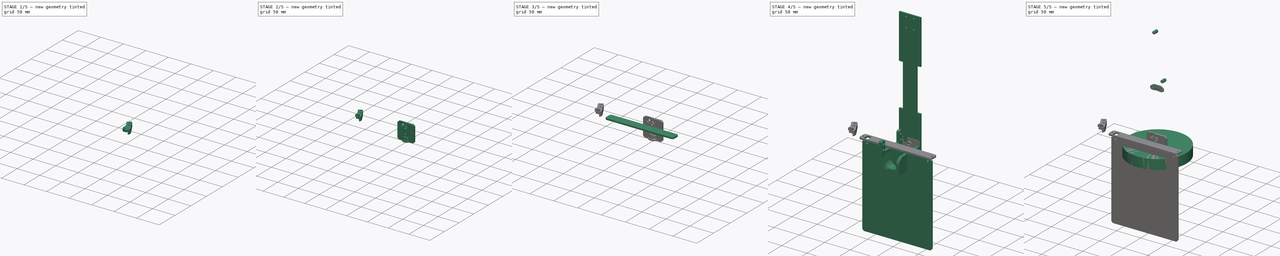
[diagram: build sequence overview — one tinted view per stage of 5, left to right]
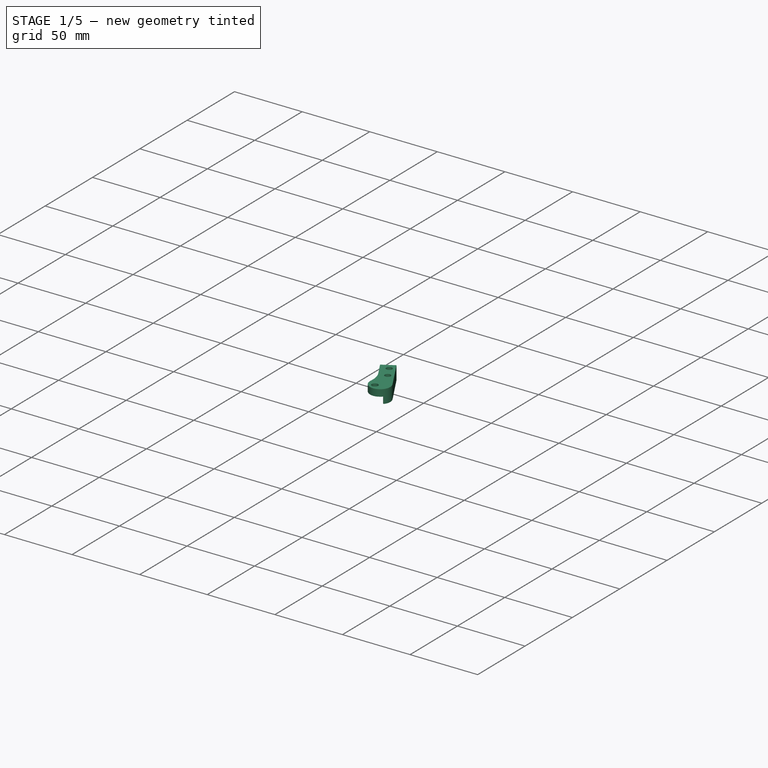
[diagram: stage 1 of 5 — iso view after this stage's code; geometry added in this stage tinted green]
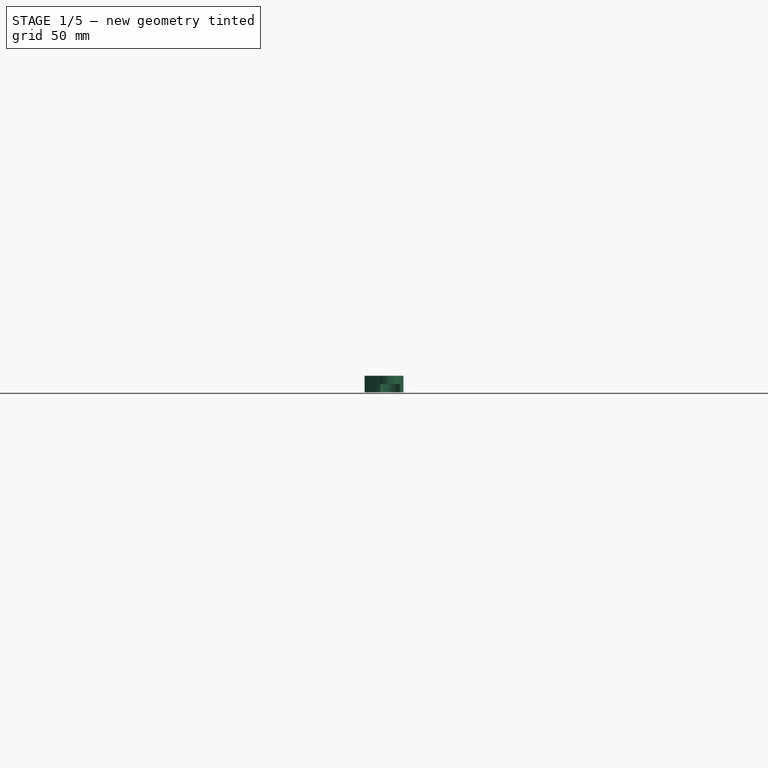
[diagram: stage 1 of 5 — front view after this stage's code; geometry added in this stage tinted green]
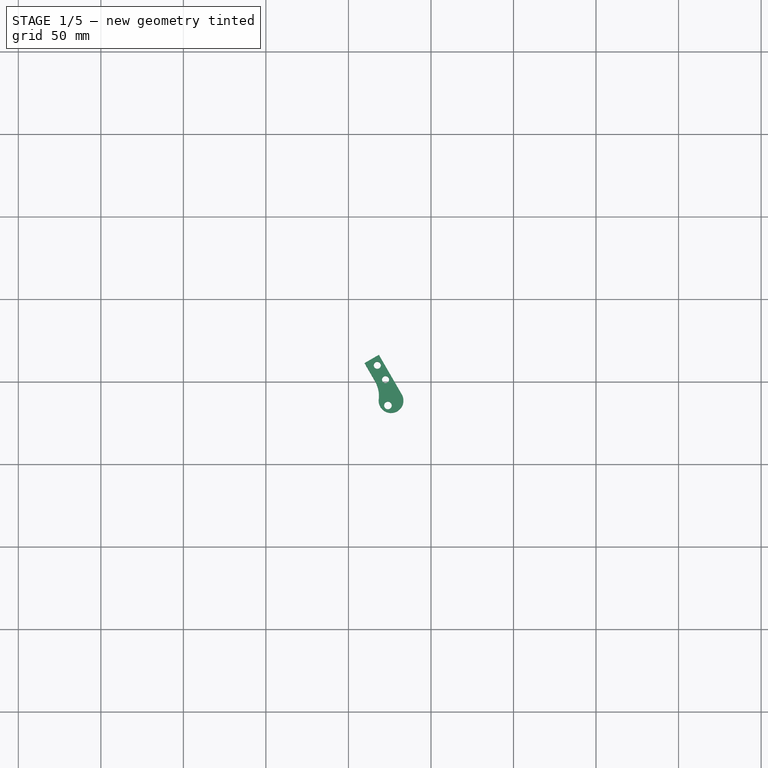
[diagram: stage 1 of 5 — top view after this stage's code; geometry added in this stage tinted green]
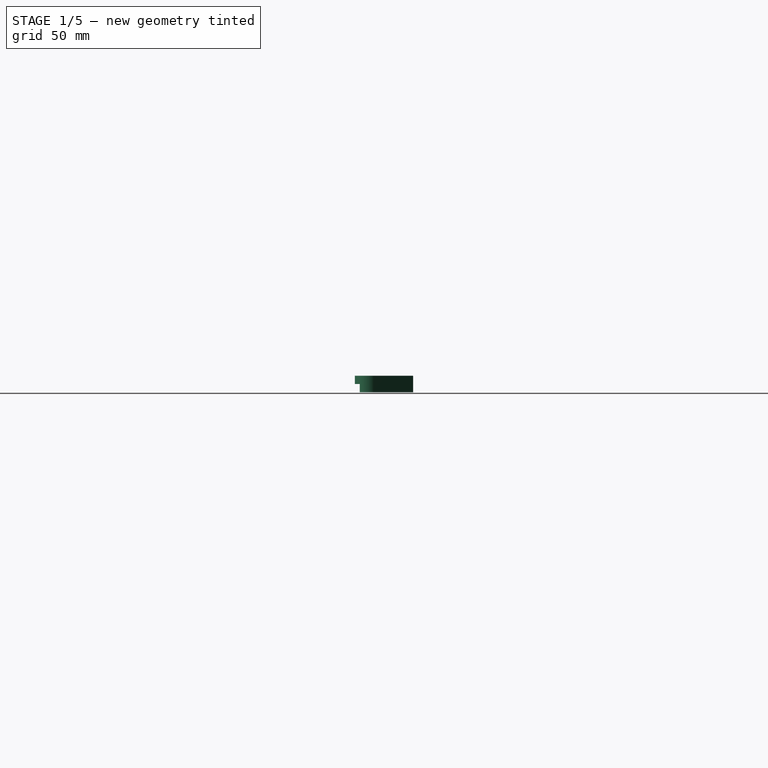
[diagram: stage 1 of 5 — right view after this stage's code; geometry added in this stage tinted green]
FCSTD DOCUMENT  (FreeCAD 2023.131R26244 +5365 (Git))
Label: actuator
License: Creative Commons Attribution-NoDerivatives
LicenseURL: http://creativecommons.org/licenses/by-nd/4.0/
objects: Sketcher::SketchObject×42, PartDesign::Pocket×22, PartDesign::Chamfer×22, PartDesign::Pad×20, PartDesign::Body×17, App::Link×16, PartDesign::Fillet×16, App::Part×11, TechDraw::DrawProjGroupItem×10, TechDraw::DrawProjGroup×10, PartDesign::SubShapeBinder×8, Part::SubShapeBinder×7, TechDraw::DrawSVGTemplate×7, TechDraw::DrawPage×7, App::DocumentObjectGroup×4, Part::FeaturePython×2, PartDesign::Mirrored×1, PartDesign::SubtractivePipe×1, PartDesign::Draft×1, App::VRMLObject×1, +2 more types
note: 369 computed .brp shape members not serialized (recipe doc carries the construction recipe); baked Part::Feature solids carry a one-line shape summary decoded from their .brp
EXTERNAL_REF file=structures.FCStd obj=Link075
EXTERNAL_REF file=generic-hardware.FCStd obj=Link
EXTERNAL_REF file=adptative-gripper-finger.FCStd obj=Link
EXTERNAL_REF file=../table.FCStd obj=Group
EXTERNAL_REF file=generic-hardware.FCStd obj=Part015
EXTERNAL_REF file=generic-hardware.FCStd obj=Part035

FEATURE [App::DocumentObjectGroup] Parts
  ClaimAllChildren = true
  ExportMode = 1
  TreeRank = 14
  _GroupVersion = 1
FEATURE [Part::SubShapeBinder] Import002  label="Import002(Fillet011)"
  BindCopyOnChange = 0
  BindMode = 0
  ClaimChildren = false
  Context = -> Assembly [Body038.Import002.]
  EdgeTolerance = 1e-06
  FillStyle = 0
  Fuse = false
  InvalidShape = false
  MakeFace = false
  MergeEdges = true
  OffsetFill = false
  OffsetIntersection = false
  OffsetJoinType = 0
  OffsetOpenResult = false
  Outline = false
  PartialLoad = false
  Relative = true
  SplitEdges = false
  Support = -> [Link[Fillet011.]]
  TightBound = false
  TreeRank = 96
  ValidateShape = true
  _Version = 8
FEATURE [Sketcher::SketchObject] Sketch074
  ArcFitTolerance = 1e-06
  AttachmentSupport = -> [XY_Plane046]
  ExternalBSplineMaxDegree = 0
  ExternalBSplineTolerance = 0
  ExternalGeometry = -> [Import002]
  FullyConstrained = true
  InternalTolerance = 1e-06
  InvalidShape = false
  MakeInternals = false
  MapMode = 5
  Support = -> [XY_Plane046]
  TreeRank = 95
  ValidateShape = true
  sketch-geometry (20):
    g0: Circle [constr] CenterX=-1.73931e-11 CenterY=-128.13 CenterZ=0 NormalX=0 NormalY=0 NormalZ=1 AngleXU=0 Radius=62.5
    g1: ArcOfCircle CenterX=-1.73931e-11 CenterY=-128.13 CenterZ=0 NormalX=0 NormalY=0 NormalZ=1 AngleXU=0 Radius=62.5 StartAngle=0.254647 EndAngle=2.88695
    g2: Circle CenterX=-51.782 CenterY=-70.3109 CenterZ=0 NormalX=0 NormalY=0 NormalZ=1 AngleXU=0 Radius=1.6
    g3: Circle CenterX=51.782 CenterY=-70.3109 CenterZ=0 NormalX=0 NormalY=0 NormalZ=1 AngleXU=0 Radius=1.6
    g4: LineSegment StartX=-95.3692 StartY=-86.8157 StartZ=0 EndX=-15 EndY=-40.4145 EndZ=0
    g5: LineSegment StartX=-15 StartY=-40.4145 StartZ=0 EndX=15 EndY=-40.4145 EndZ=0
    g6: LineSegment StartX=15 StartY=-40.4145 StartZ=0 EndX=95.3692 EndY=-86.8157 EndZ=0
    g7: LineSegment StartX=-95.3692 StartY=-86.8157 StartZ=0 EndX=-79.1483 EndY=-114.911 EndZ=0
    g8: LineSegment StartX=79.1483 StartY=-114.911 StartZ=0 EndX=95.3692 EndY=-86.8157 EndZ=0
    g9: Circle CenterX=-69.1025 CenterY=-80.3109 CenterZ=0 NormalX=0 NormalY=0 NormalZ=1 AngleXU=0 Radius=3.5
    g10: Circle CenterX=-34.4615 CenterY=-60.3109 CenterZ=0 NormalX=0 NormalY=0 NormalZ=1 AngleXU=0 Radius=3.5
    g11: Circle CenterX=34.4615 CenterY=-60.3109 CenterZ=0 NormalX=0 NormalY=0 NormalZ=1 AngleXU=0 Radius=3.5
    g12: Circle CenterX=69.1025 CenterY=-80.3109 CenterZ=0 NormalX=0 NormalY=0 NormalZ=1 AngleXU=0 Radius=3.5
    g13: ArcOfCircle CenterX=-70.3341 CenterY=-109.822 CenterZ=0 NormalX=0 NormalY=0 NormalZ=1 AngleXU=0 Radius=10.1778 StartAngle=3.66519 EndAngle=6.02854
    g14: ArcOfCircle CenterX=70.3341 CenterY=-109.822 CenterZ=0 NormalX=0 NormalY=0 NormalZ=1 AngleXU=0 Radius=10.1778 StartAngle=3.39624 EndAngle=5.75959
    g15: LineSegment [constr] StartX=-70.3341 StartY=-109.822 StartZ=0 EndX=-70.3341 EndY=-120 EndZ=0
    g16: Circle CenterX=-67.4638 CenterY=-100.149 CenterZ=0 NormalX=0 NormalY=0 NormalZ=1 AngleXU=0 Radius=4
    g17: LineSegment [constr] StartX=-67.4638 StartY=-100.149 StartZ=0 EndX=-71.4638 EndY=-93.2211 EndZ=0
    g18: LineSegment [constr] StartX=-67.4638 StartY=-100.149 StartZ=0 EndX=-82.6192 EndY=-108.899 EndZ=0
    g19: Circle CenterX=67.4638 CenterY=-100.149 CenterZ=0 NormalX=0 NormalY=0 NormalZ=1 AngleXU=0 Radius=4
  constraints (50):
    c: Diameter(g0) = 125
    c: Coincident(g1,g0)
    c: PointOnObject(g1,g0)
    c: Coincident(g2,g-5)
    c: Coincident(g3,g-6)
    c: Equal(g3,g2)
    c: Diameter(g2) = 3.2
    c: Coincident(g5,g4)
    c: Coincident(g6,g5)
    c: Parallel(g4,g-3)
    c: Parallel(g-4,g6)
    c: Equal(g4,g6)
    c: PointOnObject(g7,g-7)
    c: PointOnObject(g-7,g7)
    c: Coincident(g4,g7)
    c: Symmetric(g4,g5,g-2)
    c: Coincident(g8,g6)
    c: PointOnObject(g-8,g8)
    c: PointOnObject(g-15,g4)
    c: DistanceX(g5,g5) = 30
    c: Coincident(g9,g-10)
    c: Coincident(g10,g-9)
    c: Coincident(g11,g-11)
    c: Coincident(g12,g-12)
    c: Equal(g12,g11)
    c: Equal(g12,g10)
    c: Equal(g12,g9)
    c: Diameter(g12) = 7
    c: PointOnObject(g1,g-2)
    c: Horizontal(g1,g1)
    c: Tangent(g14,g8) = -1.5708
    c: Tangent(g14,g1) = 1.5708
    c: Tangent(g13,g7) = -1.5708
    c: Tangent(g13,g1) = 1.5708
    c: DistanceY(g1) = -128.13
    c: Coincident(g15,g13)
    c: PointOnObject(g15,g13)
    c: Vertical(g15)
    c: DistanceY(g15,g-1) = 120
    c: Coincident(g17,g16)
    c: PointOnObject(g17,g-3)
    c: Perpendicular(g-3,g17)
    c: Distance(g17) = 8
    c: Coincident(g18,g16)
    c: PointOnObject(g18,g7)
    c: Perpendicular(g7,g18)
    c: Distance(g18) = 17.5
    c: Diameter(g16) = 8
    c: Equal(g19,g16)
    c: Symmetric(g19,g16,g-2)
FEATURE [PartDesign::Pad] Pad043
  AddSubType = 0
  AlongSketchNormal = false
  AutoTaperInnerAngle = false
  CheckUpToFaceLimits = true
  ClaimChildren = false
  Direction = (0,0,1)
  Fit = 0
  FitJoin = 0
  InnerFit = 0
  InnerFitJoin = 0
  InvalidShape = false
  Length = 3
  Length2 = 100
  Linearize = true
  NewSolid = false
  Profile = -> Sketch074
  Refine = true
  Reversed = true
  Suppress = false
  TaperInnerAngle = 0
  TaperInnerAngleRev = 0
  TreeRank = 97
  Type = 0
  ValidateShape = true
  _ProfileBasedVersion = 1
FEATURE [Sketcher::SketchObject] Sketch089
  ArcFitTolerance = 1e-06
  AttachmentSupport = -> [XY_Plane056]
  ExternalBSplineMaxDegree = 0
  ExternalBSplineTolerance = 0
  FullyConstrained = true
  InternalTolerance = 1e-06
  InvalidShape = false
  MakeInternals = false
  MapMode = 5
  Support = -> [XY_Plane056]
  TreeRank = 294
  ValidateShape = true
  sketch-geometry (21):
    g0: LineSegment StartX=0 StartY=3.703e-13 StartZ=0 EndX=-28.5029 EndY=-1.78e-13 EndZ=0
    g1: LineSegment [constr] StartX=-28.5029 StartY=-1.78e-13 StartZ=0 EndX=-87.62 EndY=-34.1313 EndZ=0
    g2: LineSegment StartX=-87.62 StartY=-34.1313 StartZ=0 EndX=-73.62 EndY=-58.38 EndZ=0
    g3: LineSegment StartX=-2.5e-14 StartY=-58.38 StartZ=0 EndX=0 EndY=3.695e-13 EndZ=0
    g4: LineSegment StartX=-87.62 StartY=-34.1313 StartZ=0 EndX=-81.5578 EndY=-30.6313 EndZ=0
    g5: LineSegment StartX=-81.5578 StartY=-30.6313 StartZ=0 EndX=-70.5578 EndY=-49.6838 EndZ=0
    g6: LineSegment StartX=-70.5578 StartY=-49.6838 StartZ=0 EndX=-35.0508 EndY=-29.1838 EndZ=0
    g7: LineSegment StartX=-35.0508 StartY=-29.1838 StartZ=0 EndX=-46.0508 EndY=-10.1313 EndZ=0
    g8: LineSegment StartX=-46.0508 StartY=-10.1313 StartZ=0 EndX=-28.5029 EndY=-1.776e-13 EndZ=0
    g9: LineSegment [constr] StartX=-28.5029 StartY=-1.78e-13 StartZ=0 EndX=-27.5029 EndY=-1.73205 EndZ=0
    g10: Circle CenterX=-82.5219 CenterY=-36.9614 CenterZ=0 NormalX=0 NormalY=0 NormalZ=1 AngleXU=0 Radius=1.6
    g11: Circle CenterX=-77.5219 CenterY=-45.6217 CenterZ=0 NormalX=0 NormalY=0 NormalZ=1 AngleXU=0 Radius=1.6
    g12: Circle CenterX=-40.0867 CenterY=-12.4614 CenterZ=0 NormalX=0 NormalY=0 NormalZ=1 AngleXU=0 Radius=1.6
    g13: Circle CenterX=-35.0867 CenterY=-21.1217 CenterZ=0 NormalX=0 NormalY=0 NormalZ=1 AngleXU=0 Radius=1.6
    g14: LineSegment [constr] StartX=-82.5219 StartY=-36.9614 StartZ=0 EndX=-40.0867 EndY=-12.4614 EndZ=0
    g15: LineSegment [constr] StartX=-40.0867 StartY=-12.4614 StartZ=0 EndX=-35.0867 EndY=-21.1217 EndZ=0
    g16: LineSegment [constr] StartX=-35.0867 StartY=-21.1217 StartZ=0 EndX=-77.5219 EndY=-45.6217 EndZ=0
    g17: LineSegment [constr] StartX=-77.5219 StartY=-45.6217 StartZ=0 EndX=-82.5219 EndY=-36.9614 EndZ=0
    g18: LineSegment [constr] StartX=-76.5578 StartY=-39.2915 StartZ=0 EndX=-41.0508 EndY=-18.7915 EndZ=0
    g19: LineSegment [constr] StartX=-52.8043 StartY=-39.4338 StartZ=0 EndX=-63.8043 EndY=-20.3813 EndZ=0
    g20: LineSegment StartX=-73.62 StartY=-58.38 StartZ=0 EndX=-2.84e-14 EndY=-58.38 EndZ=0
  constraints (56):
    c: Coincident(g0,g-1)
    c: PointOnObject(g0,g-1)
    c: Coincident(g1,g0)
    c: Coincident(g2,g1)
    c: PointOnObject(g3,g-2)
    c: Coincident(g3,g0)
    c: Coincident(g4,g2)
    c: PointOnObject(g4,g1)
    c: Coincident(g5,g4)
    c: Coincident(g6,g5)
    c: Coincident(g7,g6)
    c: PointOnObject(g7,g1)
    c: Coincident(g8,g7)
    c: Coincident(g8,g0)
    c: Angle(g8,g0) = 2.61799
    c: Perpendicular(g8,g7)
    c: Perpendicular(g4,g5)
    c: Perpendicular(g7,g6)
    c: Perpendicular(g4,g2)
    c: Distance(g4) = 7
    c: Distance(g4,g7) = 41
    c: Distance(g5) = 22
    c: Coincident(g9,g0)
    c: Perpendicular(g8,g9)
    c: Distance(g9) = 2
    c: Equal(g13,g12)
    c: Equal(g13,g10)
    c: Equal(g13,g11)
    c: Diameter(g13) = 3.2
    c: Coincident(g14,g15)
    c: Coincident(g15,g16)
    c: Coincident(g16,g17)
    c: Coincident(g17,g14)
    c: Parallel(g14,g16)
    c: Parallel(g15,g17)
    c: Perpendicular(g15,g14)
    c: Coincident(g15,g13)
    c: Coincident(g12,g14)
    c: Coincident(g16,g11)
    c: Coincident(g10,g14)
    c: Parallel(g15,g7)
    c: PointOnObject(g18,g5)
    c: PointOnObject(g18,g7)
    c: PointOnObject(g19,g6)
    c: Distance(g7,g18) = 10
    c: Symmetric(g4,g7,g19)
    c: Distance(g14) = 49
    c: Distance(g17) = 10
    c: Symmetric(g10,g11,g18)
    c: Symmetric(g10,g12,g19)
    c: Coincident(g20,g2)
    c: Distance(g2,g6) = 6
    c: Coincident(g20,g3)
    c: Horizontal(g20)
    c: DistanceY(g3,g3) = 58.38
    c: DistanceX(g20,g20) = 73.62
FEATURE [Part::SubShapeBinder] Import003  label="Import003(*Fillet011)"
  BindCopyOnChange = 0
  BindMode = 0
  ClaimChildren = false
  Context = -> <external ../table.FCStd>#Group [Link.Group002.Link016.Part003.Body044.Import003.]
  EdgeTolerance = 1e-06
  FillStyle = 0
  Fuse = false
  InvalidShape = false
  MakeFace = false
  MergeEdges = true
  OffsetFill = false
  OffsetIntersection = false
  OffsetJoinType = 0
  OffsetOpenResult = false
  Outline = false
  PartialLoad = false
  Relative = true
  SplitEdges = false
  Support = -> [Body038[Import002.]]
  TightBound = false
  TreeRank = 295
  ValidateShape = true
  _Version = 8
FEATURE [PartDesign::Pad] Pad049
  AddSubType = 0
  AlongSketchNormal = false
  AutoTaperInnerAngle = false
  CheckUpToFaceLimits = true
  ClaimChildren = false
  Direction = (0,0,1)
  Fit = 0
  FitJoin = 0
  InnerFit = 0
  InnerFitJoin = 0
  InvalidShape = false
  Length = 3
  Length2 = 100
  Linearize = true
  NewSolid = false
  Profile = -> Sketch089
  Refine = true
  Suppress = false
  TaperInnerAngle = 0
  TaperInnerAngleRev = 0
  TreeRank = 296
  Type = 0
  ValidateShape = true
  _ProfileBasedVersion = 1
FEATURE [PartDesign::Mirrored] Mirrored
  AddSubType = 0
  BaseFeature = -> Pad049
  CopyShape = false
  InvalidShape = false
  MirrorPlane = -> Sketch089 [V_Axis]
  NewSolid = false
  OriginalSubs = -> [Pad049]
  Originals = -> [Pad049]
  ParallelTransform = true
  Refine = true
  SubTransform = true
  Suppress = false
  TreeRank = 297
  ValidateShape = true
  _Version = 3
FEATURE [PartDesign::SubShapeBinder] Binder  label="Binder(Fillet)"
  BindCopyOnChange = 0
  BindMode = 0
  ClaimChildren = false
  Context = -> <external ../table.FCStd>#Group [Link.Group002.Link016.Part003.Body044.Binder.]
  EdgeTolerance = 1e-06
  FillStyle = 0
  Fuse = false
  InvalidShape = false
  MakeFace = true
  MergeEdges = true
  OffsetFill = false
  OffsetIntersection = false
  OffsetJoinType = 0
  OffsetOpenResult = false
  Outline = false
  PartialLoad = false
  Relative = true
  SplitEdges = false
  Support = -> [Body038[Fillet.Face2]]
  TightBound = false
  TreeRank = 298
  ValidateShape = true
  _Version = 8
FEATURE [Sketcher::SketchObject] Sketch090
  ArcFitTolerance = 1e-06
  AttachmentSupport = -> [XY_Plane056]
  ExternalBSplineMaxDegree = 0
  ExternalBSplineTolerance = 0
  FullyConstrained = true
  InternalTolerance = 1e-06
  InvalidShape = false
  MakeInternals = false
  MapMode = 5
  Support = -> [XY_Plane056]
  TreeRank = 299
  ValidateShape = true
  sketch-geometry (9):
    g0: ArcOfCircle CenterX=-9.662e-13 CenterY=-62.38 CenterZ=0 NormalX=0 NormalY=0 NormalZ=1 AngleXU=0 Radius=12.5 StartAngle=3.14159 EndAngle=6.28319
    g1: ArcOfCircle [constr] CenterX=-1.9826e-12 CenterY=-58.38 CenterZ=0 NormalX=0 NormalY=0 NormalZ=1 AngleXU=0 Radius=12.5 StartAngle=-7.94e-13 EndAngle=3.14159
    g2: LineSegment StartX=12.5 StartY=-62.38 StartZ=0 EndX=12.5 EndY=-58.38 EndZ=0
    g3: LineSegment StartX=-12.5 StartY=-58.38 StartZ=0 EndX=-12.5 EndY=-62.38 EndZ=0
    g4: LineSegment StartX=4 StartY=-46.5373 StartZ=0 EndX=2.5 EndY=-8.38 EndZ=0
    g5: LineSegment StartX=2.5 StartY=-8.38 StartZ=0 EndX=-2.5 EndY=-8.38 EndZ=0
    g6: LineSegment StartX=-2.5 StartY=-8.38 StartZ=0 EndX=-4 EndY=-46.5373 EndZ=0
    g7: ArcOfCircle CenterX=-1.9826e-12 CenterY=-58.38 CenterZ=0 NormalX=0 NormalY=0 NormalZ=1 AngleXU=0 Radius=12.5 StartAngle=1.89653 EndAngle=3.14159
    g8: ArcOfCircle CenterX=-1.9826e-12 CenterY=-58.38 CenterZ=0 NormalX=0 NormalY=0 NormalZ=1 AngleXU=0 Radius=12.5 StartAngle=-7.834e-13 EndAngle=1.24507
  constraints (23):
    c: Tangent(g0,g2) = -1.5708
    c: Tangent(g2,g1) = -1.5708
    c: Tangent(g1,g3) = -1.5708
    c: Tangent(g3,g0) = -1.5708
    c: Equal(g0,g1)
    c: PointOnObject(g1,g-2)
    c: Diameter(g0) = 25
    c: Coincident(g4,g5)
    c: Coincident(g5,g6)
    c: Coincident(g7,g1)
    c: Coincident(g7,g3)
    c: DistanceX(g5,g5) = 5
    c: DistanceX(g6,g4) = 8
    c: DistanceY(g7,g4) = 50
    c: Symmetric(g4,g5,g-2)
    c: DistanceY(g7,g-1) = 58.38
    c: Coincident(g6,g7)
    c: Coincident(g8,g7)
    c: Coincident(g8,g4)
    c: Coincident(g8,g2)
    c: Horizontal(g4,g6)
    c: PointOnObject(g0,g-2)
    c: DistanceY(g0,g7) = 4
FEATURE [Part::SubShapeBinder] Import004  label="Import004(Fillet)"
  BindCopyOnChange = 0
  BindMode = 0
  ClaimChildren = false
  Context = -> <external ../table.FCStd>#Group [Link.Group002.Link016.Part003.Body044.Import004.]
  EdgeTolerance = 1e-06
  FillStyle = 0
  Fuse = false
  InvalidShape = false
  MakeFace = false
  MergeEdges = true
  OffsetFill = false
  OffsetIntersection = false
  OffsetJoinType = 0
  OffsetOpenResult = false
  Outline = false
  PartialLoad = false
  Relative = true
  SplitEdges = false
  Support = -> [Body038[Fillet.]]
  TightBound = false
  TreeRank = 300
  ValidateShape = true
  _Version = 8
FEATURE [PartDesign::Pocket] Pocket006
  AddSubType = 1
  AutoTaperInnerAngle = false
  BaseFeature = -> Mirrored
  CheckUpToFaceLimits = true
  ClaimChildren = false
  Fit = 0
  FitJoin = 0
  InnerFit = 0
  InnerFitJoin = 0
  InvalidShape = false
  Length = 5
  Length2 = 100
  Linearize = true
  NewSolid = false
  Profile = -> Sketch090
  Refine = true
  Reversed = true
  Suppress = false
  TaperInnerAngle = 0
  TaperInnerAngleRev = 0
  TreeRank = 301
  Type = 1
  ValidateShape = true
  _ProfileBasedVersion = 1
  _Version = 1
FEATURE [Sketcher::SketchObject] Sketch096
  ArcFitTolerance = 1e-06
  AttachmentSupport = -> [XY_Plane056]
  ExternalBSplineMaxDegree = 0
  ExternalBSplineTolerance = 0
  FullyConstrained = true
  InternalTolerance = 1e-06
  InvalidShape = false
  MakeInternals = false
  MapMode = 5
  Support = -> [XY_Plane056]
  TreeRank = 321
  ValidateShape = true
  sketch-geometry (8):
    g0: Circle CenterX=-16 CenterY=-15 CenterZ=0 NormalX=0 NormalY=0 NormalZ=1 AngleXU=0 Radius=1.6
    g1: Circle CenterX=-16 CenterY=-50 CenterZ=0 NormalX=0 NormalY=0 NormalZ=1 AngleXU=0 Radius=1.6
    g2: Circle CenterX=16 CenterY=-50 CenterZ=0 NormalX=0 NormalY=0 NormalZ=1 AngleXU=0 Radius=1.6
    g3: Circle CenterX=16 CenterY=-15 CenterZ=0 NormalX=0 NormalY=0 NormalZ=1 AngleXU=0 Radius=1.6
    g4: LineSegment [constr] StartX=-16 StartY=-15 StartZ=0 EndX=16 EndY=-15 EndZ=0
    g5: LineSegment [constr] StartX=16 StartY=-15 StartZ=0 EndX=16 EndY=-50 EndZ=0
    g6: LineSegment [constr] StartX=16 StartY=-50 StartZ=0 EndX=-16 EndY=-50 EndZ=0
    g7: LineSegment [constr] StartX=-16 StartY=-50 StartZ=0 EndX=-16 EndY=-15 EndZ=0
  constraints (19):
    c: Coincident(g4,g5)
    c: Coincident(g5,g6)
    c: Coincident(g6,g7)
    c: Coincident(g7,g4)
    c: Horizontal(g6)
    c: Vertical(g5)
    c: Vertical(g7)
    c: Coincident(g4,g0)
    c: Coincident(g5,g2)
    c: Coincident(g4,g3)
    c: Coincident(g1,g6)
    c: Equal(g2,g1)
    c: Equal(g2,g0)
    c: Equal(g2,g3)
    c: Diameter(g2) = 3.2
    c: Symmetric(g3,g0,g-2)
    c: DistanceX(g4,g4) = 32
    c: DistanceY(g0,g-1) = 15
    c: DistanceY(g1) = -50
FEATURE [PartDesign::Pocket] Pocket007
  AddSubType = 1
  AutoTaperInnerAngle = false
  BaseFeature = -> Pocket006
  CheckUpToFaceLimits = true
  ClaimChildren = false
  Fit = 0
  FitJoin = 0
  InnerFit = 0
  InnerFitJoin = 0
  InvalidShape = false
  Length = 5
  Length2 = 100
  Linearize = true
  NewSolid = false
  Profile = -> Sketch096
  Refine = true
  Reversed = true
  Suppress = false
  TaperInnerAngle = 0
  TaperInnerAngleRev = 0
  TreeRank = 322
  Type = 1
  ValidateShape = true
  _ProfileBasedVersion = 1
  _Version = 1
FEATURE [PartDesign::Fillet] Fillet005
  AddSubType = 0
  Base = -> Pocket007 [Edge2,Edge80]
  BaseFeature = -> Pocket007
  InvalidShape = false
  NewSolid = false
  Radius = 10
  Refine = true
  SupportTransform = false
  Suppress = false
  TreeRank = 332
  ValidateShape = true
FEATURE [PartDesign::Chamfer] Chamfer007
  AddSubType = 0
  Angle = 45
  Base = -> Fillet005 [Edge78,Edge40,Edge3,Edge84,Edge90,Edge89]
  BaseFeature = -> Fillet005
  ChamferType = 0
  FlipDirection = false
  InvalidShape = false
  NewSolid = false
  Refine = true
  Size = 1
  Size2 = 1
  SupportTransform = false
  Suppress = false
  TreeRank = 333
  ValidateShape = true
FEATURE [PartDesign::Fillet] Fillet006
  AddSubType = 0
  Base = -> Chamfer007 [Edge99,Edge97]
  BaseFeature = -> Chamfer007
  InvalidShape = false
  NewSolid = false
  Radius = 25
  Refine = true
  SupportTransform = false
  Suppress = false
  TreeRank = 334
  ValidateShape = true
FEATURE [PartDesign::Fillet] Fillet007
  AddSubType = 0
  Base = -> Fillet006 [Edge85,Edge99,Edge101,Edge89,Edge93,Edge97]
  BaseFeature = -> Fillet006
  InvalidShape = false
  NewSolid = false
  Radius = 1
  Refine = true
  SupportTransform = false
  Suppress = false
  TreeRank = 335
  ValidateShape = true
FEATURE [PartDesign::Fillet] Fillet008
  AddSubType = 0
  Base = -> Fillet007 [Edge78,Edge74,Edge118,Edge114]
  BaseFeature = -> Fillet007
  InvalidShape = false
  NewSolid = false
  Radius = 2
  Refine = true
  SupportTransform = false
  Suppress = false
  TreeRank = 336
  ValidateShape = true
FEATURE [PartDesign::Body] Body053  label="Support_Xbee"
  AutoGroupSolids = false
  ClaimAllChildren = false
  ExportMode = 0
  Group = -> [Sketch120,Pad062,Chamfer017,Sketch121,Pocket021,Sketch122,Pocket022,Chamfer018,Sketch123,Pocket023,Chamfer019]
  InvalidShape = false
  Origin = -> Origin085
  Placement = pos=(0,-3,192) rot=(0,0,1;0rad)
  SingleSolid = true
  Tip = -> Chamfer019
  TreeRank = 636
  ValidateShape = true
  _ExportChildren = -> [Pad062,Chamfer017,Pocket021,Pocket022,Chamfer018,Pocket023,Chamfer019]
  _GroupVersion = 1
FEATURE [PartDesign::SubShapeBinder] Binder006  label="Binder006(Fillet008)"
  BindCopyOnChange = 0
  BindMode = 0
  ClaimChildren = false
  Context = -> <external ../table.FCStd>#Group [Link.Group002.Link018.Part003.Part004.Body054.Binder006.]
  EdgeTolerance = 1e-06
  FillStyle = 0
  Fuse = false
  InvalidShape = false
  MakeFace = true
  MergeEdges = true
  OffsetFill = false
  OffsetIntersection = false
  OffsetJoinType = 0
  OffsetOpenResult = false
  Outline = false
  PartialLoad = false
  Relative = true
  SplitEdges = false
  Support = -> [Body044[Fillet008.Face1]]
  TightBound = false
  TreeRank = 658
  ValidateShape = true
  _Version = 8
FEATURE [Sketcher::SketchObject] Sketch124
  ArcFitTolerance = 1e-06
  AttachmentSupport = -> [XY_Plane073]
  ExternalBSplineMaxDegree = 5
  ExternalBSplineTolerance = 0.0001
  ExternalGeometry = -> [Binder006]
  FullyConstrained = true
  InternalTolerance = 1e-06
  InvalidShape = false
  MakeInternals = true
  MapMode = 5
  Support = -> [XY_Plane073]
  TreeRank = 659
  ValidateShape = true
  sketch-geometry (10):
    g0: ArcOfCircle CenterX=-74.1974 CenterY=-61.38 CenterZ=0 NormalX=0 NormalY=0 NormalZ=1 AngleXU=0 Radius=7.5 StartAngle=2.43423 EndAngle=6.80678
    g1: LineSegment StartX=-79.8979 StartY=-56.5063 StartZ=0 EndX=-90.2181 EndY=-38.6313 EndZ=0
    g2: LineSegment StartX=-90.2181 StartY=-38.6313 StartZ=0 EndX=-81.5578 EndY=-33.6313 EndZ=0
    g3: LineSegment StartX=-81.5578 StartY=-33.6313 StartZ=0 EndX=-67.7022 EndY=-57.63 EndZ=0
    g4: Circle CenterX=-82.5219 CenterY=-39.9614 CenterZ=0 NormalX=0 NormalY=0 NormalZ=1 AngleXU=0 Radius=2.15
    g5: Circle CenterX=-77.5219 CenterY=-48.6217 CenterZ=0 NormalX=0 NormalY=0 NormalZ=1 AngleXU=0 Radius=2.15
    g6: Circle [constr] CenterX=-76.0737 CenterY=-64.3345 CenterZ=0 NormalX=0 NormalY=0 NormalZ=1 AngleXU=0 Radius=6.5
    g7: Circle [constr] CenterX=-76.0737 CenterY=-64.3345 CenterZ=0 NormalX=0 NormalY=0 NormalZ=1 AngleXU=0 Radius=4
    g8: LineSegment [constr] StartX=-76.0737 StartY=-64.3345 StartZ=0 EndX=-67.8465 EndY=-51.38 EndZ=0
    g9: Circle CenterX=-76.0737 CenterY=-64.3345 CenterZ=0 NormalX=0 NormalY=0 NormalZ=1 AngleXU=0 Radius=2.3
  constraints (25):
    c: Coincident(g1,g0)
    c: Coincident(g2,g1)
    c: Coincident(g3,g2)
    c: Parallel(g1,g3)
    c: Parallel(g3,g-7)
    c: Parallel(g2,g-5)
    c: PointOnObject(g2,g-5)
    c: Distance(g1,g-7) = 3
    c: PointOnObject(g-9,g3)
    c: PointOnObject(g0,g-8)
    c: Coincident(g4,g-3)
    c: Coincident(g5,g-4)
    c: Equal(g5,g4)
    c: Diameter(g5) = 4.3
    c: Coincident(g7,g6)
    c: Diameter(g6) = 13
    c: Diameter(g7) = 8
    c: Coincident(g8,g6)
    c: Coincident(g8,g-6)
    c: PointOnObject(g0,g8)
    c: Coincident(g9,g6)
    c: Diameter(g9) = 4.6
    c: Tangent(g0,g3) = 1.5708
    c: Radius(g0) = 7.5
    c: Tangent(g7,g0)
FEATURE [PartDesign::Pad] Pad063
  AddSubType = 0
  AlongSketchNormal = false
  AutoTaperInnerAngle = true
  CheckUpToFaceLimits = true
  ClaimChildren = false
  Direction = (0,0,1)
  Fit = 0
  FitJoin = 0
  InnerFit = 0
  InnerFitJoin = 0
  InvalidShape = false
  Length = 10
  Length2 = 100
  Linearize = true
  NewSolid = false
  Profile = -> Sketch124
  Refine = true
  Reversed = true
  Suppress = false
  TaperInnerAngle = 0
  TaperInnerAngleRev = 0
  TreeRank = 660
  Type = 0
  ValidateShape = true
  _ProfileBasedVersion = 1
FEATURE [Sketcher::SketchObject] Sketch125
  ArcFitTolerance = 1e-06
  AttachmentSupport = -> [Pad063]
  ExternalBSplineMaxDegree = 5
  ExternalBSplineTolerance = 0.0001
  ExternalGeometry = -> [Pad063]
  FullyConstrained = true
  InternalTolerance = 1e-06
  InvalidShape = false
  MakeInternals = true
  MapMode = 5
  Placement = pos=(0,0,-10) rot=(1,0,0;3.14159rad)
  Support = -> [Pad063]
  TreeRank = 661
  ValidateShape = true
  sketch-geometry (1):
    g0: Circle CenterX=-76.0737 CenterY=64.3345 CenterZ=0 NormalX=0 NormalY=0 NormalZ=1 AngleXU=0 Radius=7
  constraints (2):
    c: Coincident(g0,g-3)
    c: Diameter(g0) = 14
FEATURE [PartDesign::Fillet] Fillet015
  AddSubType = 0
  Base = -> Pad063 [Edge1]
  BaseFeature = -> Pad063
  InvalidShape = false
  NewSolid = false
  Radius = 18
  Refine = true
  SupportTransform = false
  Suppress = false
  TreeRank = 663
  ValidateShape = true
FEATURE [PartDesign::Pocket] Pocket024
  AddSubType = 1
  AutoTaperInnerAngle = true
  BaseFeature = -> Fillet015
  CheckUpToFaceLimits = true
  ClaimChildren = false
  Fit = 0
  FitJoin = 0
  InnerFit = 0
  InnerFitJoin = 0
  InvalidShape = false
  Length = 5
  Length2 = 100
  Linearize = true
  NewSolid = false
  Profile = -> Sketch125
  Refine = true
  Suppress = false
  TaperInnerAngle = 0
  TaperInnerAngleRev = 0
  TreeRank = 662
  Type = 0
  ValidateShape = true
  _ProfileBasedVersion = 1
  _Version = 1
FEATURE [PartDesign::Fillet] Fillet016
  AddSubType = 0
  Base = -> Pocket024 [Edge27]
  BaseFeature = -> Pocket024
  InvalidShape = false
  NewSolid = false
  Radius = 1
  Refine = true
  SupportTransform = false
  Suppress = false
  TreeRank = 664
  ValidateShape = true
FEATURE [PartDesign::Chamfer] Chamfer020
  AddSubType = 0
  Angle = 45
  Base = -> Fillet016 [Edge14]
  BaseFeature = -> Fillet016
  ChamferType = 0
  FlipDirection = false
  InvalidShape = false
  NewSolid = false
  Refine = true
  Size = 2
  Size2 = 1
  SupportTransform = false
  Suppress = false
  TreeRank = 665
  ValidateShape = true
FEATURE [PartDesign::Fillet] Fillet017
  AddSubType = 0
  Base = -> Chamfer020 [Edge16,Edge13]
  BaseFeature = -> Chamfer020
  InvalidShape = false
  NewSolid = false
  Radius = 0.5
  Refine = true
  SupportTransform = false
  Suppress = false
  TreeRank = 666
  ValidateShape = true
FEATURE [PartDesign::Pocket] Pocket001
  AddSubType = 1
  AutoTaperInnerAngle = false
  BaseFeature = -> Pocket
  CheckUpToFaceLimits = true
  ClaimChildren = false
  Fit = 0
  FitJoin = 0
  InnerFit = 0
  InnerFitJoin = 0
  Length = 5
  Length2 = 100
  Linearize = true
  Midplane = true
  NewSolid = false
  Profile = -> Sketch003
  Refine = true
  Suppress = false
  TaperInnerAngle = 0
  TaperInnerAngleRev = 0
  TreeRank = 80
  Type = 1
  _ProfileBasedVersion = 1
  _Version = 1
FEATURE [PartDesign::PolarPattern] PolarPattern
  AddSubType = 0
  Angle = 360
  Axis = -> Sketch003 [N_Axis]
  BaseFeature = -> Pocket001
  CopyShape = false
  NewSolid = false
  Occurrences = 4
  OriginalSubs = -> [Pocket001]
  Originals = -> [Pocket001]
  ParallelTransform = true
  Refine = true
  SubTransform = true
  Suppress = false
  TreeRank = 81
  _Version = 3
FEATURE [PartDesign::Fillet] Fillet
  AddSubType = 0
  Base = -> PolarPattern [Edge111]
  BaseFeature = -> PolarPattern
  NewSolid = false
  Radius = 0.5
  Refine = true
  SupportTransform = false
  Suppress = false
  TreeRank = 90
FEATURE [PartDesign::Fillet] Fillet001
  AddSubType = 0
  Base = -> Fillet [Edge62,Edge56]
  BaseFeature = -> Fillet
  NewSolid = false
  Radius = 20
  Refine = true
  SupportTransform = false
  Suppress = false
  TreeRank = 91
FEATURE [PartDesign::Body] Body003  label="AdaptativeGripper"
  AutoGroupSolids = false
  ClaimAllChildren = false
  ExportMode = 0
  Group = -> [Boolean003,Sketch002,Pocket,Sketch003,Pocket001,PolarPattern,Fillet,Fillet001]
  Origin = -> Origin003
  Tip = -> Fillet001
  TreeRank = 71
  _ExportChildren = -> [Boolean003,Pocket,Pocket001,PolarPattern,Fillet,Fillet001]
  _GroupVersion = 1
FEATURE [Sketcher::SketchObject] Sketch
  ArcFitTolerance = 1e-06
  Exports = -> [Export001,Export002,Export005]
  ExternalBSplineMaxDegree = 0
  ExternalBSplineTolerance = 0
  FullyConstrained = true
  InternalTolerance = 1e-06
  MakeInternals = false
  TreeRank = 2
  expr: Constraints[12] = Spreadsheet.LongueurPince
  expr: Constraints[13] = Spreadsheet.LargeurPince
  expr: Constraints[14] = Spreadsheet.LargeurPince / 2 + Spreadsheet.DecalagePince
  expr: Constraints[27] = Spreadsheet.EpaisseurPince
  expr: Constraints[28] = Spreadsheet.LongueurJoint
  sketch-geometry (18):
    g0: ArcOfCircle CenterX=1.2424e-12 CenterY=2.454e-12 CenterZ=0 NormalX=0 NormalY=0 NormalZ=1 AngleXU=0 Radius=10 StartAngle=1.5708 EndAngle=5.20235
    g1: LineSegment StartX=-4.60203e-11 StartY=10 StartZ=0 EndX=10 EndY=10 EndZ=0
    g2: LineSegment StartX=4.70588 StartY=-8.82353 StartZ=0 EndX=10 EndY=-6 EndZ=0
    g3: LineSegment StartX=10 StartY=10 StartZ=0 EndX=60 EndY=2.593e-13 EndZ=0
    g4: LineSegment StartX=10 StartY=-6 StartZ=0 EndX=60 EndY=2.593e-13 EndZ=0
    g5: LineSegment [constr] StartX=10 StartY=10 StartZ=0 EndX=10 EndY=-6 EndZ=0
    g6: Circle [constr] CenterX=1.2424e-12 CenterY=2.454e-12 CenterZ=0 NormalX=0 NormalY=0 NormalZ=1 AngleXU=0 Radius=10
    g7: GeomPoint [constr] X=60 Y=2.591e-13 Z=0
    g8: LineSegment StartX=10.8 StartY=-4.98182 StartZ=0 EndX=10.8 EndY=8.98182 EndZ=0
    g9: LineSegment StartX=10.8 StartY=8.98182 StartZ=0 EndX=54.4364 EndY=0.254545 EndZ=0
    g10: LineSegment StartX=54.4364 StartY=0.254545 StartZ=0 EndX=10.8 EndY=-4.98182 EndZ=0
    g11: LineSegment StartX=10.8 StartY=-2.98182 StartZ=0 EndX=10.8 EndY=6.98182 EndZ=0
    g12: LineSegment StartX=10.8 StartY=6.98182 StartZ=0 EndX=41.9364 EndY=0.754545 EndZ=0
    g13: LineSegment StartX=41.9364 StartY=0.754545 StartZ=0 EndX=10.8 EndY=-2.98182 EndZ=0
    g14: GeomPoint [constr] X=10.8 Y=2 Z=0
    g15: LineSegment [constr] StartX=10.8 StartY=8.98182 StartZ=0 EndX=10 EndY=8.98182 EndZ=0
    g16: LineSegment [constr] StartX=10.8 StartY=2 StartZ=0 EndX=10 EndY=2 EndZ=0
    g17: LineSegment [constr] StartX=10 StartY=-6 StartZ=0 EndX=10.8 EndY=-4.98182 EndZ=0
  constraints (43):
    c: Coincident(g0,g-1)
    c: Tangent(g1,g0) = 1.5708
    c: Tangent(g2,g0) = -1.5708
    c: Coincident(g3,g1)
    c: Coincident(g4,g2)
    c: Diameter(g0) = 20
    c: Coincident(g5,g1)
    c: Coincident(g5,g2)
    c: Vertical(g5)
    c: Coincident(g6,g0)
    c: PointOnObject(g0,g6)
    c: Tangent(g5,g6)
    c: DistanceX(g1,g7) = 50
    c: DistanceY(g2,g1) = 16
    c: DistanceY(g1) = 10
    c: PointOnObject(g7,g-1)
    c: Vertical(g8)
    c: Coincident(g9,g8)
    c: Coincident(g10,g9)
    c: Coincident(g10,g8)
    c: Parallel(g9,g3)
    c: Parallel(g10,g4)
    c: Coincident(g12,g11)
    c: Coincident(g13,g12)
    c: Coincident(g13,g11)
    c: Parallel(g13,g10)
    c: Parallel(g12,g9)
    c: DistanceX(g2,g8) = 0.8
    c: DistanceY(g11,g8) = 2
    c: Symmetric(g11,g11,g14)
    c: Coincident(g15,g8)
    c: PointOnObject(g15,g5)
    c: Horizontal(g15)
    c: PointOnObject(g11,g8)
    c: Coincident(g16,g14)
    c: Horizontal(g16)
    c: Symmetric(g1,g2,g16)
    c: Symmetric(g8,g8,g14)
    c: Coincident(g17,g2)
    c: Coincident(g17,g8)
    c: Angle(g4,g17) = 0.785398
    c: Coincident(g3,g4)
    c: Coincident(g7,g3)
FEATURE [Sketcher::SketchExport] Export001
  Base = -> Sketch
  BaseRefs = -> Sketch [edge11,edge9,edge10]
  Refs = ;g15.edge11 | ;g13.edge9 | ;g14.edge10
  SyncPlacement = true
  TreeRank = 4
FEATURE [Sketcher::SketchExport] Export002
  Base = -> Sketch
  BaseRefs = -> Sketch [edge12,edge13,edge14]
  Refs = ;g19.edge12 | ;g20.edge13 | ;g21.edge14
  SyncPlacement = true
  TreeRank = 5
FEATURE [Sketcher::SketchObject] Sketch001
  ArcFitTolerance = 1e-06
  Exports = -> [Export003,Export004]
  ExternalBSplineMaxDegree = 0
  ExternalBSplineTolerance = 0
  FullyConstrained = true
  InternalTolerance = 1e-06
  MakeInternals = false
  Placement = pos=(0,0,0) rot=(-1,0,0;4.71239rad)
  TreeRank = 6
  expr: Constraints[12] = Spreadsheet.HauteurPince
  expr: Constraints[13] = Spreadsheet.DiametreFixation / 2 + Spreadsheet.LongueurPince / (Spreadsheet.NombreNervure + 1)
  expr: Constraints[14] = Spreadsheet.EpaisseurNervure
  expr: Constraints[25] = Spreadsheet.FinesseJoint
  sketch-geometry (9):
    g0: LineSegment StartX=19.25 StartY=1.5001e-12 StartZ=0 EndX=20.75 EndY=1.5001e-12 EndZ=0
    g1: LineSegment StartX=20.75 StartY=1.5001e-12 StartZ=0 EndX=20.75 EndY=15 EndZ=0
    g2: LineSegment StartX=20.75 StartY=15 StartZ=0 EndX=19.25 EndY=15 EndZ=0
    g3: LineSegment StartX=19.25 StartY=15 StartZ=0 EndX=19.25 EndY=1.4992e-12 EndZ=0
    g4: LineSegment [constr] StartX=20 StartY=15 StartZ=0 EndX=20 EndY=-1.7515e-12 EndZ=0
    g5: LineSegment StartX=19.6 StartY=15 StartZ=0 EndX=20.4 EndY=15 EndZ=0
    g6: LineSegment StartX=20.4 StartY=15 StartZ=0 EndX=20.4 EndY=5.169e-13 EndZ=0
    g7: LineSegment StartX=20.4 StartY=5.168e-13 StartZ=0 EndX=19.6 EndY=5.168e-13 EndZ=0
    g8: LineSegment StartX=19.6 StartY=5.168e-13 StartZ=0 EndX=19.6 EndY=15 EndZ=0
  constraints (26):
    c: Coincident(g0,g1)
    c: Coincident(g1,g2)
    c: Coincident(g2,g3)
    c: Coincident(g3,g0)
    c: Horizontal(g0)
    c: Horizontal(g2)
    c: Vertical(g1)
    c: Vertical(g3)
    c: PointOnObject(g0,g-1)
    c: PointOnObject(g4,g0)
    c: Vertical(g4)
    c: Symmetric(g2,g1,g4)
    c: DistanceY(g3,g3) = 15
    c: DistanceX(g4) = 20
    c: DistanceX(g2,g2) = 1.5
    c: Coincident(g5,g6)
    c: Coincident(g6,g7)
    c: Coincident(g7,g8)
    c: Coincident(g8,g5)
    c: Horizontal(g5)
    c: Horizontal(g7)
    c: Vertical(g6)
    c: Vertical(g8)
    c: PointOnObject(g5,g2)
    c: Symmetric(g7,g6,g4)
    c: DistanceX(g5,g5) = 0.8
FEATURE [Sketcher::SketchExport] Export003
  Base = -> Sketch001
  BaseRefs = -> Sketch001 [edge3,edge4,edge2,edge1]
  Placement = pos=(0,0,0) rot=(-1,0,0;4.71239rad)
  Refs = ;g3.edge3 | ;g4.edge4 | ;g2.edge2 | ;g1.edge1
  SyncPlacement = true
  TreeRank = 7
FEATURE [Sketcher::SketchExport] Export004
  Base = -> Sketch001
  BaseRefs = -> Sketch001 [edge6,edge7,edge8,edge9]
  Placement = pos=(0,0,0) rot=(-1,0,0;4.71239rad)
  Refs = ;g6.edge6 | ;g7.edge7 | ;g8.edge8 | ;g9.edge9
  SyncPlacement = true
  TreeRank = 8
FEATURE [Part::Extrusion] Extrude001  label="CorpsInterieur"
  AutoTaperInnerAngle = false
  Base = -> Export001
  Dir = (0,0,1)
  DirMode = 2
  FaceMakerClass = Part::FaceMakerBullseye
  LengthFwd = 16
  LengthRev = 0
  Linearize = true
  Solid = true
  Symmetric = false
  TaperInnerAngle = 0
  TaperInnerAngleRev = 0
  TreeRank = 10
  expr: LengthFwd = Spreadsheet.HauteurPince + 1
FEATURE [Part::Extrusion] Extrude002  label="CorpsNervure"
  AutoTaperInnerAngle = false
  Base = -> Export002
  Dir = (0,0,1)
  DirMode = 2
  FaceMakerClass = Part::FaceMakerBullseye
  LengthFwd = 15
  LengthRev = 0
  Linearize = true
  Solid = true
  Symmetric = false
  TaperInnerAngle = 0
  TaperInnerAngleRev = 0
  TreeRank = 11
  expr: LengthFwd = Spreadsheet.HauteurPince
FEATURE [App::DocumentObjectGroup] Group  label="Tools"
  ClaimAllChildren = true
  ExportMode = 1
  Group = -> [Spreadsheet,Sketch,Sketch001,Extrude001,Extrude002,Extrude,Body,Body001,Body002,Export003,Export004]
  TreeRank = 70
  _GroupVersion = 1
FEATURE [Sketcher::SketchExport] Export005
  Base = -> Sketch
  BaseRefs = -> Sketch [edge1,edge3,edge5,edge4,edge2]
  Refs = ;g1.edge1 | ;g3.edge3 | ;g5.edge5 | ;g4.edge4 | ;g2.edge2
  SyncPlacement = true
  TreeRank = 83
FEATURE [Part::Extrusion] Extrude  label="CorpsComplet"
  AutoTaperInnerAngle = false
  Base = -> Export005
  Dir = (0,0,1)
  DirMode = 2
  FaceMakerClass = Part::FaceMakerBullseye
  LengthFwd = 15
  LengthRev = 0
  Linearize = true
  Solid = true
  Symmetric = false
  TaperInnerAngle = 0
  TaperInnerAngleRev = 0
  TreeRank = 84
  expr: LengthFwd = Spreadsheet.HauteurPince
---- part generic-hardware.FCStd = doc fcstd_4d7483fc6a56 (179892 chars; too large to inline — full recipe in that document) ----
---- part structures.FCStd = doc fcstd_4202ce3a1060 (169128 chars; too large to inline — full recipe in that document) ----
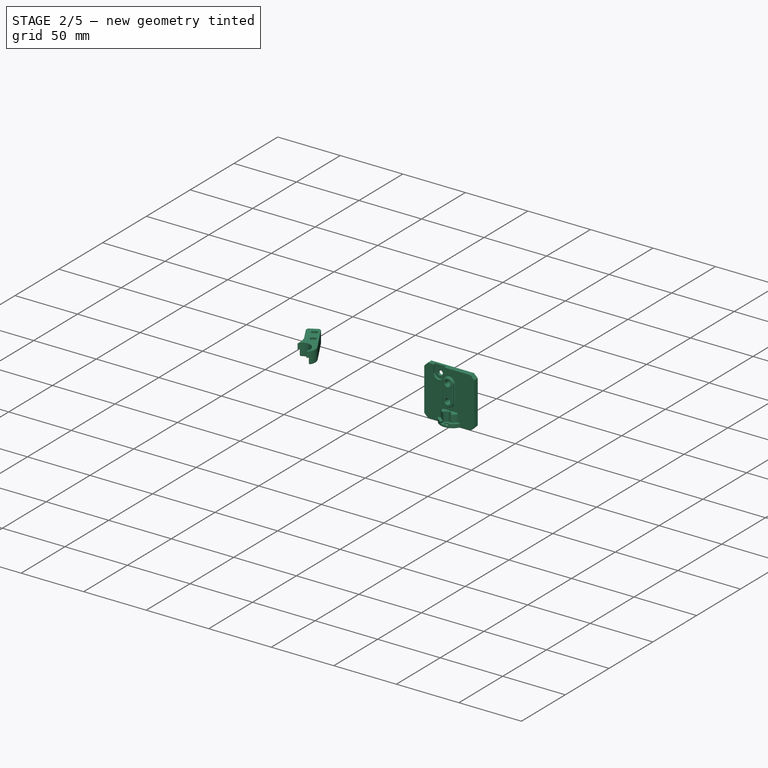
[diagram: stage 2 of 5 — iso view after this stage's code; geometry added in this stage tinted green]
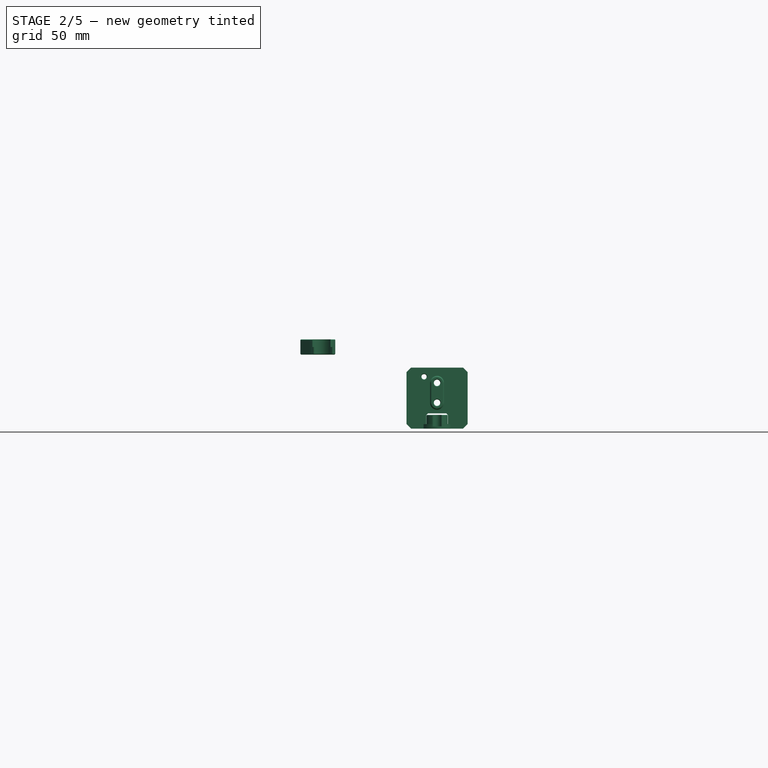
[diagram: stage 2 of 5 — front view after this stage's code; geometry added in this stage tinted green]
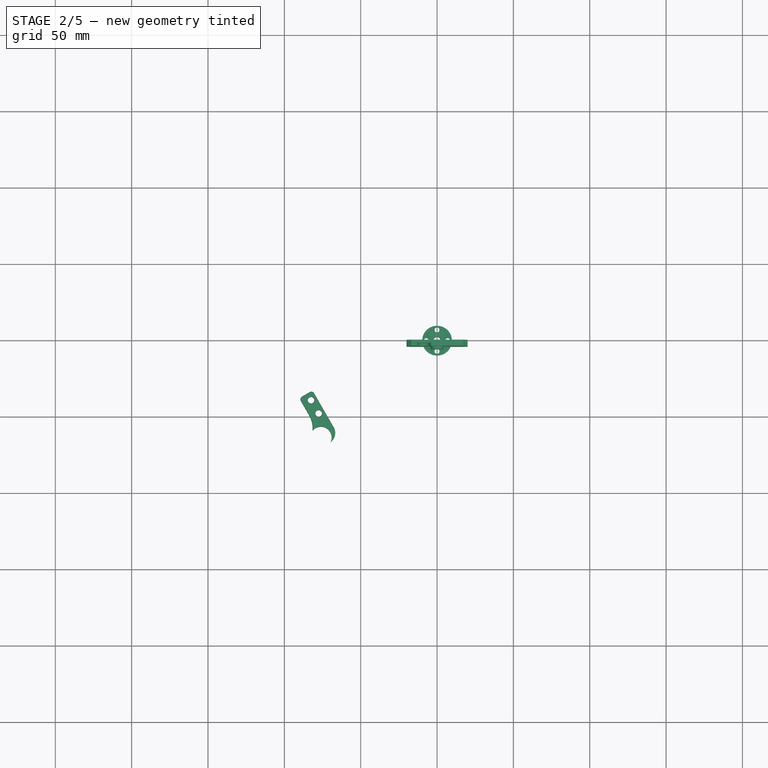
[diagram: stage 2 of 5 — top view after this stage's code; geometry added in this stage tinted green]
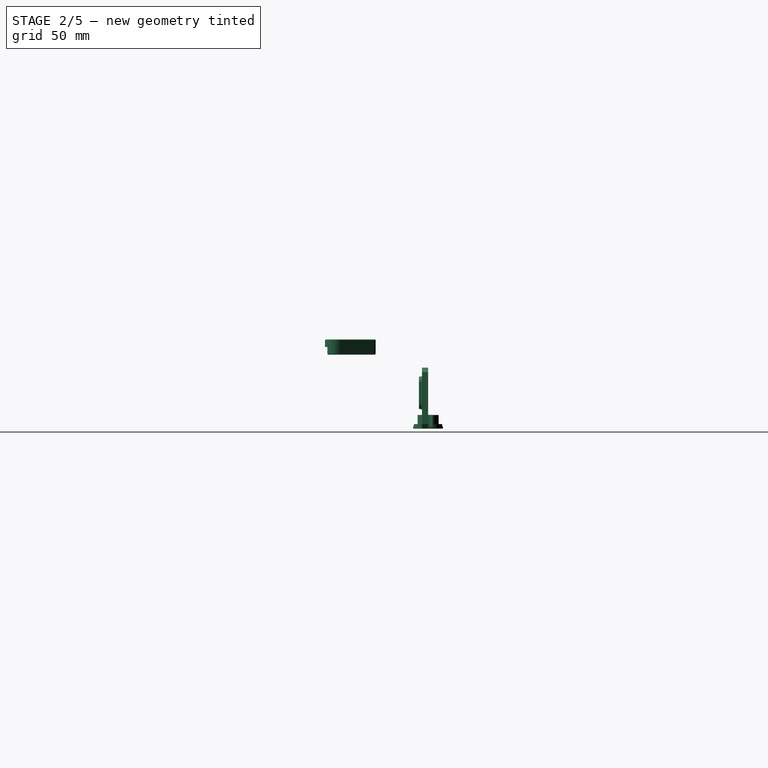
[diagram: stage 2 of 5 — right view after this stage's code; geometry added in this stage tinted green]
FEATURE [PartDesign::Body] Body044  label="PlaqueSupport"
  AutoGroupSolids = false
  ClaimAllChildren = false
  ExportMode = 0
  Group = -> [Sketch089,Import003,Binder,Pad049,Mirrored,Sketch090,Import004,Pocket006,Sketch096,Pocket007,Fillet005,Chamfer007,Fillet006,Fillet007,Fillet008]
  InvalidShape = false
  Origin = -> Origin071
  Placement = pos=(0,-3,58.5) rot=(0,0,1;0rad)
  SingleSolid = true
  Tip = -> Fillet008
  TreeRank = 293
  ValidateShape = true
  _ExportChildren = -> [Import003,Binder,Pad049,Mirrored,Import004,Pocket006,Pocket007,Fillet005,Chamfer007,Fillet006,Fillet007,Fillet008]
  _GroupVersion = 1
FEATURE [TechDraw::DrawProjGroupItem] ProjItem002  label="Front002"
  CoarseView = false
  Direction = (0,0,-1)
  Focus = 100
  HardHidden = false
  IsoCount = 0
  IsoHidden = false
  IsoVisible = false
  LockPosition = true
  Perspective = false
  Rotation = 0
  RotationVector = (-1,0,0)
  ScaleType = 2
  SeamHidden = false
  SeamVisible = true
  SmoothHidden = false
  SmoothVisible = true
  Source = -> [Pad047]
  TreeRank = 338
  Type = 0
  X = 0
  XDirection = (-1,0,0)
  Y = 0
FEATURE [TechDraw::DrawProjGroup] ProjGroup002
  Anchor = -> ProjItem002
  AutoDistribute = true
  LockPosition = false
  ProjectionType = 0
  Rotation = 0
  ScaleType = 0
  Source = -> [Pad047]
  TreeRank = 339
  Views = -> [ProjItem002]
  X = 27.06
  Y = 178.44
  spacingX = 15
  spacingY = 15
FEATURE [TechDraw::DrawProjGroupItem] ProjItem003  label="Front003"
  CoarseView = false
  Direction = (0,0,1)
  Focus = 100
  HardHidden = false
  IsoCount = 0
  IsoHidden = false
  IsoVisible = false
  LockPosition = true
  Perspective = false
  Rotation = 0
  RotationVector = (-1,0,0)
  ScaleType = 2
  SeamHidden = false
  SeamVisible = true
  SmoothHidden = false
  SmoothVisible = true
  Source = -> [Fillet008]
  TreeRank = 341
  Type = 0
  X = 0
  XDirection = (-1,0,0)
  Y = 0
FEATURE [TechDraw::DrawProjGroup] ProjGroup003
  Anchor = -> ProjItem003
  AutoDistribute = true
  LockPosition = false
  ProjectionType = 0
  Rotation = 0
  ScaleType = 0
  Source = -> [Fillet008]
  TreeRank = 342
  Views = -> [ProjItem003]
  X = 89.46
  Y = 177.96
  spacingX = 15
  spacingY = 15
FEATURE [TechDraw::DrawProjGroupItem] ProjItem004  label="Front004"
  CoarseView = false
  Direction = (0,-1,0)
  Focus = 100
  HardHidden = false
  IsoCount = 0
  IsoHidden = false
  IsoVisible = false
  LockPosition = true
  Perspective = false
  Rotation = 0
  RotationVector = (0,0,1)
  ScaleType = 2
  SeamHidden = false
  SeamVisible = true
  SmoothHidden = false
  SmoothVisible = true
  Source = -> [Pocket010]
  TreeRank = 344
  Type = 0
  X = 0
  XDirection = (0,0,1)
  Y = 0
FEATURE [TechDraw::DrawProjGroup] ProjGroup004
  Anchor = -> ProjItem004
  AutoDistribute = true
  LockPosition = false
  ProjectionType = 0
  Rotation = 0
  ScaleType = 0
  Source = -> [Pocket010]
  TreeRank = 345
  Views = -> [ProjItem004]
  X = 131.94
  Y = 125.16
  spacingX = 15
  spacingY = 15
FEATURE [TechDraw::DrawPage] Page001  label="CompleteActuatorGripper"
  KeepUpdated = true
  NextBalloonIndex = 1
  ProjectionType = 0
  Template = -> Template001
  TreeRank = 252
  Views = -> [ProjGroup001,ProjGroup002,ProjGroup003,ProjGroup004]
FEATURE [App::Link] Link007  label="ServoMG996R-Right"
  AutoLinkLabel = true
  AutoPlacement = true
  LinkedObject = -> Link004
  ShowElement = false
  SyncGroupVisibility = false
  TreeRank = 376
  _LinkVersion = 1
FEATURE [App::Link] Link008  label="Link008(GripperBottom)"
  AutoLinkLabel = true
  AutoPlacement = true
  LinkPlacement = pos=(-3.05176e-05,-1.26172e-05,36.6) rot=(1,0,0;3.14159rad)
  LinkedObject = -> Link005
  Placement = pos=(-3.05176e-05,-1.26172e-05,36.6) rot=(1,0,0;3.14159rad)
  ShowElement = false
  SyncGroupVisibility = false
  TreeRank = 380
  _LinkVersion = 1
FEATURE [App::Link] Link009  label="Link009(GripperTop)"
  AutoLinkLabel = true
  AutoPlacement = true
  LinkPlacement = pos=(0,-3.09948e-06,15) rot=(1,0,0;3.14159rad)
  LinkedObject = -> Link006
  Placement = pos=(0,-3.09948e-06,15) rot=(1,0,0;3.14159rad)
  ShowElement = false
  SyncGroupVisibility = false
  TreeRank = 381
  _LinkVersion = 1
FEATURE [App::Link] Link010  label="Link010(SpacerGripper)"
  AutoLinkLabel = true
  AutoPlacement = true
  LinkPlacement = pos=(7.62939e-06,-7.62939e-06,21.6) rot=(0,0,-1;0rad)
  LinkedObject = -> Body041
  Placement = pos=(7.62939e-06,-7.62939e-06,21.6) rot=(0,0,-1;0rad)
  ShowElement = false
  SyncGroupVisibility = false
  TreeRank = 382
  _LinkVersion = 1
FEATURE [App::Link] Link011  label="Link011(SpacerLaserGripper)"
  AutoLinkLabel = true
  AutoPlacement = true
  LinkedObject = -> Body042
  ShowElement = false
  SyncGroupVisibility = false
  TreeRank = 383
  _LinkVersion = 1
FEATURE [Sketcher::SketchObject] Sketch100
  ArcFitTolerance = 1e-06
  AttachmentSupport = -> [XY_Plane062]
  ExternalBSplineMaxDegree = 5
  ExternalBSplineTolerance = 0.0001
  FullyConstrained = true
  InternalTolerance = 1e-06
  InvalidShape = false
  MakeInternals = false
  MapMode = 5
  Support = -> [XY_Plane062]
  TreeRank = 418
  ValidateShape = true
  sketch-geometry (7):
    g0: Circle CenterX=1.1204e-12 CenterY=8.71e-13 CenterZ=0 NormalX=0 NormalY=0 NormalZ=1 AngleXU=0 Radius=9.75
    g1: Circle CenterX=-7 CenterY=0 CenterZ=0 NormalX=0 NormalY=0 NormalZ=1 AngleXU=0 Radius=1.6
    g2: Circle CenterX=0 CenterY=7 CenterZ=0 NormalX=0 NormalY=0 NormalZ=1 AngleXU=0 Radius=1.6
    g3: Circle CenterX=7 CenterY=0 CenterZ=0 NormalX=0 NormalY=0 NormalZ=1 AngleXU=0 Radius=1.6
    g4: Circle CenterX=0 CenterY=-7 CenterZ=0 NormalX=0 NormalY=0 NormalZ=1 AngleXU=0 Radius=1.6
    g5: Circle [constr] CenterX=1.1204e-12 CenterY=8.71e-13 CenterZ=0 NormalX=0 NormalY=0 NormalZ=1 AngleXU=0 Radius=7
    g6: Circle CenterX=1.1204e-12 CenterY=8.71e-13 CenterZ=0 NormalX=0 NormalY=0 NormalZ=1 AngleXU=0 Radius=2.3
  constraints (18):
    c: Coincident(g0,g-1)
    c: Diameter(g0) = 19.5
    c: PointOnObject(g1,g-1)
    c: PointOnObject(g2,g-2)
    c: PointOnObject(g3,g-1)
    c: PointOnObject(g4,g-2)
    c: Equal(g4,g3)
    c: Equal(g3,g1)
    c: Equal(g1,g2)
    c: Coincident(g5,g0)
    c: PointOnObject(g2,g5)
    c: PointOnObject(g1,g5)
    c: PointOnObject(g3,g5)
    c: PointOnObject(g4,g5)
    c: Diameter(g5) = 14
    c: Diameter(g3) = 3.2
    c: Coincident(g6,g0)
    c: Diameter(g6) = 4.6
FEATURE [PartDesign::Pad] Pad051
  AddSubType = 0
  AlongSketchNormal = false
  AutoTaperInnerAngle = true
  CheckUpToFaceLimits = true
  ClaimChildren = false
  Direction = (0,0,1)
  Fit = 0
  FitJoin = 0
  InnerFit = 0
  InnerFitJoin = 0
  InvalidShape = false
  Length = 3
  Length2 = 100
  Linearize = true
  NewSolid = false
  Profile = -> Sketch100
  Refine = true
  Suppress = false
  TaperInnerAngle = 0
  TaperInnerAngleRev = 0
  TreeRank = 419
  Type = 0
  ValidateShape = true
  _ProfileBasedVersion = 1
FEATURE [Sketcher::SketchObject] Sketch101
  ArcFitTolerance = 1e-06
  AttachmentSupport = -> [Pad051]
  ExternalBSplineMaxDegree = 5
  ExternalBSplineTolerance = 0.0001
  ExternalGeometry = -> [Pad051]
  FullyConstrained = true
  InternalTolerance = 1e-06
  InvalidShape = false
  MakeInternals = false
  MapMode = 5
  Placement = pos=(0,0,3) rot=(0,0,1;0rad)
  Support = -> [Pad051]
  TreeRank = 420
  ValidateShape = true
  sketch-geometry (16):
    g0: ArcOfCircle CenterX=7.3732e-12 CenterY=7 CenterZ=0 NormalX=0 NormalY=0 NormalZ=1 AngleXU=0 Radius=3 StartAngle=3.14159 EndAngle=6.28319
    g1: ArcOfCircle CenterX=2.4455e-12 CenterY=9.75 CenterZ=0 NormalX=0 NormalY=0 NormalZ=1 AngleXU=0 Radius=3 StartAngle=8.249e-13 EndAngle=3.14159
    g2: LineSegment StartX=3 StartY=7 StartZ=0 EndX=3 EndY=9.75 EndZ=0
    g3: LineSegment StartX=-3 StartY=9.75 StartZ=0 EndX=-3 EndY=7 EndZ=0
    g4: ArcOfCircle CenterX=8.544e-13 CenterY=-7 CenterZ=0 NormalX=0 NormalY=0 NormalZ=1 AngleXU=0 Radius=3 StartAngle=-6.3176e-12 EndAngle=3.14159
    g5: ArcOfCircle CenterX=-2.005e-13 CenterY=-9.75 CenterZ=0 NormalX=0 NormalY=0 NormalZ=1 AngleXU=0 Radius=3 StartAngle=3.14159 EndAngle=6.28319
    g6: LineSegment StartX=-3 StartY=-7 StartZ=0 EndX=-3 EndY=-9.75 EndZ=0
    g7: LineSegment StartX=3 StartY=-9.75 StartZ=0 EndX=3 EndY=-7 EndZ=0
    g8: ArcOfCircle CenterX=7 CenterY=-6.369e-13 CenterZ=0 NormalX=0 NormalY=0 NormalZ=1 AngleXU=0 Radius=3 StartAngle=1.5708 EndAngle=4.71239
    g9: ArcOfCircle CenterX=9.75 CenterY=2.825e-13 CenterZ=0 NormalX=0 NormalY=0 NormalZ=1 AngleXU=0 Radius=3 StartAngle=4.71239 EndAngle=7.85398
    g10: LineSegment StartX=7 StartY=-3 StartZ=0 EndX=9.75 EndY=-3 EndZ=0
    g11: LineSegment StartX=9.75 StartY=3 StartZ=0 EndX=7 EndY=3 EndZ=0
    g12: ArcOfCircle CenterX=-7 CenterY=-7.095e-13 CenterZ=0 NormalX=0 NormalY=0 NormalZ=1 AngleXU=0 Radius=3 StartAngle=4.71239 EndAngle=7.85398
    g13: ArcOfCircle CenterX=-9.75 CenterY=7.4068e-12 CenterZ=0 NormalX=0 NormalY=0 NormalZ=1 AngleXU=0 Radius=3 StartAngle=1.5708 EndAngle=4.71239
    g14: LineSegment StartX=-7 StartY=3 StartZ=0 EndX=-9.75 EndY=3 EndZ=0
    g15: LineSegment StartX=-9.75 StartY=-3 StartZ=0 EndX=-7 EndY=-3 EndZ=0
  constraints (36):
    c: Tangent(g0,g2) = -1.5708
    c: Tangent(g2,g1) = -1.5708
    c: Tangent(g1,g3) = -1.5708
    c: Tangent(g3,g0) = -1.5708
    c: Equal(g0,g1)
    c: Coincident(g0,g-3)
    c: PointOnObject(g1,g-2)
    c: Tangent(g4,g6) = -1.5708
    c: Tangent(g6,g5) = -1.5708
    c: Tangent(g5,g7) = -1.5708
    c: Tangent(g7,g4) = -1.5708
    c: Equal(g4,g5)
    c: Coincident(g4,g-5)
    c: PointOnObject(g5,g-2)
    c: Tangent(g8,g10) = -1.5708
    c: Tangent(g10,g9) = -1.5708
    c: Tangent(g9,g11) = -1.5708
    c: Tangent(g11,g8) = -1.5708
    c: Equal(g8,g9)
    c: Coincident(g8,g-6)
    c: PointOnObject(g9,g-1)
    c: Tangent(g12,g14) = -1.5708
    c: Tangent(g14,g13) = -1.5708
    c: Tangent(g13,g15) = -1.5708
    c: Tangent(g15,g12) = -1.5708
    c: Equal(g12,g13)
    c: Coincident(g12,g-4)
    c: PointOnObject(g13,g-1)
    c: Equal(g0,g8)
    c: Equal(g8,g12)
    c: Equal(g12,g4)
    c: Diameter(g0) = 6
    c: PointOnObject(g9,g-8)
    c: Equal(g11,g2)
    c: Equal(g2,g14)
    c: Equal(g14,g6)
FEATURE [Sketcher::SketchObject] Sketch102
  ArcFitTolerance = 1e-06
  AttachmentSupport = -> [Pad051]
  ExternalBSplineMaxDegree = 5
  ExternalBSplineTolerance = 0.0001
  ExternalGeometry = -> [Pad051]
  FullyConstrained = true
  InternalTolerance = 1e-06
  InvalidShape = false
  MakeInternals = false
  MapMode = 5
  Placement = pos=(0,0,3) rot=(0,0,1;0rad)
  Support = -> [Pad051]
  TreeRank = 421
  ValidateShape = true
  sketch-geometry (1):
    g0: Circle CenterX=0 CenterY=0 CenterZ=0 NormalX=0 NormalY=0 NormalZ=1 AngleXU=0 Radius=7.5
  constraints (2):
    c: Coincident(g0,g-1)
    c: Diameter(g0) = 15
FEATURE [PartDesign::Pad] Pad052
  AddSubType = 0
  AlongSketchNormal = false
  AutoTaperInnerAngle = true
  BaseFeature = -> Pad051
  CheckUpToFaceLimits = true
  ClaimChildren = false
  Direction = (0,0,1)
  Fit = 0
  FitJoin = 0
  InnerFit = 0
  InnerFitJoin = 0
  InvalidShape = false
  Length = 6
  Length2 = 100
  Linearize = true
  NewSolid = false
  Profile = -> Sketch102
  Refine = true
  Suppress = false
  TaperInnerAngle = 0
  TaperInnerAngleRev = 0
  TreeRank = 422
  Type = 0
  ValidateShape = true
  _ProfileBasedVersion = 1
FEATURE [PartDesign::Pocket] Pocket011
  AddSubType = 1
  AutoTaperInnerAngle = true
  BaseFeature = -> Pad052
  CheckUpToFaceLimits = true
  ClaimChildren = false
  Fit = 0
  FitJoin = 0
  InnerFit = 0
  InnerFitJoin = 0
  InvalidShape = false
  Length = 1.5
  Length2 = 100
  Linearize = true
  NewSolid = false
  Profile = -> Sketch101
  Refine = true
  Suppress = false
  TaperInnerAngle = 0
  TaperInnerAngleRev = 0
  TreeRank = 423
  Type = 4
  ValidateShape = true
  _ProfileBasedVersion = 1
  _Version = 1
FEATURE [PartDesign::Chamfer] Chamfer008
  AddSubType = 0
  Angle = 45
  Base = -> Pocket011 [Edge70]
  BaseFeature = -> Pocket011
  ChamferType = 0
  FlipDirection = false
  InvalidShape = false
  NewSolid = false
  Refine = true
  Size = 0.4
  Size2 = 1
  SupportTransform = false
  Suppress = false
  TreeRank = 424
  ValidateShape = true
FEATURE [PartDesign::Chamfer] Chamfer009
  AddSubType = 0
  Angle = 45
  Base = -> Chamfer008 [Face3,Edge38,Edge40,Edge44,Edge42,Edge16,Edge14,Edge12,Edge18]
  BaseFeature = -> Chamfer008
  ChamferType = 0
  FlipDirection = false
  InvalidShape = false
  NewSolid = false
  Refine = true
  Size = 0.2
  Size2 = 1
  SupportTransform = false
  Suppress = false
  TreeRank = 425
  ValidateShape = true
FEATURE [PartDesign::Body] Body052  label="PlaqueDeguisement"
  AutoGroupSolids = false
  ClaimAllChildren = false
  ExportMode = 0
  Group = -> [Binder005,Sketch119,Import007,Pad061,Chamfer015,Chamfer016]
  InvalidShape = false
  Origin = -> Origin084
  SingleSolid = true
  Tip = -> Chamfer016
  TreeRank = 606
  ValidateShape = true
  _ExportChildren = -> [Binder005,Import007,Pad061,Chamfer015,Chamfer016]
  _GroupVersion = 1
FEATURE [TechDraw::DrawSVGTemplate] Template005
  Height = 210
  Orientation = 1
  TreeRank = 614
  Width = 297
FEATURE [TechDraw::DrawProjGroupItem] ProjItem008  label="Front008"
  CoarseView = false
  Direction = (0,-1,0)
  Focus = 100
  HardHidden = false
  IsoCount = 0
  IsoHidden = false
  IsoVisible = false
  LockPosition = true
  Perspective = false
  Rotation = 180
  RotationVector = (-1,0,0)
  ScaleType = 2
  SeamHidden = false
  SeamVisible = true
  SmoothHidden = false
  SmoothVisible = true
  Source = -> [Chamfer016]
  TreeRank = 617
  Type = 0
  X = 0
  XDirection = (-1,0,0)
  Y = 0
FEATURE [TechDraw::DrawProjGroup] ProjGroup008
  Anchor = -> ProjItem008
  AutoDistribute = true
  LockPosition = false
  ProjectionType = 0
  Rotation = 0
  ScaleType = 0
  Source = -> [Chamfer016]
  TreeRank = 618
  Views = -> [ProjItem008]
  X = 81.54
  Y = 121.8
  spacingX = 15
  spacingY = 15
FEATURE [TechDraw::DrawPage] Page005  label="PlaqueDeguisementLaser3mm"
  KeepUpdated = true
  NextBalloonIndex = 1
  ProjectionType = 0
  Template = -> Template005
  TreeRank = 615
  Views = -> [ProjGroup008]
FEATURE [Image::ImagePlane] ImagePlane
  Placement = pos=(0,-37.901,-61) rot=(1,0,0;1.5708rad)
  TreeRank = 619
  XSize = 123.842
  YSize = 147.658
FEATURE [App::Part] Part008  label="EnsembleDeguisement"
  ClaimAllChildren = false
  ExportMode = 1
  Group = -> [Body049,Body050,Body051,Body052,ImagePlane]
  Origin = -> Origin080
  Placement = pos=(0,-3,255) rot=(0,0,1;0rad)
  TreeRank = 520
  _ExportChildren = -> [Body049,Body050,Body051,Body052,ImagePlane]
  _GroupVersion = 1
FEATURE [TechDraw::DrawSVGTemplate] Template006
  Height = 210
  Orientation = 1
  TreeRank = 621
  Width = 297
FEATURE [TechDraw::DrawProjGroupItem] ProjItem009  label="Front009"
  CoarseView = false
  Direction = (0,0,1)
  Focus = 100
  HardHidden = false
  IsoCount = 0
  IsoHidden = false
  IsoVisible = false
  LockPosition = true
  Perspective = false
  Rotation = 0
  RotationVector = (-1,0,0)
  ScaleType = 2
  SeamHidden = false
  SeamVisible = true
  SmoothHidden = false
  SmoothVisible = true
  Source = -> [Pocket020]
  TreeRank = 624
  Type = 0
  X = 0
  XDirection = (-1,0,0)
  Y = 0
FEATURE [TechDraw::DrawProjGroup] ProjGroup009
  Anchor = -> ProjItem009
  AutoDistribute = true
  LockPosition = false
  ProjectionType = 0
  Rotation = 0
  ScaleType = 0
  Source = -> [Pocket020]
  TreeRank = 625
  Views = -> [ProjItem009]
  X = 72.8425
  Y = 199.932
  spacingX = 15
  spacingY = 15
FEATURE [TechDraw::DrawPage] Page006  label="PlaqueCouvercleLedLaser3mm"
  KeepUpdated = true
  NextBalloonIndex = 1
  ProjectionType = 0
  Template = -> Template006
  TreeRank = 622
  Views = -> [ProjGroup009]
FEATURE [App::DocumentObjectGroup] Group001  label="Laser"
  ClaimAllChildren = true
  ExportMode = 1
  Group = -> [Page,Page001,Page002,Page003,Page004,Page005,Page006]
  TreeRank = 132
  _GroupVersion = 1
FEATURE [App::Link] Link013  label="Link013(SpacerBearing)"
  AutoLinkLabel = true
  AutoPlacement = true
  LinkPlacement = pos=(2.41475e-05,-0.072464,36.6) rot=(0,0,1;0rad)
  LinkedObject = -> Body046
  Placement = pos=(2.41475e-05,-0.072464,36.6) rot=(0,0,1;0rad)
  SyncGroupVisibility = false
  TreeRank = 626
  _LinkVersion = 1
FEATURE [App::Part] Part006  label="GripperRight"
  ClaimAllChildren = false
  ExportMode = 1
  Group = -> [Link008,Link009,Link010,Link011,Link013]
  Origin = -> Origin075
  Placement = pos=(8.2e-15,1.43e-14,2.4) rot=(0,0,1;1.0472rad)
  TreeRank = 379
  _ExportChildren = -> [Link008,Link009,Link010,Link011,Link013]
  _GroupVersion = 1
FEATURE [App::Part] Part005  label="EnsembleGripperRight"
  ClaimAllChildren = false
  ExportMode = 1
  Group = -> [Link007,Part006]
  Origin = -> Origin074
  Placement = pos=(67.4638,-37.0393,45.5) rot=(0.965926,-0.258819,0;3.14159rad)
  TreeRank = 363
  _ExportChildren = -> [Link007,Part006]
  _GroupVersion = 1
FEATURE [Sketcher::SketchObject] Sketch120
  ArcFitTolerance = 1e-06
  AttachmentSupport = -> [XZ_Plane072]
  ExternalBSplineMaxDegree = 5
  ExternalBSplineTolerance = 0.0001
  FullyConstrained = true
  InternalTolerance = 1e-06
  InvalidShape = false
  MakeInternals = true
  MapMode = 5
  Placement = pos=(0,0,0) rot=(1,0,0;1.5708rad)
  Support = -> [XZ_Plane072]
  TreeRank = 637
  ValidateShape = true
  sketch-geometry (7):
    g0: LineSegment StartX=-20 StartY=-1.533e-13 StartZ=0 EndX=20 EndY=-1.533e-13 EndZ=0
    g1: LineSegment StartX=20 StartY=-1.533e-13 StartZ=0 EndX=20 EndY=40 EndZ=0
    g2: LineSegment StartX=20 StartY=40 StartZ=0 EndX=-20 EndY=40 EndZ=0
    g3: LineSegment StartX=-20 StartY=40 StartZ=0 EndX=-20 EndY=-1.563e-13 EndZ=0
    g4: Circle CenterX=-8.5 CenterY=34 CenterZ=0 NormalX=0 NormalY=0 NormalZ=1 AngleXU=0 Radius=1.7
    g5: Circle CenterX=0 CenterY=30 CenterZ=0 NormalX=0 NormalY=0 NormalZ=1 AngleXU=0 Radius=2.1
    g6: Circle CenterX=0 CenterY=17 CenterZ=0 NormalX=0 NormalY=0 NormalZ=1 AngleXU=0 Radius=2.1
  constraints (20):
    c: Coincident(g0,g1)
    c: Coincident(g1,g2)
    c: Coincident(g2,g3)
    c: Coincident(g3,g0)
    c: Horizontal(g0)
    c: Horizontal(g2)
    c: Vertical(g1)
    c: Vertical(g3)
    c: Symmetric(g0,g0,g-1)
    c: DistanceX(g0,g0) = 40
    c: DistanceX(g4) = -8.5
    c: Diameter(g4) = 3.4
    c: DistanceY(g4,g2) = 6
    c: PointOnObject(g5,g-2)
    c: PointOnObject(g6,g-2)
    c: Equal(g5,g6)
    c: Diameter(g5) = 4.2
    c: DistanceY(g6,g5) = 13
    c: DistanceY(g5,g2) = 10
    c: DistanceY(g0,g5) = 30
FEATURE [PartDesign::Pad] Pad062
  AddSubType = 0
  AlongSketchNormal = false
  AutoTaperInnerAngle = true
  CheckUpToFaceLimits = true
  ClaimChildren = false
  Direction = (0,-1,2e-16)
  Fit = 0
  FitJoin = 0
  InnerFit = 0
  InnerFitJoin = 0
  InvalidShape = false
  Length = 6
  Length2 = 100
  Linearize = true
  NewSolid = false
  Profile = -> Sketch120
  Refine = true
  Suppress = false
  TaperInnerAngle = 0
  TaperInnerAngleRev = 0
  TreeRank = 638
  Type = 0
  ValidateShape = true
  _ProfileBasedVersion = 1
FEATURE [PartDesign::Chamfer] Chamfer017
  AddSubType = 0
  Angle = 45
  Base = -> Pad062 [Edge8,Edge5,Edge2,Edge1]
  BaseFeature = -> Pad062
  ChamferType = 0
  FlipDirection = false
  InvalidShape = false
  NewSolid = false
  Refine = true
  Size = 3
  Size2 = 1
  SupportTransform = false
  Suppress = false
  TreeRank = 639
  ValidateShape = true
FEATURE [Sketcher::SketchObject] Sketch121
  ArcFitTolerance = 1e-06
  AttachmentSupport = -> [Chamfer017]
  ExternalBSplineMaxDegree = 5
  ExternalBSplineTolerance = 0.0001
  ExternalGeometry = -> [Chamfer017]
  FullyConstrained = true
  InternalTolerance = 1e-06
  InvalidShape = false
  MakeInternals = true
  MapMode = 5
  Placement = pos=(0,-6,1.3e-15) rot=(1,0,0;1.5708rad)
  Support = -> [Chamfer017]
  TreeRank = 640
  ValidateShape = true
  sketch-geometry (4):
    g0: ArcOfCircle CenterX=-8.5 CenterY=34 CenterZ=0 NormalX=0 NormalY=0 NormalZ=1 AngleXU=0 Radius=4.2 StartAngle=3.14159 EndAngle=6.28319
    g1: ArcOfCircle CenterX=-8.5 CenterY=40 CenterZ=0 NormalX=0 NormalY=0 NormalZ=1 AngleXU=0 Radius=4.2 StartAngle=-1.2461e-12 EndAngle=3.14159
    g2: LineSegment StartX=-4.3 StartY=34 StartZ=0 EndX=-4.3 EndY=40 EndZ=0
    g3: LineSegment StartX=-12.7 StartY=40 StartZ=0 EndX=-12.7 EndY=34 EndZ=0
  constraints (9):
    c: Tangent(g0,g2) = -1.5708
    c: Tangent(g2,g1) = -1.5708
    c: Tangent(g1,g3) = -1.5708
    c: Tangent(g3,g0) = -1.5708
    c: Equal(g0,g1)
    c: Coincident(g0,g-3)
    c: Vertical(g2)
    c: Radius(g0) = 4.2
    c: PointOnObject(g1,g-4)
FEATURE [PartDesign::Pocket] Pocket021
  AddSubType = 1
  AutoTaperInnerAngle = true
  BaseFeature = -> Chamfer017
  CheckUpToFaceLimits = true
  ClaimChildren = false
  Fit = 0
  FitJoin = 0
  InnerFit = 0
  InnerFitJoin = 0
  InvalidShape = false
  Length = 4
  Length2 = 100
  Linearize = true
  NewSolid = false
  Profile = -> Sketch121
  Refine = true
  Suppress = false
  TaperInnerAngle = 0
  TaperInnerAngleRev = 0
  TreeRank = 641
  Type = 0
  ValidateShape = true
  _ProfileBasedVersion = 1
  _Version = 1
FEATURE [Sketcher::SketchObject] Sketch122
  ArcFitTolerance = 1e-06
  AttachmentSupport = -> [Pocket021]
  ExternalBSplineMaxDegree = 5
  ExternalBSplineTolerance = 0.0001
  ExternalGeometry = -> [Pocket021]
  FullyConstrained = false
  InternalTolerance = 1e-06
  InvalidShape = false
  MakeInternals = true
  MapMode = 5
  Placement = pos=(0,-6,1.3e-15) rot=(1,0,0;1.5708rad)
  Support = -> [Pocket021]
  TreeRank = 642
  ValidateShape = true
  sketch-geometry (8):
    g0: ArcOfCircle CenterX=0 CenterY=30 CenterZ=0 NormalX=0 NormalY=0 NormalZ=1 AngleXU=0 Radius=4.2 StartAngle=0 EndAngle=3.14159
    g1: ArcOfCircle CenterX=0 CenterY=17 CenterZ=0 NormalX=0 NormalY=0 NormalZ=1 AngleXU=0 Radius=4.2 StartAngle=3.14159 EndAngle=6.28319
    g2: LineSegment StartX=-4.2 StartY=30 StartZ=0 EndX=-4.2 EndY=17 EndZ=0
    g3: LineSegment StartX=4.2 StartY=17 StartZ=0 EndX=4.2 EndY=30 EndZ=0
    g4: LineSegment StartX=-22.6903 StartY=43.5027 StartZ=0 EndX=22.2157 EndY=43.5027 EndZ=0
    g5: LineSegment StartX=22.2157 StartY=43.5027 StartZ=0 EndX=22.2157 EndY=-2.35126 EndZ=0
    g6: LineSegment StartX=22.2157 StartY=-2.35126 StartZ=0 EndX=-22.6903 EndY=-2.35126 EndZ=0
    g7: LineSegment StartX=-22.6903 StartY=-2.35126 StartZ=0 EndX=-22.6903 EndY=43.5027 EndZ=0
  constraints (16):
    c: Tangent(g0,g2) = -1.5708
    c: Tangent(g2,g1) = -1.5708
    c: Tangent(g1,g3) = -1.5708
    c: Tangent(g3,g0) = -1.5708
    c: Equal(g0,g1)
    c: Coincident(g0,g-3)
    c: Coincident(g1,g-4)
    c: Radius(g0) = 4.2
    c: Coincident(g4,g5)
    c: Coincident(g5,g6)
    c: Coincident(g6,g7)
    c: Coincident(g7,g4)
    c: Horizontal(g4)
    c: Horizontal(g6)
    c: Vertical(g5)
    c: Vertical(g7)
FEATURE [PartDesign::Pocket] Pocket022
  AddSubType = 1
  AutoTaperInnerAngle = true
  BaseFeature = -> Pocket021
  CheckUpToFaceLimits = true
  ClaimChildren = false
  Fit = 0
  FitJoin = 0
  InnerFit = 0
  InnerFitJoin = 0
  InvalidShape = false
  Length = 2
  Length2 = 100
  Linearize = true
  NewSolid = false
  Profile = -> Sketch122 [InternalFace1]
  Refine = true
  Suppress = false
  TaperInnerAngle = 0
  TaperInnerAngleRev = 0
  TreeRank = 643
  Type = 0
  ValidateShape = true
  _ProfileBasedVersion = 1
  _Version = 1
FEATURE [PartDesign::Chamfer] Chamfer018
  AddSubType = 0
  Angle = 45
  Base = -> Pocket022 [Edge44,Edge40,Edge42,Edge13,Edge12,Edge14,Edge56,Edge29,Edge38,Edge36]
  BaseFeature = -> Pocket022
  ChamferType = 0
  FlipDirection = false
  InvalidShape = false
  NewSolid = false
  Refine = true
  Size = 0.4
  Size2 = 1
  SupportTransform = false
  Suppress = false
  TreeRank = 644
  ValidateShape = true
FEATURE [Sketcher::SketchObject] Sketch123
  ArcFitTolerance = 1e-06
  AttachmentSupport = -> [XZ_Plane072]
  ExternalBSplineMaxDegree = 5
  ExternalBSplineTolerance = 0.0001
  FullyConstrained = true
  InternalTolerance = 1e-06
  InvalidShape = false
  MakeInternals = true
  MapMode = 5
  Placement = pos=(0,0,0) rot=(1,0,0;1.5708rad)
  Support = -> [XZ_Plane072]
  TreeRank = 645
  ValidateShape = true
  sketch-geometry (4):
    g0: LineSegment StartX=-7 StartY=3.6433e-12 StartZ=0 EndX=7 EndY=3.6433e-12 EndZ=0
    g1: LineSegment StartX=7 StartY=3.6433e-12 StartZ=0 EndX=7 EndY=10 EndZ=0
    g2: LineSegment StartX=7 StartY=10 StartZ=0 EndX=-7 EndY=10 EndZ=0
    g3: LineSegment StartX=-7 StartY=10 StartZ=0 EndX=-7 EndY=3.6433e-12 EndZ=0
  constraints (11):
    c: Coincident(g0,g1)
    c: Coincident(g1,g2)
    c: Coincident(g2,g3)
    c: Coincident(g3,g0)
    c: Horizontal(g0)
    c: Vertical(g1)
    c: Vertical(g3)
    c: PointOnObject(g0,g-1)
    c: Symmetric(g1,g2,g-2)
    c: DistanceY(g1,g1) = 10
    c: DistanceX(g0,g0) = 14
FEATURE [PartDesign::Pocket] Pocket023
  AddSubType = 1
  AutoTaperInnerAngle = true
  BaseFeature = -> Chamfer018
  CheckUpToFaceLimits = true
  ClaimChildren = false
  Fit = 0
  FitJoin = 0
  InnerFit = 0
  InnerFitJoin = 0
  InvalidShape = false
  Length = 5
  Length2 = 100
  Linearize = true
  NewSolid = false
  Profile = -> Sketch123
  Refine = true
  Reversed = true
  Suppress = false
  TaperInnerAngle = 0
  TaperInnerAngleRev = 0
  TreeRank = 646
  Type = 1
  ValidateShape = true
  _ProfileBasedVersion = 1
  _Version = 1
FEATURE [PartDesign::Chamfer] Chamfer019
  AddSubType = 0
  Angle = 45
  Base = -> Pocket023 [Edge22,Edge20,Edge24,Edge16]
  BaseFeature = -> Pocket023
  ChamferType = 0
  FlipDirection = false
  InvalidShape = false
  NewSolid = false
  Refine = true
  Size = 1
  Size2 = 1
  SupportTransform = false
  Suppress = false
  TreeRank = 647
  ValidateShape = true
FEATURE [PartDesign::Fillet] Fillet018
  AddSubType = 0
  Base = -> Fillet017 [Edge37,Edge38]
  BaseFeature = -> Fillet017
  InvalidShape = false
  NewSolid = false
  Radius = 2
  Refine = true
  SupportTransform = false
  Suppress = false
  TreeRank = 667
  ValidateShape = true
FEATURE [PartDesign::Chamfer] Chamfer021
  AddSubType = 0
  Angle = 45
  Base = -> Fillet018 [Face1,Face16]
  BaseFeature = -> Fillet018
  ChamferType = 0
  FlipDirection = false
  InvalidShape = false
  NewSolid = false
  Refine = true
  Size = 0.4
  Size2 = 1
  SupportTransform = false
  Suppress = false
  TreeRank = 668
  ValidateShape = true
FEATURE [PartDesign::Chamfer] Chamfer022
  AddSubType = 0
  Angle = 45
  Base = -> Chamfer021 [Edge84]
  BaseFeature = -> Chamfer021
  ChamferType = 0
  FlipDirection = false
  InvalidShape = false
  NewSolid = false
  Refine = true
  Size = 0.4
  Size2 = 1
  SupportTransform = false
  Suppress = false
  TreeRank = 669
  ValidateShape = true
FEATURE [PartDesign::Body] Body054  label="BumperLeft"
  AutoGroupSolids = false
  ClaimAllChildren = false
  ExportMode = 0
  Group = -> [Binder006,Sketch124,Pad063,Sketch125,Fillet015,Pocket024,Fillet016,Chamfer020,Fillet017,Fillet018,Chamfer021,Chamfer022]
  InvalidShape = false
  Origin = -> Origin086
  Placement = pos=(0,0,58.5) rot=(0,0,1;0rad)
  SingleSolid = true
  Tip = -> Chamfer022
  TreeRank = 691
  ValidateShape = true
  _ExportChildren = -> [Binder006,Pad063,Fillet015,Pocket024,Fillet016,Chamfer020,Fillet017,Fillet018,Chamfer021,Chamfer022]
  _GroupVersion = 1
FEATURE [PartDesign::FeatureBase] Clone
  BaseFeature = -> Body054
  InvalidShape = false
  NewSolid = false
  Placement = pos=(0,0,58.5) rot=(0,0,1;0rad)
  Suppress = false
  TreeRank = 679
  ValidateShape = true
FEATURE [PartDesign::SubShapeBinder] Binder007  label="Binder007(Chamfer022)"
  BindCopyOnChange = 0
  BindMode = 0
  ClaimChildren = false
  Context = -> Assembly [Part003.Part004.Body055.Binder007.]
  EdgeTolerance = 1e-06
  FillStyle = 0
  Fuse = false
  InvalidShape = false
  MakeFace = true
  MergeEdges = true
  OffsetFill = false
  OffsetIntersection = false
  OffsetJoinType = 0
  OffsetOpenResult = false
  Outline = false
  PartialLoad = false
  Relative = true
  SplitEdges = false
  Support = -> [Body054[Chamfer022.Face1]]
  TightBound = false
  TreeRank = 681
  ValidateShape = true
  _Version = 8
FEATURE [Sketcher::SketchObject] Sketch126
  ArcFitTolerance = 1e-06
  AttachmentSupport = -> [Binder007]
  ExternalBSplineMaxDegree = 5
  ExternalBSplineTolerance = 0.0001
  ExternalGeometry = -> [Binder007]
  FullyConstrained = true
  InternalTolerance = 1e-06
  InvalidShape = false
  MakeInternals = true
  MapMode = 5
  Placement = pos=(0,0,53.5) rot=(1,0,0;3.14159rad)
  Support = -> [Binder007]
  TreeRank = 682
  ValidateShape = true
  sketch-geometry (3):
    g0: LineSegment [constr] StartX=-68.9071 StartY=65.7419 StartZ=0 EndX=-68.7494 EndY=65.8422 EndZ=0
    g1: ArcOfCircle CenterX=-76.0737 CenterY=64.3345 CenterZ=0 NormalX=0 NormalY=0 NormalZ=1 AngleXU=0 Radius=7 StartAngle=3.80963 EndAngle=6.74679
    g2: ArcOfCircle CenterX=-74.1974 CenterY=61.38 CenterZ=0 NormalX=0 NormalY=0 NormalZ=1 AngleXU=0 Radius=7.5 StartAngle=0.946366 EndAngle=3.32686
  constraints (8):
    c: Coincident(g0,g-9)
    c: Coincident(g0,g-10)
    c: Coincident(g1,g-8)
    c: Coincident(g2,g-12)
    c: Coincident(g2,g1)
    c: Coincident(g2,g1)
    c: Equal(g2,g-3)
    c: Equal(g1,g-7)
FEATURE [PartDesign::Pocket] Pocket025
  AddSubType = 1
  AutoTaperInnerAngle = true
  BaseFeature = -> Clone
  CheckUpToFaceLimits = true
  ClaimChildren = false
  Fit = 0
  FitJoin = 0
  InnerFit = 0
  InnerFitJoin = 0
  InvalidShape = false
  Length = 5
  Length2 = 100
  Linearize = true
  NewSolid = false
  Profile = -> Sketch126
  Refine = true
  Suppress = false
  TaperInnerAngle = 0
  TaperInnerAngleRev = 0
  TreeRank = 683
  Type = 1
  ValidateShape = true
  _ProfileBasedVersion = 1
  _Version = 1
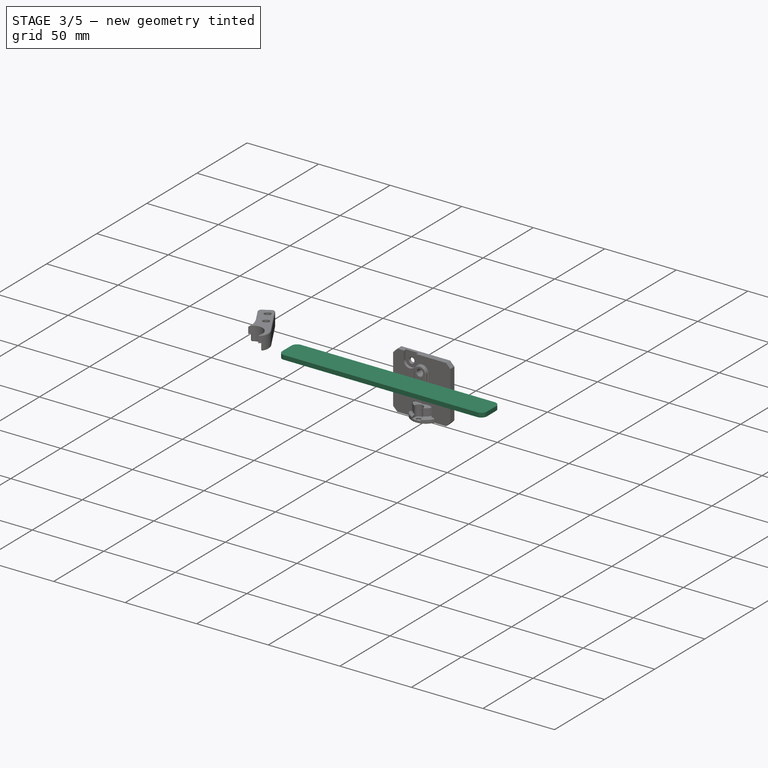
[diagram: stage 3 of 5 — iso view after this stage's code; geometry added in this stage tinted green]
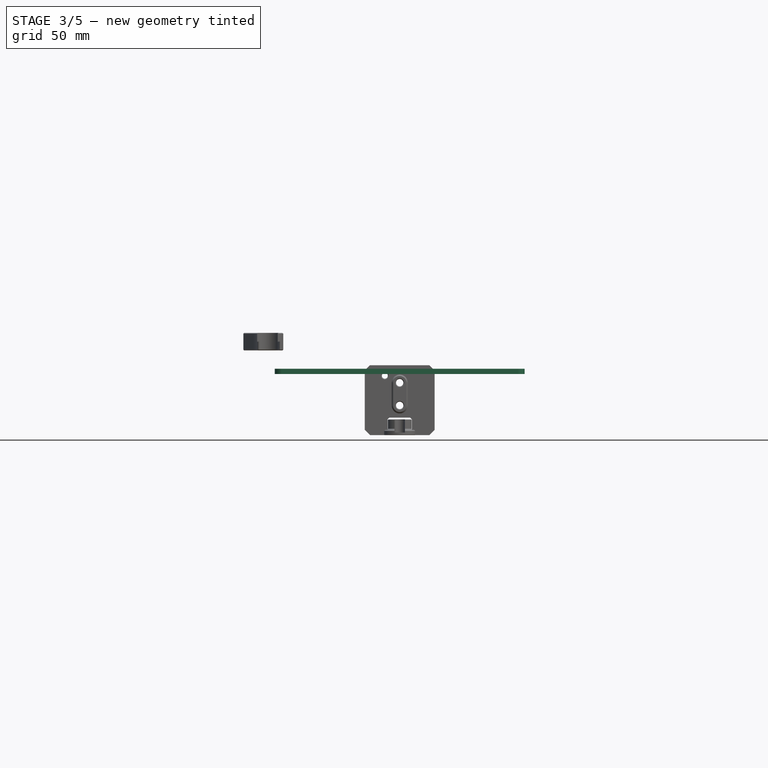
[diagram: stage 3 of 5 — front view after this stage's code; geometry added in this stage tinted green]
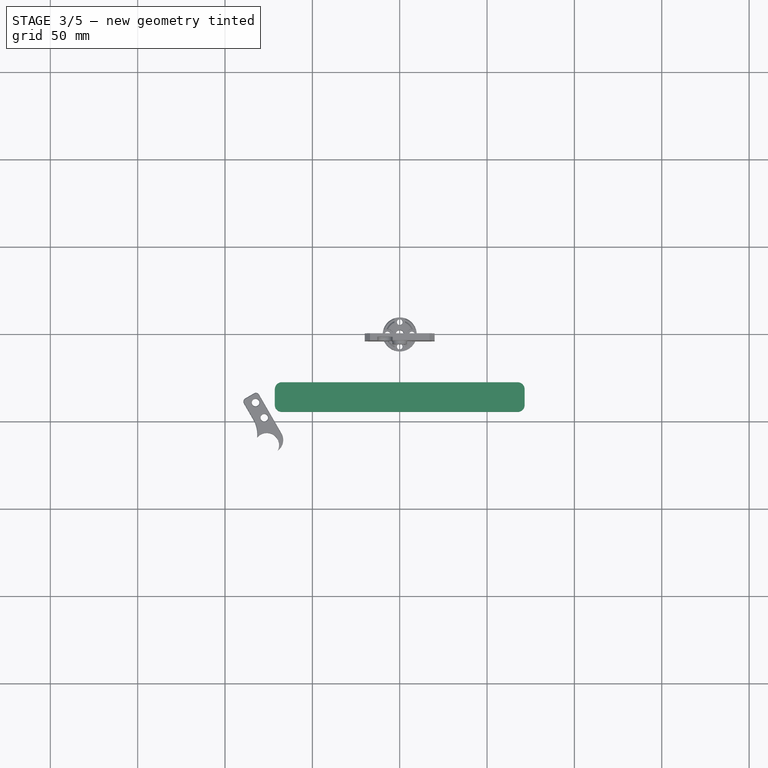
[diagram: stage 3 of 5 — top view after this stage's code; geometry added in this stage tinted green]
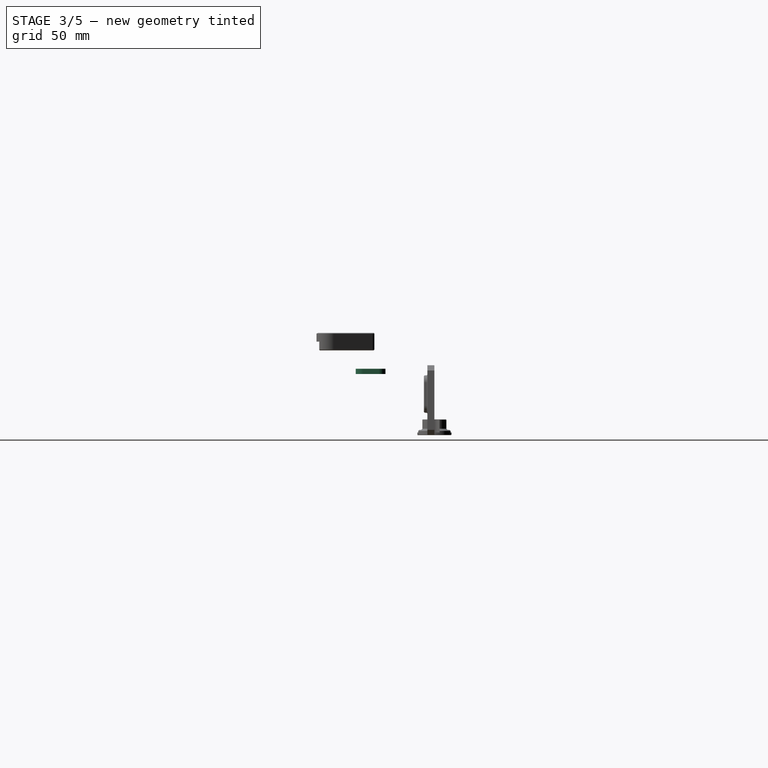
[diagram: stage 3 of 5 — right view after this stage's code; geometry added in this stage tinted green]
FEATURE [PartDesign::Chamfer] Chamfer010
  AddSubType = 0
  Angle = 45
  Base = -> Chamfer009 [Edge75,Edge103,Edge78,Edge97,Edge86,Edge106,Edge83,Edge115]
  BaseFeature = -> Chamfer009
  ChamferType = 0
  FlipDirection = false
  InvalidShape = false
  NewSolid = false
  Refine = true
  Size = 0.6
  Size2 = 1
  SupportTransform = false
  Suppress = false
  TreeRank = 426
  ValidateShape = true
FEATURE [App::DocumentObjectGroup] Group002  label="Visserie"
  ClaimAllChildren = true
  ExportMode = 1
  Group = -> [PcbSpacer,PcbSpacer001]
  TreeRank = 511
  _GroupVersion = 1
FEATURE [TechDraw::DrawSVGTemplate] Template004
  Height = 210
  Orientation = 1
  TreeRank = 513
  Width = 297
FEATURE [TechDraw::DrawProjGroupItem] ProjItem007  label="Front007"
  CoarseView = false
  Direction = (0,-1,0)
  Focus = 100
  HardHidden = false
  IsoCount = 0
  IsoHidden = false
  IsoVisible = false
  LockPosition = true
  Perspective = false
  Rotation = 0
  RotationVector = (0,0,1)
  ScaleType = 2
  SeamHidden = false
  SeamVisible = true
  SmoothHidden = false
  SmoothVisible = true
  Source = -> [Pocket]
  TreeRank = 516
  Type = 0
  X = 0
  XDirection = (0,0,1)
  Y = 0
FEATURE [TechDraw::DrawProjGroup] ProjGroup007
  Anchor = -> ProjItem007
  AutoDistribute = true
  LockPosition = false
  ProjectionType = 0
  Rotation = 0
  ScaleType = 0
  Source = -> [Pocket]
  TreeRank = 517
  Views = -> [ProjItem007]
  X = 132.438
  Y = 184.829
  spacingX = 15
  spacingY = 15
FEATURE [TechDraw::DrawPage] Page004  label="PlaqueVerticaleLaser3mm"
  KeepUpdated = true
  NextBalloonIndex = 1
  ProjectionType = 0
  Template = -> Template004
  TreeRank = 514
  Views = -> [ProjGroup007]
FEATURE [Sketcher::SketchObject] Sketch108
  ArcFitTolerance = 1e-06
  AttachmentSupport = -> [XZ_Plane068]
  ExternalBSplineMaxDegree = 5
  ExternalBSplineTolerance = 0.0001
  FullyConstrained = true
  InternalTolerance = 1e-06
  InvalidShape = false
  MakeInternals = false
  MapMode = 5
  Placement = pos=(0,0,0) rot=(1,0,0;1.5708rad)
  Support = -> [XZ_Plane068]
  TreeRank = 543
  ValidateShape = true
  sketch-geometry (12):
    g0: LineSegment [constr] StartX=-7.5 StartY=10 StartZ=0 EndX=7.5 EndY=10 EndZ=0
    g1: LineSegment [constr] StartX=7.5 StartY=10 StartZ=0 EndX=7.5 EndY=-10 EndZ=0
    g2: LineSegment [constr] StartX=7.5 StartY=-10 StartZ=0 EndX=-7.5 EndY=-10 EndZ=0
    g3: LineSegment [constr] StartX=-7.5 StartY=-10 StartZ=0 EndX=-7.5 EndY=10 EndZ=0
    g4: Circle CenterX=-7.5 CenterY=10 CenterZ=0 NormalX=0 NormalY=0 NormalZ=1 AngleXU=0 Radius=1.75
    g5: Circle CenterX=7.5 CenterY=10 CenterZ=0 NormalX=0 NormalY=0 NormalZ=1 AngleXU=0 Radius=1.75
    g6: Circle CenterX=7.5 CenterY=-10 CenterZ=0 NormalX=0 NormalY=0 NormalZ=1 AngleXU=0 Radius=1.75
    g7: Circle CenterX=-7.5 CenterY=-10 CenterZ=0 NormalX=0 NormalY=0 NormalZ=1 AngleXU=0 Radius=1.75
    g8: LineSegment StartX=-12.5 StartY=15 StartZ=0 EndX=12.5 EndY=15 EndZ=0
    g9: LineSegment StartX=12.5 StartY=15 StartZ=0 EndX=12.5 EndY=-15 EndZ=0
    g10: LineSegment StartX=12.5 StartY=-15 StartZ=0 EndX=-12.5 EndY=-15 EndZ=0
    g11: LineSegment StartX=-12.5 StartY=-15 StartZ=0 EndX=-12.5 EndY=15 EndZ=0
  constraints (30):
    c: Coincident(g0,g1)
    c: Coincident(g1,g2)
    c: Coincident(g2,g3)
    c: Coincident(g3,g0)
    c: Horizontal(g0)
    c: Horizontal(g2)
    c: Vertical(g1)
    c: Vertical(g3)
    c: Symmetric(g0,g1,g-1)
    c: Coincident(g4,g0)
    c: Coincident(g5,g0)
    c: Coincident(g6,g1)
    c: Coincident(g7,g2)
    c: Equal(g7,g6)
    c: Equal(g7,g5)
    c: Equal(g7,g4)
    c: Diameter(g7) = 3.5
    c: DistanceY(g1,g1) = 20
    c: DistanceX(g0,g0) = 15
    c: Coincident(g8,g9)
    c: Coincident(g9,g10)
    c: Coincident(g10,g11)
    c: Coincident(g11,g8)
    c: Horizontal(g8)
    c: Horizontal(g10)
    c: Vertical(g9)
    c: Vertical(g11)
    c: Symmetric(g9,g8,g-1)
    c: DistanceY(g9,g9) = 30
    c: DistanceX(g10,g10) = 25
FEATURE [PartDesign::Pad] Pad056
  AddSubType = 0
  AlongSketchNormal = false
  AutoTaperInnerAngle = true
  CheckUpToFaceLimits = true
  ClaimChildren = false
  Direction = (0,-1,2e-16)
  Fit = 0
  FitJoin = 0
  InnerFit = 0
  InnerFitJoin = 0
  InvalidShape = false
  Length = 8
  Length2 = 100
  Linearize = true
  NewSolid = false
  Profile = -> Sketch108
  Refine = true
  Suppress = false
  TaperInnerAngle = 0
  TaperInnerAngleRev = 0
  TreeRank = 544
  Type = 0
  ValidateShape = true
  _ProfileBasedVersion = 1
FEATURE [Sketcher::SketchObject] Sketch109
  ArcFitTolerance = 1e-06
  AttachmentSupport = -> [YZ_Plane068]
  ExternalBSplineMaxDegree = 5
  ExternalBSplineTolerance = 0.0001
  ExternalGeometry = -> [Pad056]
  FullyConstrained = true
  InternalTolerance = 1e-06
  InvalidShape = false
  MakeInternals = false
  MapMode = 5
  Placement = pos=(0,0,0) rot=(0.57735,0.57735,0.57735;2.0944rad)
  Support = -> [YZ_Plane068]
  TreeRank = 545
  ValidateShape = true
  sketch-geometry (7):
    g0: LineSegment StartX=-8 StartY=15 StartZ=0 EndX=-8.17e-14 EndY=15 EndZ=0
    g1: LineSegment StartX=-8.13e-14 StartY=15 StartZ=0 EndX=3.355e-13 EndY=-15 EndZ=0
    g2: LineSegment StartX=-28 StartY=25 StartZ=0 EndX=-8 EndY=-15 EndZ=0
    g3: LineSegment StartX=-8 StartY=-15 StartZ=0 EndX=3.357e-13 EndY=-15 EndZ=0
    g4: LineSegment StartX=-8 StartY=15 StartZ=0 EndX=-24 EndY=35 EndZ=0
    g5: LineSegment StartX=-24 StartY=35 StartZ=0 EndX=-28 EndY=35 EndZ=0
    g6: LineSegment StartX=-28 StartY=35 StartZ=0 EndX=-28 EndY=25 EndZ=0
  constraints (17):
    c: Coincident(g0,g1)
    c: Symmetric(g0,g1,g-1)
    c: Coincident(g0,g-3)
    c: Coincident(g2,g-4)
    c: Coincident(g3,g2)
    c: Coincident(g3,g1)
    c: Coincident(g4,g0)
    c: Coincident(g0,g-3)
    c: DistanceX(g4,g0) = 16
    c: DistanceY(g2,g4) = 10
    c: Coincident(g5,g4)
    c: Horizontal(g5)
    c: Coincident(g6,g5)
    c: Coincident(g6,g2)
    c: Vertical(g6)
    c: DistanceX(g5,g5) = 4
    c: DistanceY(g-1,g2) = 25
FEATURE [PartDesign::Pad] Pad057
  AddSubType = 0
  AlongSketchNormal = false
  AutoTaperInnerAngle = true
  BaseFeature = -> Pad056
  CheckUpToFaceLimits = true
  ClaimChildren = false
  Direction = (1,-2e-16,3e-16)
  Fit = 0
  FitJoin = 0
  InnerFit = 0
  InnerFitJoin = 0
  InvalidShape = false
  Length = 5
  Length2 = 100
  Linearize = true
  Midplane = true
  NewSolid = false
  Profile = -> Sketch109
  Refine = true
  Suppress = false
  TaperInnerAngle = 0
  TaperInnerAngleRev = 0
  TreeRank = 546
  Type = 0
  ValidateShape = true
  _ProfileBasedVersion = 1
FEATURE [Sketcher::SketchObject] Sketch110
  ArcFitTolerance = 1e-06
  AttachmentSupport = -> [YZ_Plane068]
  ExternalBSplineMaxDegree = 5
  ExternalBSplineTolerance = 0.0001
  ExternalGeometry = -> [Sketch109]
  FullyConstrained = true
  InternalTolerance = 1e-06
  InvalidShape = false
  MakeInternals = false
  MapMode = 5
  Placement = pos=(0,0,0) rot=(0.57735,0.57735,0.57735;2.0944rad)
  Support = -> [YZ_Plane068]
  TreeRank = 547
  ValidateShape = true
  sketch-geometry (4):
    g0: LineSegment StartX=-24 StartY=35 StartZ=0 EndX=-28 EndY=35 EndZ=0
    g1: LineSegment StartX=-28 StartY=35 StartZ=0 EndX=-28 EndY=25 EndZ=0
    g2: LineSegment StartX=-28 StartY=25 StartZ=0 EndX=-24 EndY=25 EndZ=0
    g3: LineSegment StartX=-24 StartY=25 StartZ=0 EndX=-24 EndY=35 EndZ=0
  constraints (10):
    c: Coincident(g0,g1)
    c: Coincident(g1,g2)
    c: Coincident(g2,g3)
    c: Coincident(g3,g0)
    c: Horizontal(g0)
    c: Horizontal(g2)
    c: Vertical(g1)
    c: Vertical(g3)
    c: Coincident(g0,g-4)
    c: Coincident(g1,g-3)
FEATURE [PartDesign::Pad] Pad058
  AddSubType = 0
  AlongSketchNormal = false
  AutoTaperInnerAngle = true
  BaseFeature = -> Pad057
  CheckUpToFaceLimits = true
  ClaimChildren = false
  Direction = (1,-2e-16,3e-16)
  Fit = 0
  FitJoin = 0
  InnerFit = 0
  InnerFitJoin = 0
  InvalidShape = false
  Length = 25
  Length2 = 100
  Linearize = true
  Midplane = true
  NewSolid = false
  Profile = -> Sketch110
  Refine = true
  Suppress = false
  TaperInnerAngle = 0
  TaperInnerAngleRev = 0
  TreeRank = 548
  Type = 0
  ValidateShape = true
  _ProfileBasedVersion = 1
FEATURE [Sketcher::SketchObject] Sketch111
  ArcFitTolerance = 1e-06
  AttachmentSupport = -> [Pad058]
  ExternalBSplineMaxDegree = 5
  ExternalBSplineTolerance = 0.0001
  ExternalGeometry = -> [Pad058]
  FullyConstrained = true
  InternalTolerance = 1e-06
  InvalidShape = false
  MakeInternals = false
  MapMode = 5
  Placement = pos=(-6.2e-15,-28,6.2e-15) rot=(1,0,0;1.5708rad)
  Support = -> [Pad058]
  TreeRank = 549
  ValidateShape = true
  sketch-geometry (3):
    g0: Circle CenterX=-7.5 CenterY=30 CenterZ=0 NormalX=0 NormalY=0 NormalZ=1 AngleXU=0 Radius=1.75
    g1: Circle CenterX=7.5 CenterY=30 CenterZ=0 NormalX=0 NormalY=0 NormalZ=1 AngleXU=0 Radius=1.75
    g2: LineSegment [constr] StartX=-7.5 StartY=30 StartZ=0 EndX=7.5 EndY=30 EndZ=0
  constraints (7):
    c: Symmetric(g0,g1,g-2)
    c: Coincident(g2,g0)
    c: Coincident(g2,g1)
    c: Equal(g1,g0)
    c: Diameter(g1) = 3.5
    c: DistanceX(g1,g-3) = 5
    c: Symmetric(g-3,g-4,g2)
FEATURE [PartDesign::Pocket] Pocket013
  AddSubType = 1
  AutoTaperInnerAngle = true
  BaseFeature = -> Pad058
  CheckUpToFaceLimits = true
  ClaimChildren = false
  Fit = 0
  FitJoin = 0
  InnerFit = 0
  InnerFitJoin = 0
  InvalidShape = false
  Length = 5
  Length2 = 100
  Linearize = true
  NewSolid = false
  Profile = -> Sketch111
  Refine = true
  Suppress = false
  TaperInnerAngle = 0
  TaperInnerAngleRev = 0
  TreeRank = 550
  Type = 1
  ValidateShape = true
  _ProfileBasedVersion = 1
  _Version = 1
FEATURE [PartDesign::Chamfer] Chamfer
  AddSubType = 0
  Angle = 45
  Base = -> Pocket013 [Edge8,Edge7,Edge11,Edge20,Edge58,Edge54,Edge35,Edge53]
  BaseFeature = -> Pocket013
  ChamferType = 0
  FlipDirection = false
  InvalidShape = false
  NewSolid = false
  Refine = true
  Size = 2
  Size2 = 1
  SupportTransform = false
  Suppress = false
  TreeRank = 551
  ValidateShape = true
FEATURE [PartDesign::Fillet] Fillet012
  AddSubType = 0
  Base = -> Chamfer [Edge39,Edge6,Edge60,Edge26]
  BaseFeature = -> Chamfer
  InvalidShape = false
  NewSolid = false
  Radius = 1
  Refine = true
  SupportTransform = false
  Suppress = false
  TreeRank = 552
  ValidateShape = true
FEATURE [PartDesign::Body] Body049  label="Spacer127d"
  AutoGroupSolids = false
  ClaimAllChildren = false
  ExportMode = 0
  Group = -> [Sketch108,Pad056,Sketch109,Pad057,Sketch110,Pad058,Sketch111,Pocket013,Chamfer,Fillet012]
  InvalidShape = false
  Origin = -> Origin081
  SingleSolid = true
  Tip = -> Fillet012
  TreeRank = 542
  ValidateShape = true
  _ExportChildren = -> [Pad056,Pad057,Pad058,Pocket013,Chamfer,Fillet012]
  _GroupVersion = 1
FEATURE [PartDesign::SubShapeBinder] Binder003  label="Binder003(Fillet012)"
  BindCopyOnChange = 0
  BindMode = 0
  ClaimChildren = false
  Context = -> <external ../table.FCStd>#Group [Link.Group002.Link016.Part003.Part004.Part008.Body050.Binder003.]
  EdgeTolerance = 1e-06
  FillStyle = 0
  Fuse = false
  InvalidShape = false
  MakeFace = true
  MergeEdges = true
  OffsetFill = false
  OffsetIntersection = false
  OffsetJoinType = 0
  OffsetOpenResult = false
  Outline = false
  PartialLoad = false
  Relative = true
  SplitEdges = false
  Support = -> [Body049[Fillet012.Face21]]
  TightBound = false
  TreeRank = 563
  ValidateShape = true
  _Version = 8
FEATURE [Part::SubShapeBinder] Import006  label="Import006(Fillet012)"
  BindCopyOnChange = 0
  BindMode = 0
  ClaimChildren = false
  Context = -> <external ../table.FCStd>#Group [Link.Group002.Link016.Part003.Part004.Part008.Body050.Import006.]
  EdgeTolerance = 1e-06
  FillStyle = 0
  Fuse = false
  InvalidShape = false
  MakeFace = false
  MergeEdges = true
  OffsetFill = false
  OffsetIntersection = false
  OffsetJoinType = 0
  OffsetOpenResult = false
  Outline = false
  PartialLoad = false
  Relative = true
  SplitEdges = false
  Support = -> [Body049[Fillet012.]]
  TightBound = false
  TreeRank = 565
  ValidateShape = true
  _Version = 8
FEATURE [Sketcher::SketchObject] Sketch112
  ArcFitTolerance = 1e-06
  AttachmentSupport = -> [YZ_Plane069]
  ExternalBSplineMaxDegree = 5
  ExternalBSplineTolerance = 0.0001
  ExternalGeometry = -> [Import006]
  FullyConstrained = true
  InternalTolerance = 1e-06
  InvalidShape = false
  MakeInternals = true
  MapMode = 5
  Placement = pos=(0,0,0) rot=(0.57735,0.57735,0.57735;2.0944rad)
  Support = -> [YZ_Plane069]
  TreeRank = 566
  ValidateShape = true
  sketch-geometry (13):
    g0: LineSegment StartX=-28 StartY=35 StartZ=0 EndX=-45 EndY=35 EndZ=0
    g1: LineSegment StartX=-45 StartY=35 StartZ=0 EndX=-45 EndY=23 EndZ=0
    g2: LineSegment StartX=-28 StartY=23 StartZ=0 EndX=-28 EndY=35 EndZ=0
    g3: LineSegment StartX=-45 StartY=23 StartZ=0 EndX=-28 EndY=23 EndZ=0
    g4: LineSegment StartX=-43 StartY=35 StartZ=0 EndX=-32 EndY=35 EndZ=0
    g5: LineSegment StartX=-32 StartY=35 StartZ=0 EndX=-32 EndY=31 EndZ=0
    g6: LineSegment StartX=-32 StartY=31 StartZ=0 EndX=-43 EndY=31 EndZ=0
    g7: LineSegment StartX=-43 StartY=31 StartZ=0 EndX=-43 EndY=35 EndZ=0
    g8: LineSegment StartX=-39.1 StartY=31 StartZ=0 EndX=-35.9 EndY=31 EndZ=0
    g9: LineSegment StartX=-35.9 StartY=31 StartZ=0 EndX=-35.9 EndY=23 EndZ=0
    g10: LineSegment StartX=-35.9 StartY=23 StartZ=0 EndX=-39.1 EndY=23 EndZ=0
    g11: LineSegment StartX=-39.1 StartY=23 StartZ=0 EndX=-39.1 EndY=31 EndZ=0
    g12: LineSegment [constr] StartX=-37.5 StartY=23 StartZ=0 EndX=-37.5 EndY=35 EndZ=0
  constraints (37):
    c: Coincident(g0,g1)
    c: Coincident(g2,g0)
    c: Horizontal(g0)
    c: Vertical(g1)
    c: Vertical(g2)
    c: Coincident(g0,g-4)
    c: DistanceY(g1,g1) = 12
    c: Coincident(g3,g1)
    c: Coincident(g3,g2)
    c: Horizontal(g3)
    c: Coincident(g4,g5)
    c: Coincident(g5,g6)
    c: Coincident(g6,g7)
    c: Coincident(g7,g4)
    c: Horizontal(g4)
    c: Horizontal(g6)
    c: Vertical(g5)
    c: Vertical(g7)
    c: PointOnObject(g4,g0)
    c: DistanceY(g7,g7) = 4
    c: Coincident(g8,g9)
    c: Coincident(g9,g10)
    c: Coincident(g10,g11)
    c: Coincident(g11,g8)
    c: Horizontal(g8)
    c: Horizontal(g10)
    c: Vertical(g9)
    c: Vertical(g11)
    c: PointOnObject(g8,g6)
    c: PointOnObject(g9,g3)
    c: DistanceX(g10,g9) = 3.2
    c: PointOnObject(g12,g3)
    c: Symmetric(g8,g8,g12)
    c: Symmetric(g4,g4,g12)
    c: DistanceX(g4,g4) = 11
    c: DistanceX(g4,g0) = 4
    c: DistanceX(g0,g4) = 2
FEATURE [PartDesign::Pad] Pad059
  AddSubType = 0
  AlongSketchNormal = false
  AutoTaperInnerAngle = true
  CheckUpToFaceLimits = true
  ClaimChildren = false
  Direction = (1,-2e-16,3e-16)
  Fit = 0
  FitJoin = 0
  InnerFit = 0
  InnerFitJoin = 0
  InvalidShape = false
  Length = 143
  Length2 = 100
  Linearize = true
  Midplane = true
  NewSolid = false
  Profile = -> Sketch112 [InternalFace2,InternalFace4,InternalFace1,InternalFace3]
  Refine = true
  Reversed = true
  Suppress = false
  TaperInnerAngle = 0
  TaperInnerAngleRev = 0
  TreeRank = 567
  Type = 0
  ValidateShape = true
  _ProfileBasedVersion = 1
FEATURE [PartDesign::Pocket] Pocket014
  AddSubType = 1
  AutoTaperInnerAngle = true
  BaseFeature = -> Pad059
  CheckUpToFaceLimits = true
  ClaimChildren = false
  Fit = 0
  FitJoin = 0
  InnerFit = 0
  InnerFitJoin = 0
  InvalidShape = false
  Length = 138
  Length2 = 100
  Linearize = true
  Midplane = true
  NewSolid = false
  Profile = -> Sketch112 [InternalFace4]
  Refine = true
  Suppress = false
  TaperInnerAngle = 0
  TaperInnerAngleRev = 0
  TreeRank = 568
  Type = 0
  ValidateShape = true
  _ProfileBasedVersion = 1
  _Version = 1
FEATURE [PartDesign::Pocket] Pocket015
  AddSubType = 1
  AutoTaperInnerAngle = true
  BaseFeature = -> Pocket014
  CheckUpToFaceLimits = true
  ClaimChildren = false
  Fit = 0
  FitJoin = 0
  InnerFit = 0
  InnerFitJoin = 0
  InvalidShape = false
  Length = 128
  Length2 = 100
  Linearize = true
  Midplane = true
  NewSolid = false
  Profile = -> Sketch112 [InternalFace3]
  Refine = true
  Suppress = false
  TaperInnerAngle = 0
  TaperInnerAngleRev = 0
  TreeRank = 569
  Type = 0
  ValidateShape = true
  _ProfileBasedVersion = 1
  _Version = 1
FEATURE [Sketcher::SketchObject] Sketch113
  ArcFitTolerance = 1e-06
  AttachmentSupport = -> [Pocket015]
  ExternalBSplineMaxDegree = 5
  ExternalBSplineTolerance = 0.0001
  ExternalGeometry = -> [Pocket015]
  FullyConstrained = true
  InternalTolerance = 1e-06
  InvalidShape = false
  MakeInternals = true
  MapMode = 5
  Placement = pos=(-1.04e-14,-2e-16,35) rot=(0,0,1;0rad)
  Support = -> [Pocket015]
  TreeRank = 570
  ValidateShape = true
  sketch-geometry (3):
    g0: Circle CenterX=-67.5 CenterY=-37.5 CenterZ=0 NormalX=0 NormalY=0 NormalZ=1 AngleXU=0 Radius=2.15
    g1: Circle CenterX=67.5 CenterY=-37.5 CenterZ=0 NormalX=0 NormalY=0 NormalZ=1 AngleXU=0 Radius=2.15
    g2: LineSegment [constr] StartX=-67.5 StartY=-37.5 StartZ=0 EndX=67.5 EndY=-37.5 EndZ=0
  constraints (7):
    c: Equal(g1,g0)
    c: Diameter(g1) = 4.3
    c: Symmetric(g1,g0,g-2)
    c: DistanceX(g1,g-4) = 4
    c: Coincident(g2,g0)
    c: Coincident(g2,g1)
    c: Symmetric(g-5,g-5,g2)
FEATURE [PartDesign::Pocket] Pocket016
  AddSubType = 1
  AutoTaperInnerAngle = true
  BaseFeature = -> Pocket015
  CheckUpToFaceLimits = true
  ClaimChildren = false
  Fit = 0
  FitJoin = 0
  InnerFit = 0
  InnerFitJoin = 0
  InvalidShape = false
  Length = 4
  Length2 = 100
  Linearize = true
  NewSolid = false
  Profile = -> Sketch113
  Refine = true
  Suppress = false
  TaperInnerAngle = 0
  TaperInnerAngleRev = 0
  TreeRank = 571
  Type = 1
  ValidateShape = true
  _ProfileBasedVersion = 1
  _Version = 1
FEATURE [PartDesign::Chamfer] Chamfer013
  AddSubType = 0
  Angle = 45
  Base = -> Pocket016 [Edge58,Edge60,Edge59,Edge64]
  BaseFeature = -> Pocket016
  ChamferType = 0
  FlipDirection = false
  InvalidShape = false
  NewSolid = false
  Refine = true
  Size = 1
  Size2 = 1
  SupportTransform = false
  Suppress = false
  TreeRank = 572
  ValidateShape = true
FEATURE [Sketcher::SketchObject] Sketch114
  ArcFitTolerance = 1e-06
  AttachmentSupport = -> [Chamfer013]
  ExternalBSplineMaxDegree = 5
  ExternalBSplineTolerance = 0.0001
  ExternalGeometry = -> [Binder003]
  FullyConstrained = true
  InternalTolerance = 1e-06
  InvalidShape = false
  MakeInternals = true
  MapMode = 5
  Placement = pos=(-6.2e-15,-28,6.2e-15) rot=(0,0.707107,0.707107;3.14159rad)
  Support = -> [Chamfer013]
  TreeRank = 573
  ValidateShape = true
  sketch-geometry (2):
    g0: Circle CenterX=-7.5 CenterY=30 CenterZ=0 NormalX=0 NormalY=0 NormalZ=1 AngleXU=0 Radius=2.2
    g1: Circle CenterX=7.5 CenterY=30 CenterZ=0 NormalX=0 NormalY=0 NormalZ=1 AngleXU=0 Radius=2.2
  constraints (4):
    c: Coincident(g0,g-3)
    c: Coincident(g1,g-4)
    c: Equal(g1,g0)
    c: Diameter(g1) = 4.4
FEATURE [PartDesign::Pocket] Pocket017
  AddSubType = 1
  AutoTaperInnerAngle = true
  BaseFeature = -> Chamfer013
  CheckUpToFaceLimits = true
  ClaimChildren = false
  Fit = 0
  FitJoin = 0
  InnerFit = 0
  InnerFitJoin = 0
  InvalidShape = false
  Length = 0
  Length2 = 100
  Linearize = true
  NewSolid = false
  Profile = -> Sketch114
  Refine = true
  Suppress = false
  TaperInnerAngle = 0
  TaperInnerAngleRev = 0
  TreeRank = 574
  Type = 3
  UpToFace = -> Chamfer013 [Face28]
  ValidateShape = true
  _ProfileBasedVersion = 1
  _Version = 1
FEATURE [PartDesign::Fillet] Fillet013
  AddSubType = 0
  Base = -> Pocket017 [Edge78,Edge81,Edge84,Edge87]
  BaseFeature = -> Pocket017
  InvalidShape = false
  NewSolid = false
  Radius = 0.5
  Refine = true
  SupportTransform = false
  Suppress = false
  TreeRank = 575
  ValidateShape = true
FEATURE [Sketcher::SketchObject] Sketch115
  ArcFitTolerance = 1e-06
  AttachmentSupport = -> [Fillet013]
  ExternalBSplineMaxDegree = 5
  ExternalBSplineTolerance = 0.0001
  ExternalGeometry = -> [Fillet013]
  FullyConstrained = true
  InternalTolerance = 1e-06
  InvalidShape = false
  MakeInternals = true
  MapMode = 5
  Placement = pos=(-6.2e-15,-28,6.2e-15) rot=(0,0.707107,0.707107;3.14159rad)
  Support = -> [Fillet013]
  TreeRank = 576
  ValidateShape = true
  sketch-geometry (2):
    g0: Circle CenterX=-60 CenterY=28 CenterZ=0 NormalX=0 NormalY=0 NormalZ=1 AngleXU=0 Radius=2.2
    g1: Circle CenterX=60 CenterY=28 CenterZ=0 NormalX=0 NormalY=0 NormalZ=1 AngleXU=0 Radius=2.2
  constraints (5):
    c: Equal(g1,g0)
    c: Diameter(g1) = 4.4
    c: DistanceY(g-3,g0) = 5
    c: DistanceX(g0,g1) = 120
    c: Symmetric(g1,g0,g-2)
FEATURE [PartDesign::Pocket] Pocket018
  AddSubType = 1
  AutoTaperInnerAngle = true
  BaseFeature = -> Fillet013
  CheckUpToFaceLimits = true
  ClaimChildren = false
  Fit = 0
  FitJoin = 0
  InnerFit = 0
  InnerFitJoin = 0
  InvalidShape = false
  Length = 5
  Length2 = 100
  Linearize = true
  NewSolid = false
  Profile = -> Sketch115
  Refine = true
  Suppress = false
  TaperInnerAngle = 0
  TaperInnerAngleRev = 0
  TreeRank = 577
  Type = 1
  ValidateShape = true
  _ProfileBasedVersion = 1
  _Version = 1
FEATURE [PartDesign::Chamfer] Chamfer014
  AddSubType = 0
  Angle = 45
  Base = -> Pocket018 [Edge85,Edge86]
  BaseFeature = -> Pocket018
  ChamferType = 0
  FlipDirection = false
  InvalidShape = false
  NewSolid = false
  Refine = true
  Size = 1.5
  Size2 = 1
  SupportTransform = false
  Suppress = false
  TreeRank = 578
  ValidateShape = true
FEATURE [PartDesign::Fillet] Fillet014
  AddSubType = 0
  Base = -> Chamfer014 [Edge4,Edge25,Edge3,Edge22]
  BaseFeature = -> Chamfer014
  InvalidShape = false
  NewSolid = false
  Radius = 4
  Refine = true
  SupportTransform = false
  Suppress = false
  TreeRank = 579
  ValidateShape = true
FEATURE [PartDesign::Body] Body050  label="RegletteLed"
  AutoGroupSolids = false
  ClaimAllChildren = false
  ExportMode = 0
  Group = -> [Binder003,Sketch112,Import006,Pad059,Pocket014,Pocket015,Sketch113,Pocket016,Chamfer013,Sketch114,Pocket017,Fillet013,Sketch115,Pocket018,Chamfer014,Fillet014]
  InvalidShape = false
  Origin = -> Origin082
  SingleSolid = true
  Tip = -> Fillet014
  TreeRank = 562
  ValidateShape = true
  _ExportChildren = -> [Binder003,Import006,Pad059,Pocket014,Pocket015,Pocket016,Chamfer013,Pocket017,Fillet013,Pocket018,Chamfer014,Fillet014]
  _GroupVersion = 1
FEATURE [PartDesign::SubShapeBinder] Binder004  label="Binder004(Fillet014)"
  BindCopyOnChange = 0
  BindMode = 0
  ClaimChildren = false
  Context = -> Assembly [Part003.Part004.Part008.Body051.Binder004.]
  EdgeTolerance = 1e-06
  FillStyle = 0
  Fuse = false
  InvalidShape = false
  MakeFace = true
  MergeEdges = true
  OffsetFill = false
  OffsetIntersection = false
  OffsetJoinType = 0
  OffsetOpenResult = false
  Outline = false
  PartialLoad = false
  Relative = true
  SplitEdges = false
  Support = -> [Body050[Fillet014.Face2]]
  TightBound = false
  TreeRank = 590
  ValidateShape = true
  _Version = 8
FEATURE [Sketcher::SketchObject] Sketch116
  ArcFitTolerance = 1e-06
  AttachmentSupport = -> [Binder004]
  ExternalBSplineMaxDegree = 5
  ExternalBSplineTolerance = 0.0001
  ExternalGeometry = -> [Binder004]
  FullyConstrained = true
  InternalTolerance = 1e-06
  InvalidShape = false
  MakeInternals = true
  MapMode = 5
  Placement = pos=(-1.04e-14,-2e-16,35) rot=(0,0,1;0rad)
  Support = -> [Binder004]
  TreeRank = 591
  ValidateShape = true
FEATURE [PartDesign::Pad] Pad060
  AddSubType = 0
  AlongSketchNormal = false
  AutoTaperInnerAngle = true
  CheckUpToFaceLimits = true
  ClaimChildren = false
  Direction = (-3e-16,0,1)
  Fit = 0
  FitJoin = 0
  InnerFit = 0
  InnerFitJoin = 0
  InvalidShape = false
  Length = 3
  Length2 = 100
  Linearize = true
  NewSolid = false
  Profile = -> Sketch116
  Refine = true
  Suppress = false
  TaperInnerAngle = 0
  TaperInnerAngleRev = 0
  TreeRank = 592
  Type = 0
  ValidateShape = true
  _ProfileBasedVersion = 1
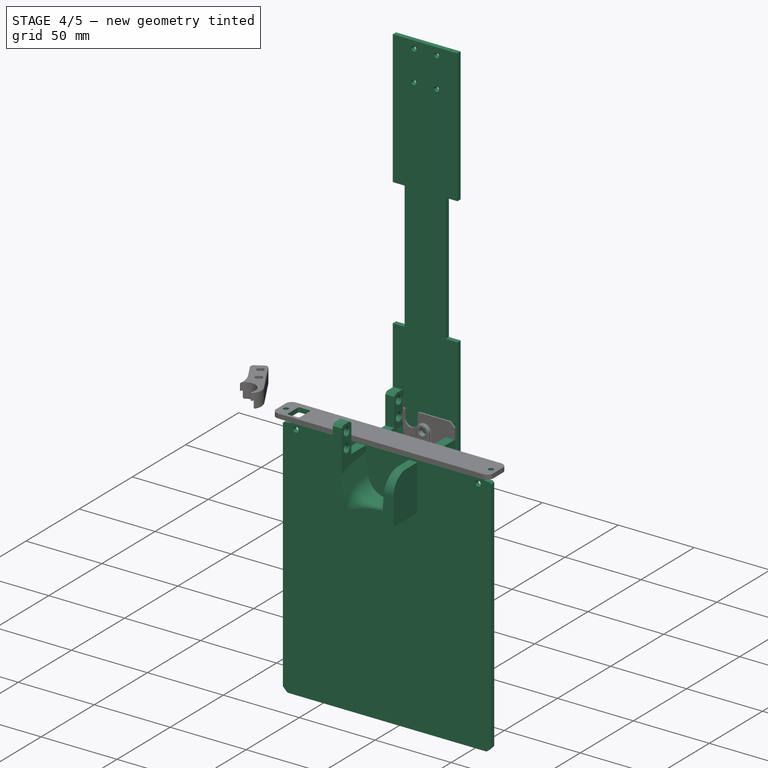
[diagram: stage 4 of 5 — iso view after this stage's code; geometry added in this stage tinted green]
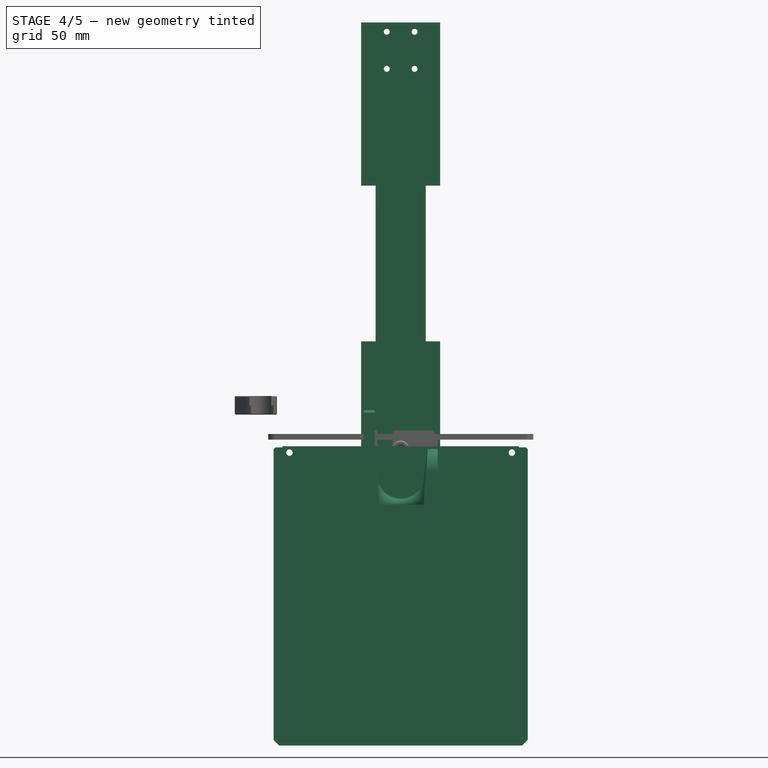
[diagram: stage 4 of 5 — front view after this stage's code; geometry added in this stage tinted green]
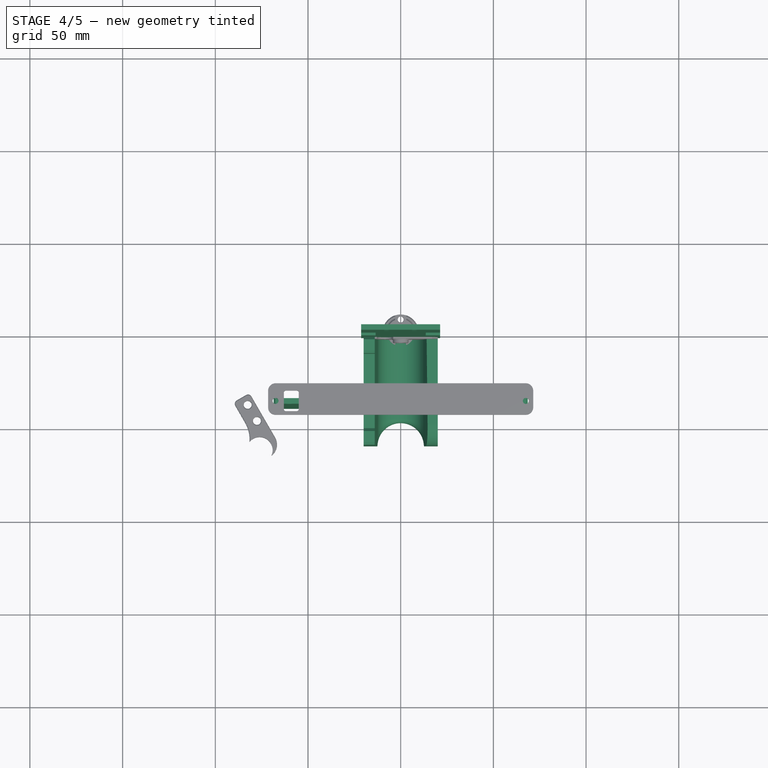
[diagram: stage 4 of 5 — top view after this stage's code; geometry added in this stage tinted green]
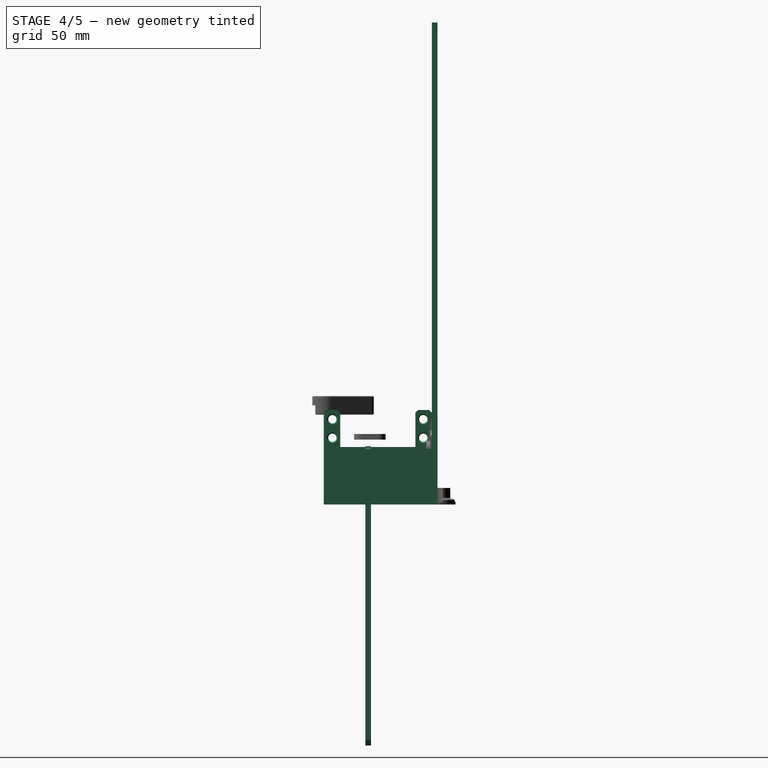
[diagram: stage 4 of 5 — right view after this stage's code; geometry added in this stage tinted green]
FEATURE [PartDesign::Body] Body042  label="SpacerLaserGripper"
  AutoGroupSolids = false
  ClaimAllChildren = false
  ExportMode = 0
  Group = -> [Sketch087,Pad047]
  InvalidShape = false
  Origin = -> Origin068
  Placement = pos=(0,0,-21.6) rot=(0,0,1;0rad)
  SingleSolid = true
  Tip = -> Pad047
  TreeRank = 247
  ValidateShape = true
  _ExportChildren = -> [Pad047]
  _GroupVersion = 1
FEATURE [TechDraw::DrawSVGTemplate] Template001
  Height = 210
  Orientation = 1
  TreeRank = 251
  Width = 297
FEATURE [TechDraw::DrawProjGroupItem] ProjItem001  label="Front001"
  CoarseView = false
  Direction = (0,0,-1)
  Focus = 100
  HardHidden = false
  IsoCount = 0
  IsoHidden = false
  IsoVisible = false
  LockPosition = true
  Perspective = false
  Rotation = 0
  RotationVector = (0,1,0)
  ScaleType = 2
  SeamHidden = false
  SeamVisible = true
  SmoothHidden = false
  SmoothVisible = true
  Source = -> [Pad047]
  TreeRank = 254
  Type = 0
  X = 0
  XDirection = (0,1,0)
  Y = 0
FEATURE [TechDraw::DrawProjGroup] ProjGroup001
  Anchor = -> ProjItem001
  AutoDistribute = true
  LockPosition = false
  ProjectionType = 0
  Rotation = 0
  ScaleType = 0
  Source = -> [Pad047]
  TreeRank = 255
  Views = -> [ProjItem001]
  X = 150.387
  Y = 178.047
  spacingX = 15
  spacingY = 15
FEATURE [Sketcher::SketchObject] Sketch088
  ArcFitTolerance = 1e-06
  AttachmentSupport = -> [XZ_Plane055]
  ExternalBSplineMaxDegree = 0
  ExternalBSplineTolerance = 0
  FullyConstrained = true
  InternalTolerance = 1e-06
  InvalidShape = false
  MakeInternals = false
  MapMode = 5
  Placement = pos=(0,0,0) rot=(1,0,0;1.5708rad)
  Support = -> [XZ_Plane055]
  TreeRank = 281
  ValidateShape = true
  sketch-geometry (30):
    g0: LineSegment StartX=-21.3 StartY=0 StartZ=0 EndX=21.3 EndY=0 EndZ=0
    g1: LineSegment [constr] StartX=21.3 StartY=0 StartZ=0 EndX=21.3 EndY=260 EndZ=0
    g2: LineSegment StartX=21.3 StartY=260 StartZ=0 EndX=-21.3 EndY=260 EndZ=0
    g3: LineSegment [constr] StartX=-21.3 StartY=260 StartZ=0 EndX=-21.3 EndY=0 EndZ=0
    g4: LineSegment [constr] StartX=-7.5 StartY=255 StartZ=0 EndX=7.5 EndY=255 EndZ=0
    g5: LineSegment [constr] StartX=7.5 StartY=255 StartZ=0 EndX=7.5 EndY=235 EndZ=0
    g6: LineSegment [constr] StartX=7.5 StartY=235 StartZ=0 EndX=-7.5 EndY=235 EndZ=0
    g7: LineSegment [constr] StartX=-7.5 StartY=235 StartZ=0 EndX=-7.5 EndY=255 EndZ=0
    g8: LineSegment [constr] StartX=-7.5 StartY=25 StartZ=0 EndX=7.5 EndY=25 EndZ=0
    g9: LineSegment [constr] StartX=7.5 StartY=25 StartZ=0 EndX=7.5 EndY=5 EndZ=0
    g10: LineSegment [constr] StartX=7.5 StartY=5 StartZ=0 EndX=-7.5 EndY=5 EndZ=0
    g11: LineSegment [constr] StartX=-7.5 StartY=5 StartZ=0 EndX=-7.5 EndY=25 EndZ=0
    g12: Circle CenterX=-7.5 CenterY=255 CenterZ=0 NormalX=0 NormalY=0 NormalZ=1 AngleXU=0 Radius=1.6
    g13: Circle CenterX=7.5 CenterY=255 CenterZ=0 NormalX=0 NormalY=0 NormalZ=1 AngleXU=0 Radius=1.6
    g14: Circle CenterX=7.5 CenterY=235 CenterZ=0 NormalX=0 NormalY=0 NormalZ=1 AngleXU=0 Radius=1.6
    g15: Circle CenterX=-7.5 CenterY=235 CenterZ=0 NormalX=0 NormalY=0 NormalZ=1 AngleXU=0 Radius=1.6
    g16: Circle CenterX=-7.5 CenterY=25 CenterZ=0 NormalX=0 NormalY=0 NormalZ=1 AngleXU=0 Radius=1.6
    g17: Circle CenterX=7.5 CenterY=25 CenterZ=0 NormalX=0 NormalY=0 NormalZ=1 AngleXU=0 Radius=1.6
    g18: Circle CenterX=-7.5 CenterY=5 CenterZ=0 NormalX=0 NormalY=0 NormalZ=1 AngleXU=0 Radius=1.6
    g19: Circle CenterX=7.5 CenterY=5 CenterZ=0 NormalX=0 NormalY=0 NormalZ=1 AngleXU=0 Radius=1.6
    g20: LineSegment StartX=-21.3 StartY=260 StartZ=0 EndX=-21.3 EndY=172 EndZ=0
    g21: LineSegment StartX=-21.3 StartY=172 StartZ=0 EndX=-13.5 EndY=172 EndZ=0
    g22: LineSegment StartX=-13.5 StartY=172 StartZ=0 EndX=-13.5 EndY=88 EndZ=0
    g23: LineSegment StartX=-13.5 StartY=88 StartZ=0 EndX=-21.3 EndY=88 EndZ=0
    g24: LineSegment StartX=-21.3 StartY=88 StartZ=0 EndX=-21.3 EndY=0 EndZ=0
    g25: LineSegment StartX=21.3 StartY=0 StartZ=0 EndX=21.3 EndY=88 EndZ=0
    g26: LineSegment StartX=21.3 StartY=88 StartZ=0 EndX=13.5 EndY=88 EndZ=0
    g27: LineSegment StartX=13.5 StartY=88 StartZ=0 EndX=13.5 EndY=172 EndZ=0
    g28: LineSegment StartX=13.5 StartY=172 StartZ=0 EndX=21.3 EndY=172 EndZ=0
    g29: LineSegment StartX=21.3 StartY=172 StartZ=0 EndX=21.3 EndY=260 EndZ=0
  constraints (76):
    c: Coincident(g0,g1)
    c: Coincident(g1,g2)
    c: Coincident(g2,g3)
    c: Coincident(g3,g0)
    c: Horizontal(g0)
    c: Vertical(g1)
    c: Vertical(g3)
    c: Symmetric(g1,g2,g-2)
    c: Coincident(g4,g5)
    c: Coincident(g5,g6)
    c: Coincident(g6,g7)
    c: Coincident(g7,g4)
    c: Horizontal(g4)
    c: Vertical(g5)
    c: Vertical(g7)
    c: Coincident(g8,g9)
    c: Coincident(g9,g10)
    c: Coincident(g10,g11)
    c: Coincident(g11,g8)
    c: Horizontal(g10)
    c: Vertical(g9)
    c: Vertical(g11)
    c: Equal(g6,g8)
    c: Equal(g5,g9)
    c: Symmetric(g5,g6,g-2)
    c: Symmetric(g8,g8,g-2)
    c: Coincident(g12,g4)
    c: Coincident(g13,g4)
    c: Coincident(g14,g5)
    c: Coincident(g15,g6)
    c: Coincident(g16,g8)
    c: Coincident(g17,g8)
    c: Coincident(g18,g10)
    c: Coincident(g19,g9)
    c: Equal(g19,g18)
    c: Equal(g19,g16)
    c: Equal(g19,g17)
    c: Equal(g19,g14)
    c: Equal(g19,g15)
    c: Equal(g19,g12)
    c: Equal(g19,g13)
    c: Diameter(g19) = 3.2
    c: Coincident(g20,g2)
    c: PointOnObject(g20,g3)
    c: Coincident(g21,g20)
    c: Horizontal(g21)
    c: Coincident(g22,g21)
    c: Vertical(g22)
    c: Coincident(g23,g22)
    c: PointOnObject(g23,g3)
    c: Coincident(g24,g23)
    c: Coincident(g24,g0)
    c: Coincident(g25,g0)
    c: PointOnObject(g25,g1)
    c: Coincident(g26,g25)
    c: Horizontal(g26)
    c: Coincident(g27,g26)
    c: Vertical(g27)
    c: Coincident(g28,g27)
    c: PointOnObject(g28,g1)
    c: Horizontal(g28)
    c: Coincident(g29,g28)
    c: Coincident(g29,g2)
    c: Horizontal(g23)
    c: Horizontal(g22,g26)
    c: Symmetric(g21,g27,g-2)
    c: DistanceX(g4,g4) = 15
    c: DistanceY(g5,g5) = 20
    c: DistanceY(g13,g2) = 5
    c: DistanceX(g2,g2) = 42.6
    c: DistanceY(g22) = 88
    c: DistanceY(g21) = 172
    c: DistanceY(g2) = 260
    c: PointOnObject(g-1,g0)
    c: DistanceY(g-1,g19) = 5
    c: DistanceX(g22,g26) = 27
FEATURE [PartDesign::Pad] Pad048
  AddSubType = 0
  AlongSketchNormal = false
  AutoTaperInnerAngle = false
  CheckUpToFaceLimits = true
  ClaimChildren = false
  Direction = (0,-1,2e-16)
  Fit = 0
  FitJoin = 0
  InnerFit = 0
  InnerFitJoin = 0
  InvalidShape = false
  Length = 3
  Length2 = 100
  Linearize = true
  NewSolid = false
  Placement = pos=(0,0,0) rot=(1,0,0;1.5708rad)
  Profile = -> Sketch088
  Refine = true
  Suppress = false
  TaperInnerAngle = 0
  TaperInnerAngleRev = 0
  TreeRank = 282
  Type = 0
  ValidateShape = true
  _ProfileBasedVersion = 1
FEATURE [Part::SubShapeBinder] Import005  label="Import005(Pocket006)"
  BindCopyOnChange = 0
  BindMode = 0
  ClaimChildren = false
  Context = -> <external ../table.FCStd>#Group [Link.Group002.Link016.Part003.Body045.Import005.]
  EdgeTolerance = 1e-06
  FillStyle = 0
  Fuse = false
  InvalidShape = false
  MakeFace = false
  MergeEdges = true
  OffsetFill = false
  OffsetIntersection = false
  OffsetJoinType = 0
  OffsetOpenResult = false
  Outline = false
  PartialLoad = false
  Relative = true
  SplitEdges = false
  Support = -> [Body044[Pocket006.]]
  TightBound = false
  TreeRank = 314
  ValidateShape = true
  _Version = 8
FEATURE [Sketcher::SketchObject] Sketch092
  ArcFitTolerance = 1e-06
  AttachmentSupport = -> [XY_Plane057]
  ExternalBSplineMaxDegree = 0
  ExternalBSplineTolerance = 0
  ExternalGeometry = -> [Import005]
  FullyConstrained = true
  InternalTolerance = 1e-06
  InvalidShape = false
  MakeInternals = false
  MapMode = 5
  Support = -> [XY_Plane057]
  TreeRank = 313
  ValidateShape = true
  sketch-geometry (4):
    g0: LineSegment StartX=-20 StartY=-61.38 StartZ=0 EndX=20 EndY=-61.38 EndZ=0
    g1: LineSegment StartX=20 StartY=-61.38 StartZ=0 EndX=20 EndY=-3 EndZ=0
    g2: LineSegment StartX=20 StartY=-3 StartZ=0 EndX=-20 EndY=-3 EndZ=0
    g3: LineSegment StartX=-20 StartY=-3 StartZ=0 EndX=-20 EndY=-61.38 EndZ=0
  constraints (11):
    c: Coincident(g0,g1)
    c: Coincident(g1,g2)
    c: Coincident(g2,g3)
    c: Coincident(g3,g0)
    c: Horizontal(g0)
    c: Vertical(g1)
    c: Vertical(g3)
    c: Symmetric(g1,g2,g-2)
    c: DistanceY(g1,g-1) = 3
    c: PointOnObject(g0,g-3)
    c: DistanceX(g0,g0) = 40
FEATURE [PartDesign::Pad] Pad050
  AddSubType = 0
  AlongSketchNormal = false
  AutoTaperInnerAngle = false
  CheckUpToFaceLimits = true
  ClaimChildren = false
  Direction = (0,0,1)
  Fit = 0
  FitJoin = 0
  InnerFit = 0
  InnerFitJoin = 0
  InvalidShape = false
  Length = 30
  Length2 = 100
  Linearize = true
  NewSolid = false
  Profile = -> Sketch092
  Refine = true
  Suppress = false
  TaperInnerAngle = 0
  TaperInnerAngleRev = 0
  TreeRank = 315
  Type = 0
  ValidateShape = true
  _ProfileBasedVersion = 1
FEATURE [Sketcher::SketchObject] Sketch094
  ArcFitTolerance = 1e-06
  AttachmentSupport = -> [YZ_Plane057]
  ExternalBSplineMaxDegree = 0
  ExternalBSplineTolerance = 0
  FullyConstrained = true
  InternalTolerance = 1e-06
  InvalidShape = false
  MakeInternals = false
  MapMode = 5
  Placement = pos=(0,0,0) rot=(0.57735,0.57735,0.57735;2.0944rad)
  Support = -> [YZ_Plane057]
  TreeRank = 317
  ValidateShape = true
  sketch-geometry (4):
    g0: LineSegment StartX=12.0843 StartY=20.1723 StartZ=0 EndX=-47.6873 EndY=14.9429 EndZ=0
    g1: ArcOfCircle CenterX=-46.38 CenterY=0 CenterZ=0 NormalX=0 NormalY=0 NormalZ=1 AngleXU=0 Radius=15 StartAngle=1.65806 EndAngle=3.14159
    g2: LineSegment StartX=-61.38 StartY=0 StartZ=0 EndX=-61.38 EndY=-16 EndZ=0
    g3: GeomPoint [constr] X=0 Y=19.115 Z=0
  constraints (11):
    c: Tangent(g2,g1) = -1.5708
    c: Tangent(g1,g0) = -1.5708
    c: Diameter(g1) = 30
    c: Vertical(g2)
    c: PointOnObject(g1,g-1)
    c: PointOnObject(g3,g-2)
    c: PointOnObject(g3,g0)
    c: Angle(g-1,g0) = 0.0872665
    c: Distance(g0) = 60
    c: DistanceX(g1,g-1) = 61.38
    c: DistanceY(g2) = -16
FEATURE [Sketcher::SketchObject] Sketch095
  ArcFitTolerance = 1e-06
  AttachmentSupport = -> [XY_Plane057]
  ExternalBSplineMaxDegree = 0
  ExternalBSplineTolerance = 0
  ExternalGeometry = -> [Pad050]
  FullyConstrained = true
  InternalTolerance = 1e-06
  InvalidShape = false
  MakeInternals = false
  MapMode = 5
  Support = -> [XY_Plane057]
  TreeRank = 318
  ValidateShape = true
  sketch-geometry (4):
    g0: ArcOfCircle CenterX=0 CenterY=-61.38 CenterZ=0 NormalX=0 NormalY=0 NormalZ=1 AngleXU=0 Radius=12.5 StartAngle=0.125328 EndAngle=3.01626
    g1: ArcOfCircle CenterX=0 CenterY=-81.38 CenterZ=0 NormalX=0 NormalY=0 NormalZ=1 AngleXU=0 Radius=15 StartAngle=3.01626 EndAngle=6.40851
    g2: LineSegment StartX=-12.402 StartY=-59.8175 StartZ=0 EndX=-14.8824 EndY=-79.505 EndZ=0
    g3: LineSegment StartX=14.8824 StartY=-79.505 StartZ=0 EndX=12.402 EndY=-59.8175 EndZ=0
  constraints (10):
    c: Tangent(g0,g2) = -1.5708
    c: Tangent(g2,g1) = -1.5708
    c: Tangent(g1,g3) = -1.5708
    c: Tangent(g3,g0) = -1.5708
    c: PointOnObject(g0,g-2)
    c: PointOnObject(g1,g-2)
    c: Diameter(g0) = 25
    c: Diameter(g1) = 30
    c: PointOnObject(g0,g-3)
    c: DistanceY(g1,g0) = 20
FEATURE [PartDesign::SubtractivePipe] Pipe001
  AddSubType = 1
  AuxilleryCurvelinear = true
  AuxillerySpineTangent = false
  BaseFeature = -> Pad050
  Binormal = (0,0,0)
  ClaimChildren = false
  Fit = 0
  FitJoin = 0
  InnerFit = 0
  InnerFitJoin = 0
  InvalidShape = false
  Linearize = true
  Mode = 0
  MoveProfile = false
  NewSolid = false
  Profile = -> Sketch095
  Refine = true
  RotateProfile = false
  Spine = -> Sketch094
  SpineTangent = false
  Suppress = false
  Transformation = 0
  Transition = 1
  TreeRank = 319
  ValidateShape = true
  _ProfileBasedVersion = 2
FEATURE [PartDesign::Fillet] Fillet004
  AddSubType = 0
  Base = -> Pipe001 [Edge29]
  BaseFeature = -> Pipe001
  InvalidShape = false
  NewSolid = false
  Radius = 12
  Refine = true
  SupportTransform = false
  Suppress = false
  TreeRank = 320
  ValidateShape = true
FEATURE [PartDesign::SubShapeBinder] Binder001  label="Binder001(Pocket007)"
  BindCopyOnChange = 0
  BindMode = 0
  ClaimChildren = false
  Context = -> Assembly [Part003.Body045.Binder001.]
  EdgeTolerance = 1e-06
  FillStyle = 0
  Fuse = false
  InvalidShape = false
  MakeFace = true
  MergeEdges = true
  OffsetFill = false
  OffsetIntersection = false
  OffsetJoinType = 0
  OffsetOpenResult = false
  Outline = false
  PartialLoad = false
  Relative = true
  SplitEdges = false
  Support = -> [Body044[Pocket007.Face5]]
  TightBound = false
  TreeRank = 323
  ValidateShape = true
  _Version = 8
FEATURE [Sketcher::SketchObject] Sketch097
  ArcFitTolerance = 1e-06
  AttachmentSupport = -> [XY_Plane057]
  ExternalBSplineMaxDegree = 0
  ExternalBSplineTolerance = 0
  ExternalGeometry = -> [Binder001]
  FullyConstrained = true
  InternalTolerance = 1e-06
  InvalidShape = false
  MakeInternals = false
  MapMode = 5
  Support = -> [XY_Plane057]
  TreeRank = 324
  ValidateShape = true
  sketch-geometry (4):
    g0: Circle CenterX=-16 CenterY=-53 CenterZ=0 NormalX=0 NormalY=0 NormalZ=1 AngleXU=0 Radius=2.3
    g1: Circle CenterX=-16 CenterY=-18 CenterZ=0 NormalX=0 NormalY=0 NormalZ=1 AngleXU=0 Radius=2.3
    g2: Circle CenterX=16 CenterY=-18 CenterZ=0 NormalX=0 NormalY=0 NormalZ=1 AngleXU=0 Radius=2.3
    g3: Circle CenterX=16 CenterY=-53 CenterZ=0 NormalX=0 NormalY=0 NormalZ=1 AngleXU=0 Radius=2.3
  constraints (8):
    c: Coincident(g0,g-3)
    c: Coincident(g1,g-5)
    c: Coincident(g2,g-6)
    c: Coincident(g3,g-4)
    c: Equal(g3,g0)
    c: Equal(g3,g1)
    c: Equal(g3,g2)
    c: Diameter(g3) = 4.6
FEATURE [PartDesign::Pocket] Pocket008
  AddSubType = 1
  AutoTaperInnerAngle = false
  BaseFeature = -> Fillet004
  CheckUpToFaceLimits = true
  ClaimChildren = false
  Fit = 0
  FitJoin = 0
  InnerFit = 0
  InnerFitJoin = 0
  InvalidShape = false
  Length = 13
  Length2 = 100
  Linearize = true
  NewSolid = false
  Profile = -> Sketch097
  Refine = true
  Reversed = true
  Suppress = false
  TaperInnerAngle = 0
  TaperInnerAngleRev = 0
  TreeRank = 325
  Type = 0
  ValidateShape = true
  _ProfileBasedVersion = 1
  _Version = 1
FEATURE [Sketcher::SketchObject] Sketch098
  ArcFitTolerance = 1e-06
  AttachmentSupport = -> [XZ_Plane057]
  ExternalBSplineMaxDegree = 0
  ExternalBSplineTolerance = 0
  FullyConstrained = true
  InternalTolerance = 1e-06
  InvalidShape = false
  MakeInternals = false
  MapMode = 5
  Placement = pos=(0,0,0) rot=(1,0,0;1.5708rad)
  Support = -> [XZ_Plane057]
  TreeRank = 326
  ValidateShape = true
  sketch-geometry (4):
    g0: Circle CenterX=16.5 CenterY=4 CenterZ=0 NormalX=0 NormalY=0 NormalZ=1 AngleXU=0 Radius=2.3
    g1: Circle CenterX=-16.5 CenterY=4 CenterZ=0 NormalX=0 NormalY=0 NormalZ=1 AngleXU=0 Radius=2.3
    g2: Circle CenterX=-16.5 CenterY=22 CenterZ=0 NormalX=0 NormalY=0 NormalZ=1 AngleXU=0 Radius=2.3
    g3: Circle CenterX=16.5 CenterY=22 CenterZ=0 NormalX=0 NormalY=0 NormalZ=1 AngleXU=0 Radius=2.3
  constraints (10):
    c: Equal(g3,g0)
    c: Equal(g3,g1)
    c: Equal(g3,g2)
    c: Diameter(g3) = 4.6
    c: Symmetric(g0,g1,g-2)
    c: Symmetric(g2,g3,g-2)
    c: DistanceX(g-1,g3) = 16.5
    c: Vertical(g0,g3)
    c: DistanceY(g-1,g0) = 4
    c: DistanceY(g3) = 22
FEATURE [PartDesign::Pocket] Pocket009
  AddSubType = 1
  AutoTaperInnerAngle = false
  BaseFeature = -> Pocket008
  CheckUpToFaceLimits = true
  ClaimChildren = false
  Fit = 0
  FitJoin = 0
  InnerFit = 0
  InnerFitJoin = 0
  InvalidShape = false
  Length = 14
  Length2 = 100
  Linearize = true
  NewSolid = false
  Profile = -> Sketch098
  Refine = true
  Reversed = true
  Suppress = false
  TaperInnerAngle = 0
  TaperInnerAngleRev = 0
  TreeRank = 327
  Type = 0
  ValidateShape = true
  _ProfileBasedVersion = 1
  _Version = 1
FEATURE [PartDesign::Chamfer] Chamfer006
  AddSubType = 0
  Angle = 45
  Base = -> Pocket009 [Edge32,Edge30,Edge31,Edge29,Edge18,Edge17,Edge20,Edge19]
  BaseFeature = -> Pocket009
  ChamferType = 0
  FlipDirection = false
  InvalidShape = false
  NewSolid = false
  Refine = true
  Size = 0.4
  Size2 = 1
  SupportTransform = false
  Suppress = false
  TreeRank = 328
  ValidateShape = true
FEATURE [PartDesign::Body] Body046  label="SpacerBearing"
  AutoGroupSolids = false
  ClaimAllChildren = false
  ExportMode = 0
  Group = -> [Sketch100,Pad051,Sketch101,Sketch102,Pad052,Pocket011,Chamfer008,Chamfer009,Chamfer010]
  InvalidShape = false
  Origin = -> Origin076
  Placement = pos=(0,0,15) rot=(0,0,1;0rad)
  SingleSolid = true
  Tip = -> Chamfer010
  TreeRank = 417
  ValidateShape = true
  _ExportChildren = -> [Pad051,Pad052,Pocket011,Chamfer008,Chamfer009,Chamfer010]
  _GroupVersion = 1
FEATURE [App::Part] Part002  label="Gripper-Left"
  ClaimAllChildren = false
  ExportMode = 1
  Group = -> [Link005,Link006,Body041,Body042,Body046]
  Origin = -> Origin066
  Placement = pos=(0,0,-16) rot=(0,0,-1;1.0472rad)
  TreeRank = 220
  _ExportChildren = -> [Link005,Link006,Body041,Body042,Body046]
  _GroupVersion = 1
FEATURE [App::Part] Part001  label="EnsembleGripperLeft"
  ClaimAllChildren = false
  ExportMode = 1
  Group = -> [Link004,Part002]
  Origin = -> Origin065
  Placement = pos=(-67.4637,-37.0394,5.49999) rot=(-0.258819,0.965926,0;3.14159rad)
  TreeRank = 217
  _ExportChildren = -> [Link004,Part002]
  _GroupVersion = 1
FEATURE [Sketcher::SketchObject] Sketch103
  ArcFitTolerance = 1e-06
  AttachmentOffset = pos=(0,0,21) rot=(0,0,1;0rad)
  AttachmentSupport = -> [Chamfer006]
  ExternalBSplineMaxDegree = 5
  ExternalBSplineTolerance = 0.0001
  ExternalGeometry = -> [Chamfer006]
  FullyConstrained = true
  InternalTolerance = 1e-06
  InvalidShape = false
  MakeInternals = false
  MapMode = 5
  Placement = pos=(0,0,51) rot=(0,0,1;0rad)
  Support = -> [Chamfer006]
  TreeRank = 427
  ValidateShape = true
  sketch-geometry (4):
    g0: LineSegment StartX=-20 StartY=-3 StartZ=0 EndX=-13.9979 EndY=-3 EndZ=0
    g1: LineSegment StartX=-13.9979 StartY=-3 StartZ=0 EndX=-13.9979 EndY=-61.38 EndZ=0
    g2: LineSegment StartX=-13.9979 StartY=-61.38 StartZ=0 EndX=-20 EndY=-61.38 EndZ=0
    g3: LineSegment StartX=-20 StartY=-61.38 StartZ=0 EndX=-20 EndY=-3 EndZ=0
  constraints (9):
    c: Coincident(g0,g1)
    c: Coincident(g1,g2)
    c: Coincident(g2,g3)
    c: Coincident(g3,g0)
    c: Horizontal(g2)
    c: Vertical(g1)
    c: Coincident(g0,g-4)
    c: Coincident(g2,g-4)
    c: Coincident(g0,g-3)
FEATURE [PartDesign::Pad] Pad053
  AddSubType = 0
  AlongSketchNormal = false
  AutoTaperInnerAngle = true
  BaseFeature = -> Chamfer006
  CheckUpToFaceLimits = true
  ClaimChildren = false
  Direction = (0,0,1)
  Fit = 0
  FitJoin = 0
  InnerFit = 0
  InnerFitJoin = 0
  InvalidShape = false
  Length = 26
  Length2 = 100
  Linearize = true
  NewSolid = false
  Profile = -> Sketch103
  Refine = true
  Reversed = true
  Suppress = false
  TaperInnerAngle = 0
  TaperInnerAngleRev = 0
  TreeRank = 428
  Type = 0
  ValidateShape = true
  _ProfileBasedVersion = 1
FEATURE [PartDesign::Draft] Draft
  AddSubType = 0
  Angle = 1.5
  Base = -> Pad053 [Face17]
  BaseFeature = -> Pad053
  InvalidShape = false
  NeutralPlane = -> Pad053 [Face18]
  NewSolid = false
  PullDirection = -> Pad053 [Edge51]
  Refine = true
  SupportTransform = false
  Suppress = false
  TreeRank = 429
  ValidateShape = true
FEATURE [Sketcher::SketchObject] Sketch104
  ArcFitTolerance = 1e-06
  AttachmentSupport = -> [YZ_Plane057]
  ExternalBSplineMaxDegree = 5
  ExternalBSplineTolerance = 0.0001
  ExternalGeometry = -> [Draft]
  FullyConstrained = true
  InternalTolerance = 1e-06
  InvalidShape = false
  MakeInternals = false
  MapMode = 5
  Placement = pos=(0,0,0) rot=(0.57735,0.57735,0.57735;2.0944rad)
  Support = -> [YZ_Plane057]
  TreeRank = 430
  ValidateShape = true
  sketch-geometry (14):
    g0: LineSegment StartX=-52.44 StartY=51 StartZ=0 EndX=-11.94 EndY=51 EndZ=0
    g1: LineSegment StartX=-11.94 StartY=51 StartZ=0 EndX=-11.94 EndY=31 EndZ=0
    g2: LineSegment StartX=-11.94 StartY=31 StartZ=0 EndX=-52.44 EndY=31 EndZ=0
    g3: LineSegment StartX=-52.44 StartY=31 StartZ=0 EndX=-52.44 EndY=51 EndZ=0
    g4: LineSegment [constr] StartX=-32.19 StartY=51 StartZ=0 EndX=-32.19 EndY=31 EndZ=0
    g5: Circle CenterX=-56.69 CenterY=46 CenterZ=0 NormalX=0 NormalY=0 NormalZ=1 AngleXU=0 Radius=2.25
    g6: Circle CenterX=-56.69 CenterY=36 CenterZ=0 NormalX=0 NormalY=0 NormalZ=1 AngleXU=0 Radius=2.25
    g7: Circle CenterX=-7.69 CenterY=46 CenterZ=0 NormalX=0 NormalY=0 NormalZ=1 AngleXU=0 Radius=2.25
    g8: Circle CenterX=-7.69 CenterY=36 CenterZ=0 NormalX=0 NormalY=0 NormalZ=1 AngleXU=0 Radius=2.25
    g9: LineSegment [constr] StartX=-56.69 StartY=46 StartZ=0 EndX=-7.69 EndY=46 EndZ=0
    g10: LineSegment [constr] StartX=-7.69 StartY=46 StartZ=0 EndX=-7.69 EndY=36 EndZ=0
    g11: LineSegment [constr] StartX=-7.69 StartY=36 StartZ=0 EndX=-56.69 EndY=36 EndZ=0
    g12: LineSegment [constr] StartX=-56.69 StartY=36 StartZ=0 EndX=-56.69 EndY=46 EndZ=0
    g13: LineSegment [constr] StartX=-52.44 StartY=41 StartZ=0 EndX=-11.94 EndY=41 EndZ=0
  constraints (35):
    c: Coincident(g0,g1)
    c: Coincident(g1,g2)
    c: Coincident(g2,g3)
    c: Coincident(g3,g0)
    c: Horizontal(g0)
    c: Horizontal(g2)
    c: Vertical(g1)
    c: Vertical(g3)
    c: DistanceX(g0,g0) = 40.5
    c: DistanceY(g1,g1) = 20
    c: PointOnObject(g4,g2)
    c: Vertical(g4)
    c: Symmetric(g-4,g-5,g4)
    c: Symmetric(g0,g0,g4)
    c: Equal(g5,g6)
    c: Equal(g6,g8)
    c: Equal(g8,g7)
    c: Coincident(g9,g10)
    c: Coincident(g10,g11)
    c: Coincident(g11,g12)
    c: Coincident(g12,g9)
    c: Horizontal(g11)
    c: Vertical(g10)
    c: Vertical(g12)
    c: Coincident(g9,g5)
    c: Coincident(g10,g8)
    c: Coincident(g7,g9)
    c: Coincident(g11,g6)
    c: Symmetric(g5,g7,g4)
    c: PointOnObject(g13,g1)
    c: Symmetric(g2,g0,g13)
    c: Symmetric(g5,g6,g13)
    c: Diameter(g7) = 4.5
    c: DistanceY(g10,g10) = 10
    c: DistanceX(g9,g9) = 49
FEATURE [PartDesign::Pocket] Pocket012
  AddSubType = 1
  AutoTaperInnerAngle = true
  BaseFeature = -> Draft
  CheckUpToFaceLimits = true
  ClaimChildren = false
  Fit = 0
  FitJoin = 0
  InnerFit = 0
  InnerFitJoin = 0
  InvalidShape = false
  Length = 5
  Length2 = 100
  Linearize = true
  NewSolid = false
  Profile = -> Sketch104
  Refine = true
  Suppress = false
  TaperInnerAngle = 0
  TaperInnerAngleRev = 0
  TreeRank = 431
  Type = 1
  ValidateShape = true
  _ProfileBasedVersion = 1
  _Version = 1
FEATURE [PartDesign::Chamfer] Chamfer011
  AddSubType = 0
  Angle = 45
  Base = -> Pocket012 [Edge64,Edge70,Edge40,Edge26]
  BaseFeature = -> Pocket012
  ChamferType = 0
  FlipDirection = false
  InvalidShape = false
  NewSolid = false
  Refine = true
  Size = 1.5
  Size2 = 1
  SupportTransform = false
  Suppress = false
  TreeRank = 432
  ValidateShape = true
FEATURE [PartDesign::Chamfer] Chamfer012
  AddSubType = 0
  Angle = 45
  Base = -> Chamfer011 [Edge62,Edge60,Edge13,Edge14,Edge16,Edge15,Edge64,Edge66]
  BaseFeature = -> Chamfer011
  ChamferType = 0
  FlipDirection = false
  InvalidShape = false
  NewSolid = false
  Refine = true
  Size = 0.6
  Size2 = 1
  SupportTransform = false
  Suppress = false
  TreeRank = 433
  ValidateShape = true
FEATURE [Sketcher::SketchObject] Sketch117
  ArcFitTolerance = 1e-06
  AttachmentSupport = -> [Pad060]
  ExternalBSplineMaxDegree = 5
  ExternalBSplineTolerance = 0.0001
  ExternalGeometry = -> [Binder004]
  FullyConstrained = true
  InternalTolerance = 1e-06
  InvalidShape = false
  MakeInternals = true
  MapMode = 5
  Placement = pos=(-1.1e-14,0,35) rot=(1,0,0;3.14159rad)
  Support = -> [Pad060]
  TreeRank = 593
  ValidateShape = true
  sketch-geometry (2):
    g0: Circle CenterX=-67.5 CenterY=37.5 CenterZ=0 NormalX=0 NormalY=0 NormalZ=1 AngleXU=0 Radius=1.6
    g1: Circle CenterX=67.5 CenterY=37.5 CenterZ=0 NormalX=0 NormalY=0 NormalZ=1 AngleXU=0 Radius=1.6
  constraints (4):
    c: Coincident(g0,g-4)
    c: Coincident(g1,g-3)
    c: Equal(g1,g0)
    c: Diameter(g1) = 3.2
FEATURE [PartDesign::Pocket] Pocket019
  AddSubType = 1
  AutoTaperInnerAngle = true
  BaseFeature = -> Pad060
  CheckUpToFaceLimits = true
  ClaimChildren = false
  Fit = 0
  FitJoin = 0
  InnerFit = 0
  InnerFitJoin = 0
  InvalidShape = false
  Length = 5
  Length2 = 100
  Linearize = true
  NewSolid = false
  Profile = -> Sketch117
  Refine = true
  Suppress = false
  TaperInnerAngle = 0
  TaperInnerAngleRev = 0
  TreeRank = 594
  Type = 1
  ValidateShape = true
  _ProfileBasedVersion = 1
  _Version = 1
FEATURE [Sketcher::SketchObject] Sketch118
  ArcFitTolerance = 1e-06
  AttachmentSupport = -> [Pocket019]
  ExternalBSplineMaxDegree = 5
  ExternalBSplineTolerance = 0.0001
  ExternalGeometry = -> [Binder004]
  FullyConstrained = true
  InternalTolerance = 1e-06
  InvalidShape = false
  MakeInternals = true
  MapMode = 5
  Placement = pos=(-1.1e-14,0,35) rot=(1,0,0;3.14159rad)
  Support = -> [Pocket019]
  TreeRank = 595
  ValidateShape = true
  sketch-geometry (10):
    g0: ArcOfCircle CenterX=-62 CenterY=42 CenterZ=0 NormalX=0 NormalY=0 NormalZ=1 AngleXU=0 Radius=1 StartAngle=1.5708 EndAngle=3.14159
    g1: LineSegment StartX=-62 StartY=43 StartZ=0 EndX=-56 EndY=43 EndZ=0
    g2: ArcOfCircle CenterX=-56 CenterY=42 CenterZ=0 NormalX=0 NormalY=0 NormalZ=1 AngleXU=0 Radius=1 StartAngle=-1.5579e-12 EndAngle=1.5708
    g3: LineSegment StartX=-55 StartY=42 StartZ=0 EndX=-55 EndY=33 EndZ=0
    g4: ArcOfCircle CenterX=-56 CenterY=33 CenterZ=0 NormalX=0 NormalY=0 NormalZ=1 AngleXU=0 Radius=1 StartAngle=4.71239 EndAngle=6.28319
    g5: LineSegment StartX=-56 StartY=32 StartZ=0 EndX=-62 EndY=32 EndZ=0
    g6: ArcOfCircle CenterX=-62 CenterY=33 CenterZ=0 NormalX=0 NormalY=0 NormalZ=1 AngleXU=0 Radius=1 StartAngle=3.14159 EndAngle=4.71239
    g7: LineSegment StartX=-63 StartY=33 StartZ=0 EndX=-63 EndY=42 EndZ=0
    g8: GeomPoint [constr] X=-63 Y=43 Z=0
    g9: GeomPoint [constr] X=-55 Y=32 Z=0
  constraints (25):
    c: DistanceY(g-4,g-3) = 11
    c: Tangent(g0,g1) = 1.5708
    c: Tangent(g1,g2) = 1.5708
    c: Tangent(g2,g3) = 1.5708
    c: Tangent(g3,g4) = 1.5708
    c: Tangent(g4,g5) = 1.5708
    c: Tangent(g5,g6) = 1.5708
    c: Tangent(g6,g7) = 1.5708
    c: Tangent(g7,g0) = 1.5708
    c: Horizontal(g1)
    c: Horizontal(g5)
    c: Vertical(g3)
    c: Vertical(g7)
    c: Equal(g0,g2)
    c: Equal(g2,g4)
    c: Equal(g4,g6)
    c: PointOnObject(g8,g1)
    c: PointOnObject(g8,g7)
    c: PointOnObject(g9,g3)
    c: PointOnObject(g9,g5)
    c: PointOnObject(g8,g-3)
    c: PointOnObject(g9,g-4)
    c: DistanceX(g0,g1) = 6
    c: Radius(g2) = 1
    c: Vertical(g0,g-3)
FEATURE [PartDesign::Pocket] Pocket020
  AddSubType = 1
  AutoTaperInnerAngle = true
  BaseFeature = -> Pocket019
  CheckUpToFaceLimits = true
  ClaimChildren = false
  Fit = 0
  FitJoin = 0
  InnerFit = 0
  InnerFitJoin = 0
  InvalidShape = false
  Length = 5
  Length2 = 100
  Linearize = true
  NewSolid = false
  Profile = -> Sketch118
  Refine = true
  Suppress = false
  TaperInnerAngle = 0
  TaperInnerAngleRev = 0
  TreeRank = 596
  Type = 1
  ValidateShape = true
  _ProfileBasedVersion = 1
  _Version = 1
FEATURE [PartDesign::Body] Body051  label="CouvercleLed"
  AutoGroupSolids = false
  ClaimAllChildren = false
  ExportMode = 0
  Group = -> [Binder004,Sketch116,Pad060,Sketch117,Pocket019,Sketch118,Pocket020]
  InvalidShape = false
  Origin = -> Origin083
  SingleSolid = true
  Tip = -> Pocket020
  TreeRank = 589
  ValidateShape = true
  _ExportChildren = -> [Binder004,Pad060,Pocket019,Pocket020]
  _GroupVersion = 1
FEATURE [PartDesign::SubShapeBinder] Binder005  label="Binder005(Fillet014)..."
  BindCopyOnChange = 0
  BindMode = 0
  ClaimChildren = false
  Context = -> Assembly [Part003.Part004.Part008.Body052.Binder005.]
  EdgeTolerance = 1e-06
  FillStyle = 0
  Fuse = false
  InvalidShape = false
  MakeFace = true
  MergeEdges = true
  OffsetFill = false
  OffsetIntersection = false
  OffsetJoinType = 0
  OffsetOpenResult = false
  Outline = false
  PartialLoad = false
  Relative = true
  SplitEdges = false
  Support = -> [Body050[Fillet014.Face31,Fillet014.Face17,Fillet014.Face16,Fillet014.Face22,Fillet014.Face21]]
  TightBound = false
  TreeRank = 607
  ValidateShape = true
  _Version = 8
FEATURE [Part::SubShapeBinder] Import007  label="Import007(Fillet014)"
  BindCopyOnChange = 0
  BindMode = 0
  ClaimChildren = false
  Context = -> Assembly [Part003.Part004.Part008.Body052.Import007.]
  EdgeTolerance = 1e-06
  FillStyle = 0
  Fuse = false
  InvalidShape = false
  MakeFace = false
  MergeEdges = true
  OffsetFill = false
  OffsetIntersection = false
  OffsetJoinType = 0
  OffsetOpenResult = false
  Outline = false
  PartialLoad = false
  Relative = true
  SplitEdges = false
  Support = -> [Body050[Fillet014.]]
  TightBound = false
  TreeRank = 609
  ValidateShape = true
  _Version = 8
FEATURE [Sketcher::SketchObject] Sketch119
  ArcFitTolerance = 1e-06
  AttachmentSupport = -> [Binder005]
  ExternalBSplineMaxDegree = 5
  ExternalBSplineTolerance = 0.0001
  ExternalGeometry = -> [Binder005,Import007]
  FullyConstrained = false
  InternalTolerance = 1e-06
  InvalidShape = false
  MakeInternals = true
  MapMode = 5
  Placement = pos=(-7.9e-15,-35.9,7.9e-15) rot=(1,0,0;1.5708rad)
  Support = -> [Binder005]
  TreeRank = 608
  ValidateShape = true
  sketch-geometry (10):
    g0: LineSegment StartX=-68.5361 StartY=-130 StartZ=0 EndX=-68.5361 EndY=30.8 EndZ=0
    g1: LineSegment StartX=-68.5361 StartY=30.8 StartZ=0 EndX=-63.8 EndY=30.8 EndZ=0
    g2: LineSegment StartX=-63.8 StartY=30.8 StartZ=0 EndX=-63.8 EndY=31.4 EndZ=0
    g3: LineSegment StartX=-63.8 StartY=31.4 StartZ=0 EndX=63.8 EndY=31.4 EndZ=0
    g4: LineSegment StartX=63.8 StartY=31.4 StartZ=0 EndX=63.8 EndY=30.8 EndZ=0
    g5: LineSegment StartX=63.8 StartY=30.8 StartZ=0 EndX=68.5361 EndY=30.8 EndZ=0
    g6: LineSegment StartX=68.5361 StartY=30.8 StartZ=0 EndX=68.5361 EndY=-130 EndZ=0
    g7: LineSegment StartX=68.5361 StartY=-130 StartZ=0 EndX=-68.5361 EndY=-130 EndZ=0
    g8: Circle CenterX=-60 CenterY=28 CenterZ=0 NormalX=0 NormalY=0 NormalZ=1 AngleXU=0 Radius=1.75
    g9: Circle CenterX=60 CenterY=28 CenterZ=0 NormalX=0 NormalY=0 NormalZ=1 AngleXU=0 Radius=1.75
  constraints (25):
    c: Vertical(g0)
    c: Coincident(g1,g0)
    c: Horizontal(g1)
    c: Coincident(g2,g1)
    c: Vertical(g2)
    c: Coincident(g3,g2)
    c: Coincident(g4,g3)
    c: Coincident(g5,g4)
    c: Horizontal(g5)
    c: Vertical(g4)
    c: Coincident(g6,g5)
    c: Vertical(g6)
    c: Coincident(g7,g6)
    c: Coincident(g7,g0)
    c: Horizontal(g7)
    c: Symmetric(g2,g3,g-2)
    c: DistanceX(g3,g-7) = 0.2
    c: Symmetric(g0,g5,g-2)
    c: Coincident(g8,g-3)
    c: Coincident(g9,g-4)
    c: Equal(g9,g8)
    c: Diameter(g9) = 3.5
    c: DistanceX(g5,g-8) = 0.4
    c: DistanceY(g5,g-7) = 0.2
    c: DistanceY(g-7,g3) = 0.4
FEATURE [PartDesign::Pad] Pad061
  AddSubType = 0
  AlongSketchNormal = false
  AutoTaperInnerAngle = true
  CheckUpToFaceLimits = true
  ClaimChildren = false
  Direction = (-2e-16,-1,2e-16)
  Fit = 0
  FitJoin = 0
  InnerFit = 0
  InnerFitJoin = 0
  InvalidShape = false
  Length = 3
  Length2 = 100
  Linearize = true
  NewSolid = false
  Profile = -> Sketch119 [InternalFace1]
  Refine = true
  Suppress = false
  TaperInnerAngle = 0
  TaperInnerAngleRev = 0
  TreeRank = 610
  Type = 0
  ValidateShape = true
  _ProfileBasedVersion = 1
FEATURE [PartDesign::Chamfer] Chamfer015
  AddSubType = 0
  Angle = 45
  Base = -> Pad061 [Edge5,Edge20]
  BaseFeature = -> Pad061
  ChamferType = 0
  FlipDirection = false
  InvalidShape = false
  NewSolid = false
  Refine = true
  Size = 1
  Size2 = 1
  SupportTransform = false
  Suppress = false
  TreeRank = 611
  ValidateShape = true
FEATURE [PartDesign::Chamfer] Chamfer016
  AddSubType = 0
  Angle = 45
  Base = -> Chamfer015 [Edge18,Edge3]
  BaseFeature = -> Chamfer015
  ChamferType = 0
  FlipDirection = false
  InvalidShape = false
  NewSolid = false
  Refine = true
  Size = 3
  Size2 = 1
  SupportTransform = false
  Suppress = false
  TreeRank = 612
  ValidateShape = true
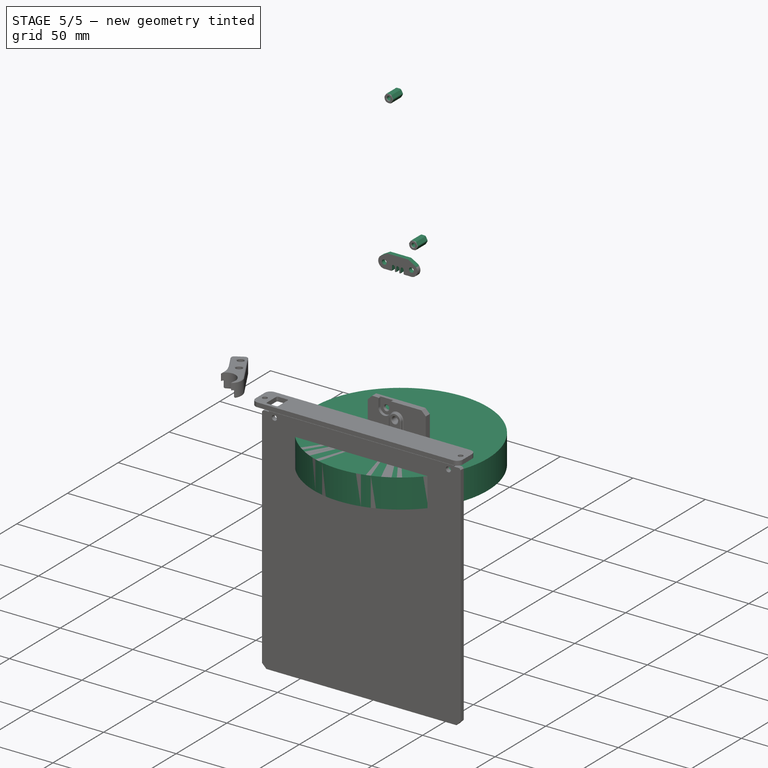
[diagram: stage 5 of 5 — iso view after this stage's code; geometry added in this stage tinted green]
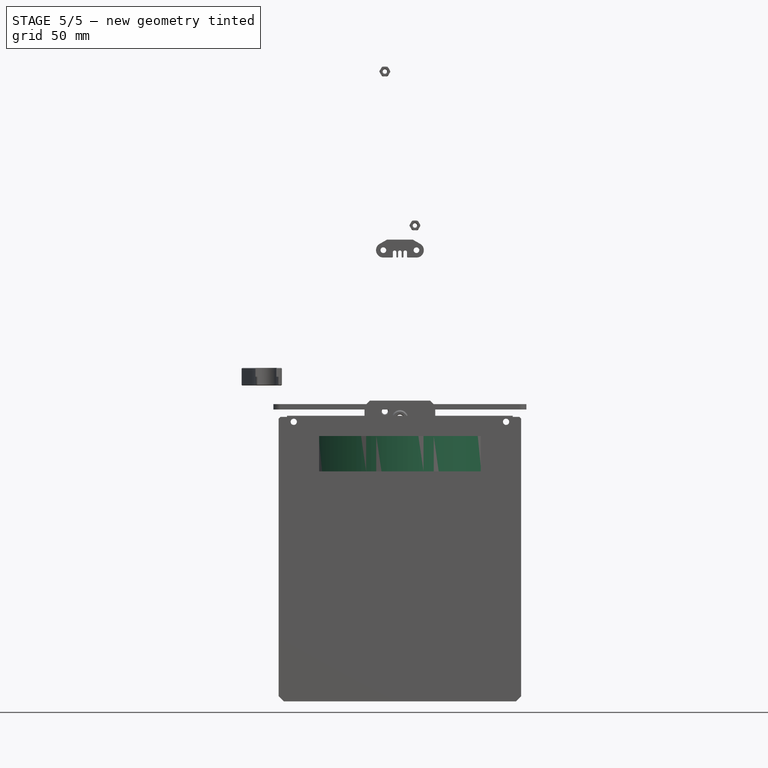
[diagram: stage 5 of 5 — front view after this stage's code; geometry added in this stage tinted green]
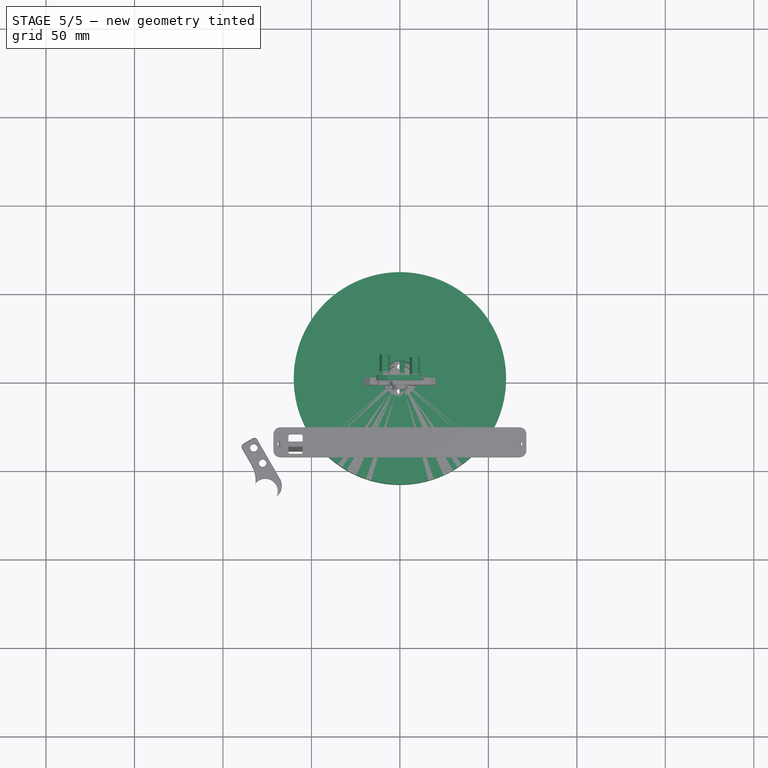
[diagram: stage 5 of 5 — top view after this stage's code; geometry added in this stage tinted green]
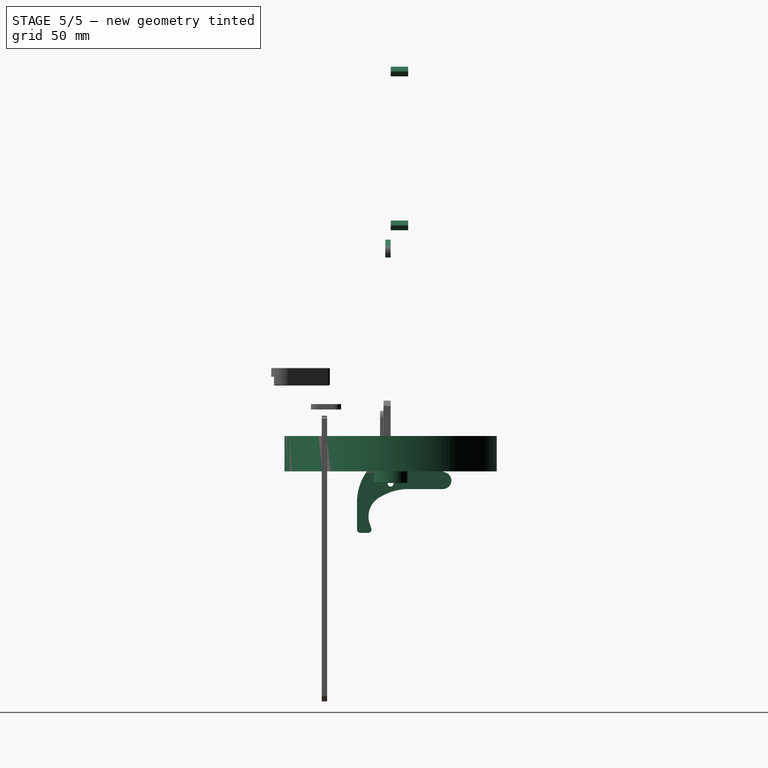
[diagram: stage 5 of 5 — right view after this stage's code; geometry added in this stage tinted green]
FEATURE [App::Link] Link  label="Semelle001"
  AutoLinkLabel = true
  AutoPlacement = true
  LinkedObject = -> <external structures.FCStd>#Link075
  ShowElement = false
  SyncGroupVisibility = false
  TreeRank = 106
  _LinkVersion = 1
FEATURE [App::DocumentObjectGroup] Group  label="Construction"
  ClaimAllChildren = true
  ExportMode = 1
  Group = -> [Origin029,Link]
  TreeRank = 214
  _GroupVersion = 1
FEATURE [Sketcher::SketchObject] Sketch
  ArcFitTolerance = 1e-06
  AttachmentSupport = -> [XY_Plane047]
  ExternalBSplineMaxDegree = 0
  ExternalBSplineTolerance = 0
  FullyConstrained = true
  InternalTolerance = 1e-06
  InvalidShape = false
  MakeInternals = false
  MapMode = 5
  Support = -> [XY_Plane047]
  TreeRank = 124
  ValidateShape = true
  sketch-geometry (2):
    g0: Circle CenterX=0 CenterY=0 CenterZ=0 NormalX=0 NormalY=0 NormalZ=1 AngleXU=0 Radius=60
    g1: Circle CenterX=0 CenterY=0 CenterZ=0 NormalX=0 NormalY=0 NormalZ=1 AngleXU=0 Radius=10
  constraints (4):
    c: Coincident(g0,g-1)
    c: Diameter(g0) = 120
    c: Coincident(g1,g0)
    c: Diameter(g1) = 20
FEATURE [PartDesign::Pad] Pad
  AddSubType = 0
  AlongSketchNormal = false
  AutoTaperInnerAngle = false
  CheckUpToFaceLimits = true
  ClaimChildren = false
  Direction = (0,0,1)
  Fit = 0
  FitJoin = 0
  InnerFit = 0
  InnerFitJoin = 0
  InvalidShape = false
  Length = 20
  Length2 = 100
  Linearize = true
  NewSolid = false
  Profile = -> Sketch
  Refine = true
  Suppress = false
  TaperInnerAngle = 0
  TaperInnerAngleRev = 0
  TreeRank = 125
  Type = 0
  ValidateShape = true
  _ProfileBasedVersion = 1
FEATURE [PartDesign::Body] Body  label="EtageGateau"
  AutoGroupSolids = false
  ClaimAllChildren = false
  ExportMode = 0
  Group = -> [Sketch,Pad]
  InvalidShape = false
  Origin = -> Origin059
  Placement = pos=(0,-125,-13.7) rot=(0,0,1;0rad)
  SingleSolid = true
  Tip = -> Pad
  TreeRank = 123
  ValidateShape = true
  _ExportChildren = -> [Pad]
  _GroupVersion = 1
FEATURE [App::Link] Link002  label="Link002(EtageGateau)"
  AutoLinkLabel = true
  AutoPlacement = true
  LinkPlacement = pos=(0,-134.7,6.3) rot=(0,0,1;0rad)
  LinkedObject = -> Body
  Placement = pos=(0,-134.7,6.3) rot=(0,0,1;0rad)
  ShowElement = false
  SyncGroupVisibility = false
  TreeRank = 126
  _LinkVersion = 1
FEATURE [App::Link] Link003  label="Link003(EtageGateau)"
  AutoLinkLabel = true
  AutoPlacement = true
  LinkPlacement = pos=(0,-125,26.3) rot=(0,0,1;0rad)
  LinkedObject = -> Body
  Placement = pos=(0,-125,26.3) rot=(0,0,1;0rad)
  ShowElement = false
  SyncGroupVisibility = false
  TreeRank = 127
  _LinkVersion = 1
FEATURE [App::Part] Part  label="Gateau"
  ClaimAllChildren = false
  ExportMode = 1
  Group = -> [Link003,Link002,Body]
  Origin = -> Origin060
  Placement = pos=(0,-1.2,0) rot=(0,0,1;0rad)
  TreeRank = 130
  _ExportChildren = -> [Link003,Link002,Body]
  _GroupVersion = 1
FEATURE [PartDesign::Fillet] Fillet
  AddSubType = 0
  Base = -> Pad043 [Edge8,Edge11,Edge14,Edge17]
  BaseFeature = -> Pad043
  InvalidShape = false
  NewSolid = false
  Radius = 10
  Refine = true
  SupportTransform = false
  Suppress = false
  TreeRank = 131
  ValidateShape = true
FEATURE [PartDesign::Body] Body038  label="OutilSemelle"
  AutoGroupSolids = false
  ClaimAllChildren = false
  ExportMode = 0
  Group = -> [Sketch074,Import002,Pad043,Fillet]
  InvalidShape = false
  Origin = -> Origin058
  Placement = pos=(0,0,-5) rot=(0,0,1;0rad)
  SingleSolid = true
  Tip = -> Fillet
  TreeRank = 111
  ValidateShape = true
  _ExportChildren = -> [Import002,Pad043,Fillet]
  _GroupVersion = 1
FEATURE [TechDraw::DrawSVGTemplate] Template
  Height = 210
  Orientation = 1
  TreeRank = 134
  Width = 297
FEATURE [TechDraw::DrawProjGroupItem] ProjItem  label="Front"
  CoarseView = false
  Direction = (0,0,1)
  Focus = 100
  HardHidden = false
  IsoCount = 0
  IsoHidden = false
  IsoVisible = false
  LockPosition = true
  Perspective = false
  Rotation = 0
  RotationVector = (-1,0,0)
  ScaleType = 2
  SeamHidden = false
  SeamVisible = true
  SmoothHidden = false
  SmoothVisible = true
  Source = -> [Fillet]
  TreeRank = 137
  Type = 0
  X = 0
  XDirection = (-1,0,0)
  Y = 0
FEATURE [TechDraw::DrawProjGroup] ProjGroup
  Anchor = -> ProjItem
  AutoDistribute = true
  LockPosition = false
  ProjectionType = 0
  Rotation = 0
  ScaleType = 0
  Source = -> [Fillet]
  TreeRank = 138
  Views = -> [ProjItem]
  X = 92.6586
  Y = 164.312
  spacingX = 15
  spacingY = 15
FEATURE [TechDraw::DrawPage] Page  label="OutilSemelleLaser3mm"
  KeepUpdated = true
  NextBalloonIndex = 1
  ProjectionType = 0
  Template = -> Template
  TreeRank = 135
  Views = -> [ProjGroup]
FEATURE [App::Link] Link004  label="ServoMG996R-Left"
  AutoLinkLabel = true
  AutoPlacement = true
  LinkPlacement = pos=(0,1.90735e-05,-40) rot=(0,0,1;0rad)
  LinkedObject = -> <external generic-hardware.FCStd>#Link
  Placement = pos=(0,1.90735e-05,-40) rot=(0,0,1;0rad)
  ShowElement = false
  SyncGroupVisibility = false
  TreeRank = 208
  _LinkVersion = 1
FEATURE [App::Link] Link005  label="GripperBottom"
  AutoLinkLabel = true
  AutoPlacement = true
  LinkedObject = -> <external adptative-gripper-finger.FCStd>#Link
  ShowElement = false
  SyncGroupVisibility = false
  TreeRank = 211
  _LinkVersion = 1
FEATURE [App::Link] Link006  label="GripperTop"
  AutoLinkLabel = true
  AutoPlacement = true
  LinkPlacement = pos=(-0.000131369,9.91822e-05,-21.6) rot=(0,0,1;0rad)
  LinkedObject = -> Link005
  Placement = pos=(-0.000131369,9.91822e-05,-21.6) rot=(0,0,1;0rad)
  ShowElement = false
  SyncGroupVisibility = false
  TreeRank = 212
  _LinkVersion = 1
FEATURE [Sketcher::SketchObject] Sketch085
  ArcFitTolerance = 1e-06
  AttachmentSupport = -> [XY_Plane052]
  ExternalBSplineMaxDegree = 0
  ExternalBSplineTolerance = 0
  FullyConstrained = true
  InternalTolerance = 1e-06
  InvalidShape = false
  MakeInternals = false
  MapMode = 5
  Support = -> [XY_Plane052]
  TreeRank = 231
  ValidateShape = true
  sketch-geometry (7):
    g0: Circle CenterX=0 CenterY=0 CenterZ=0 NormalX=0 NormalY=0 NormalZ=1 AngleXU=0 Radius=10
    g1: Circle CenterX=0 CenterY=7 CenterZ=0 NormalX=0 NormalY=0 NormalZ=1 AngleXU=0 Radius=1.6
    g2: Circle CenterX=7 CenterY=0 CenterZ=0 NormalX=0 NormalY=0 NormalZ=1 AngleXU=0 Radius=2.2
    g3: Circle CenterX=0 CenterY=-7 CenterZ=0 NormalX=0 NormalY=0 NormalZ=1 AngleXU=0 Radius=1.6
    g4: Circle CenterX=-7 CenterY=0 CenterZ=0 NormalX=0 NormalY=0 NormalZ=1 AngleXU=0 Radius=2.2
    g5: Circle CenterX=0 CenterY=0 CenterZ=0 NormalX=0 NormalY=0 NormalZ=1 AngleXU=0 Radius=2.5
    g6: Circle [constr] CenterX=0 CenterY=0 CenterZ=0 NormalX=0 NormalY=0 NormalZ=1 AngleXU=0 Radius=7
  constraints (18):
    c: Coincident(g0,g-1)
    c: Diameter(g0) = 20
    c: PointOnObject(g1,g-2)
    c: PointOnObject(g2,g-1)
    c: PointOnObject(g3,g-2)
    c: PointOnObject(g4,g-1)
    c: Coincident(g5,g0)
    c: Diameter(g5) = 5
    c: Coincident(g6,g0)
    c: PointOnObject(g1,g6)
    c: Diameter(g6) = 14
    c: PointOnObject(g3,g6)
    c: PointOnObject(g2,g6)
    c: PointOnObject(g4,g6)
    c: Diameter(g1) = 3.2
    c: Equal(g3,g1)
    c: Equal(g4,g2)
    c: Diameter(g4) = 4.4
FEATURE [PartDesign::Pad] Pad046
  AddSubType = 0
  AlongSketchNormal = false
  AutoTaperInnerAngle = false
  CheckUpToFaceLimits = true
  ClaimChildren = false
  Direction = (0,0,1)
  Fit = 0
  FitJoin = 0
  InnerFit = 0
  InnerFitJoin = 0
  InvalidShape = false
  Length = 6.6
  Length2 = 100
  Linearize = true
  NewSolid = false
  Profile = -> Sketch085
  Refine = true
  Reversed = true
  Suppress = false
  TaperInnerAngle = 0
  TaperInnerAngleRev = 0
  TreeRank = 232
  Type = 0
  ValidateShape = true
  _ProfileBasedVersion = 1
FEATURE [Sketcher::SketchObject] Sketch086
  ArcFitTolerance = 1e-06
  AttachmentSupport = -> [XY_Plane052]
  ExternalBSplineMaxDegree = 0
  ExternalBSplineTolerance = 0
  ExternalGeometry = -> [Pad046]
  FullyConstrained = true
  InternalTolerance = 1e-06
  InvalidShape = false
  MakeInternals = false
  MapMode = 5
  Support = -> [XY_Plane052]
  TreeRank = 233
  ValidateShape = true
  sketch-geometry (8):
    g0: ArcOfCircle CenterX=-5.7606e-12 CenterY=7 CenterZ=0 NormalX=0 NormalY=0 NormalZ=1 AngleXU=0 Radius=3 StartAngle=3.14159 EndAngle=6.28319
    g1: ArcOfCircle CenterX=3.0181e-12 CenterY=10 CenterZ=0 NormalX=0 NormalY=0 NormalZ=1 AngleXU=0 Radius=3 StartAngle=-7.5913e-12 EndAngle=3.14159
    g2: LineSegment StartX=3 StartY=7 StartZ=0 EndX=3 EndY=10 EndZ=0
    g3: LineSegment StartX=-3 StartY=10 StartZ=0 EndX=-3 EndY=7 EndZ=0
    g4: ArcOfCircle CenterX=2.975e-13 CenterY=-7 CenterZ=0 NormalX=0 NormalY=0 NormalZ=1 AngleXU=0 Radius=3 StartAngle=-1.2568e-12 EndAngle=3.14159
    g5: ArcOfCircle CenterX=-6.626e-13 CenterY=-10 CenterZ=0 NormalX=0 NormalY=0 NormalZ=1 AngleXU=0 Radius=3 StartAngle=3.14159 EndAngle=6.28319
    g6: LineSegment StartX=-3 StartY=-7 StartZ=0 EndX=-3 EndY=-10 EndZ=0
    g7: LineSegment StartX=3 StartY=-10 StartZ=0 EndX=3 EndY=-7 EndZ=0
  constraints (18):
    c: Tangent(g0,g2) = -1.5708
    c: Tangent(g2,g1) = -1.5708
    c: Tangent(g1,g3) = -1.5708
    c: Tangent(g3,g0) = -1.5708
    c: Equal(g0,g1)
    c: Coincident(g0,g-3)
    c: PointOnObject(g1,g-2)
    c: Tangent(g4,g6) = -1.5708
    c: Tangent(g6,g5) = -1.5708
    c: Tangent(g5,g7) = -1.5708
    c: Tangent(g7,g4) = -1.5708
    c: Equal(g4,g5)
    c: Coincident(g4,g-4)
    c: PointOnObject(g5,g-2)
    c: Equal(g4,g0)
    c: Diameter(g4) = 6
    c: PointOnObject(g5,g-5)
    c: PointOnObject(g1,g-5)
FEATURE [PartDesign::Pocket] Pocket005
  AddSubType = 1
  AutoTaperInnerAngle = false
  BaseFeature = -> Pad046
  CheckUpToFaceLimits = true
  ClaimChildren = false
  Fit = 0
  FitJoin = 0
  InnerFit = 0
  InnerFitJoin = 0
  InvalidShape = false
  Length = 2
  Length2 = 100
  Linearize = true
  NewSolid = false
  Profile = -> Sketch086
  Refine = true
  Suppress = false
  TaperInnerAngle = 0
  TaperInnerAngleRev = 0
  TreeRank = 234
  Type = 0
  ValidateShape = true
  _ProfileBasedVersion = 1
  _Version = 1
FEATURE [PartDesign::Chamfer] Chamfer002
  AddSubType = 0
  Angle = 45
  Base = -> Pocket005 [Edge25,Edge31]
  BaseFeature = -> Pocket005
  ChamferType = 0
  FlipDirection = false
  InvalidShape = false
  NewSolid = false
  Refine = true
  Size = 0.2
  Size2 = 1
  SupportTransform = false
  Suppress = false
  TreeRank = 235
  ValidateShape = true
FEATURE [PartDesign::Chamfer] Chamfer003
  AddSubType = 0
  Angle = 45
  Base = -> Chamfer002 [Edge30,Edge28,Edge29,Edge24,Edge37,Edge39,Edge40,Edge38]
  BaseFeature = -> Chamfer002
  ChamferType = 0
  FlipDirection = false
  InvalidShape = false
  NewSolid = false
  Refine = true
  Size = 0.4
  Size2 = 1
  SupportTransform = false
  Suppress = false
  TreeRank = 236
  ValidateShape = true
FEATURE [PartDesign::Chamfer] Chamfer004
  AddSubType = 0
  Angle = 45
  Base = -> Chamfer003 [Edge8]
  BaseFeature = -> Chamfer003
  ChamferType = 0
  FlipDirection = false
  InvalidShape = false
  NewSolid = false
  Refine = true
  Size = 0.2
  Size2 = 1
  SupportTransform = false
  Suppress = false
  TreeRank = 237
  ValidateShape = true
FEATURE [PartDesign::Body] Body041  label="SpacerGripper"
  AutoGroupSolids = false
  ClaimAllChildren = false
  ExportMode = 0
  Group = -> [Sketch085,Pad046,Sketch086,Pocket005,Chamfer002,Chamfer003,Chamfer004]
  InvalidShape = false
  Origin = -> Origin067
  SingleSolid = true
  Tip = -> Chamfer004
  TreeRank = 230
  ValidateShape = true
  _ExportChildren = -> [Pad046,Pocket005,Chamfer002,Chamfer003,Chamfer004]
  _GroupVersion = 1
FEATURE [Sketcher::SketchObject] Sketch087
  ArcFitTolerance = 1e-06
  AttachmentSupport = -> [XY_Plane053]
  ExternalBSplineMaxDegree = 0
  ExternalBSplineTolerance = 0
  FullyConstrained = true
  InternalTolerance = 1e-06
  InvalidShape = false
  MakeInternals = false
  MapMode = 5
  Support = -> [XY_Plane053]
  TreeRank = 248
  ValidateShape = true
  sketch-geometry (7):
    g0: Circle CenterX=-6.6e-15 CenterY=-6.9e-15 CenterZ=0 NormalX=0 NormalY=0 NormalZ=1 AngleXU=0 Radius=10
    g1: Circle CenterX=0 CenterY=7 CenterZ=0 NormalX=0 NormalY=0 NormalZ=1 AngleXU=0 Radius=1.6
    g2: Circle CenterX=7 CenterY=0 CenterZ=0 NormalX=0 NormalY=0 NormalZ=1 AngleXU=0 Radius=1.6
    g3: Circle CenterX=0 CenterY=-7 CenterZ=0 NormalX=0 NormalY=0 NormalZ=1 AngleXU=0 Radius=1.6
    g4: Circle CenterX=-7 CenterY=0 CenterZ=0 NormalX=0 NormalY=0 NormalZ=1 AngleXU=0 Radius=1.6
    g5: Circle [constr] CenterX=-6.6e-15 CenterY=-6.9e-15 CenterZ=0 NormalX=0 NormalY=0 NormalZ=1 AngleXU=0 Radius=7
    g6: Circle CenterX=-6.6e-15 CenterY=-6.9e-15 CenterZ=0 NormalX=0 NormalY=0 NormalZ=1 AngleXU=0 Radius=4
  constraints (18):
    c: Coincident(g0,g-1)
    c: Diameter(g0) = 20
    c: PointOnObject(g1,g-2)
    c: PointOnObject(g2,g-1)
    c: PointOnObject(g3,g-2)
    c: PointOnObject(g4,g-1)
    c: Equal(g4,g1)
    c: Equal(g1,g2)
    c: Equal(g2,g3)
    c: Coincident(g5,g0)
    c: PointOnObject(g1,g5)
    c: PointOnObject(g2,g5)
    c: PointOnObject(g3,g5)
    c: PointOnObject(g4,g5)
    c: Diameter(g5) = 14
    c: Diameter(g2) = 3.2
    c: Coincident(g6,g0)
    c: Diameter(g6) = 8
FEATURE [PartDesign::Pad] Pad047
  AddSubType = 0
  AlongSketchNormal = false
  AutoTaperInnerAngle = false
  CheckUpToFaceLimits = true
  ClaimChildren = false
  Direction = (0,0,1)
  Fit = 0
  FitJoin = 0
  InnerFit = 0
  InnerFitJoin = 0
  InvalidShape = false
  Length = 3
  Length2 = 100
  Linearize = true
  NewSolid = false
  Profile = -> Sketch087
  Refine = true
  Reversed = true
  Suppress = false
  TaperInnerAngle = 0
  TaperInnerAngleRev = 0
  TreeRank = 249
  Type = 0
  ValidateShape = true
  _ProfileBasedVersion = 1
FEATURE [PartDesign::Chamfer] Chamfer005
  AddSubType = 0
  Angle = 45
  Base = -> Pad048 [Edge32,Edge5,Edge2,Edge1,Edge23,Edge14,Edge20,Edge17,Edge8,Edge29,Edge11,Edge26]
  BaseFeature = -> Pad048
  ChamferType = 0
  FlipDirection = false
  InvalidShape = false
  NewSolid = false
  Placement = pos=(0,0,0) rot=(1,0,0;1.5708rad)
  Refine = true
  Size = 2
  Size2 = 1
  SupportTransform = false
  Suppress = false
  TreeRank = 283
  ValidateShape = true
FEATURE [PartDesign::SubShapeBinder] Binder002  label="Binder002(Chamfer006)"
  BindCopyOnChange = 0
  BindMode = 0
  ClaimChildren = false
  Context = -> Assembly [Part003.Body043.Binder002.]
  EdgeTolerance = 1e-06
  FillStyle = 0
  Fuse = false
  InvalidShape = false
  MakeFace = true
  MergeEdges = true
  OffsetFill = false
  OffsetIntersection = false
  OffsetJoinType = 0
  OffsetOpenResult = false
  Outline = false
  PartialLoad = false
  Placement = pos=(0,0,-10) rot=(0,0,1;0rad)
  Relative = true
  SplitEdges = false
  Support = -> [Body045[Chamfer006.Face4]]
  TightBound = false
  TreeRank = 329
  ValidateShape = true
  _Version = 8
FEATURE [Sketcher::SketchObject] Sketch099
  ArcFitTolerance = 1e-06
  AttachmentSupport = -> [XZ_Plane055]
  ExternalBSplineMaxDegree = 0
  ExternalBSplineTolerance = 0
  ExternalGeometry = -> [Binder002]
  FullyConstrained = true
  InternalTolerance = 1e-06
  InvalidShape = false
  MakeInternals = false
  MapMode = 5
  Placement = pos=(0,0,0) rot=(1,0,0;1.5708rad)
  Support = -> [XZ_Plane055]
  TreeRank = 330
  ValidateShape = true
  sketch-geometry (4):
    g0: Circle CenterX=-16.5 CenterY=73.5 CenterZ=0 NormalX=0 NormalY=0 NormalZ=1 AngleXU=0 Radius=1.6
    g1: Circle CenterX=-16.5 CenterY=55.5 CenterZ=0 NormalX=0 NormalY=0 NormalZ=1 AngleXU=0 Radius=1.6
    g2: Circle CenterX=16.5 CenterY=55.5 CenterZ=0 NormalX=0 NormalY=0 NormalZ=1 AngleXU=0 Radius=1.6
    g3: Circle CenterX=16.5 CenterY=73.5 CenterZ=0 NormalX=0 NormalY=0 NormalZ=1 AngleXU=0 Radius=1.6
  constraints (8):
    c: Coincident(g0,g-3)
    c: Coincident(g1,g-4)
    c: Coincident(g2,g-5)
    c: Coincident(g3,g-6)
    c: Equal(g3,g0)
    c: Equal(g3,g1)
    c: Equal(g3,g2)
    c: Diameter(g3) = 3.2
FEATURE [PartDesign::Pocket] Pocket010
  AddSubType = 1
  AutoTaperInnerAngle = false
  BaseFeature = -> Chamfer005
  CheckUpToFaceLimits = true
  ClaimChildren = false
  Fit = 0
  FitJoin = 0
  InnerFit = 0
  InnerFitJoin = 0
  InvalidShape = false
  Length = 5
  Length2 = 100
  Linearize = true
  NewSolid = false
  Profile = -> Sketch099
  Refine = true
  Reversed = true
  Suppress = false
  TaperInnerAngle = 0
  TaperInnerAngleRev = 0
  TreeRank = 331
  Type = 1
  ValidateShape = true
  _ProfileBasedVersion = 1
  _Version = 1
FEATURE [PartDesign::Body] Body045  label="GuideBalle"
  AutoGroupSolids = false
  ClaimAllChildren = false
  ExportMode = 0
  Group = -> [Sketch092,Import005,Pad050,Sketch094,Sketch095,Pipe001,Fillet004,Binder001,Sketch097,Pocket008,Sketch098,Pocket009,Chamfer006,Sketch103,Pad053,Draft,Sketch104,Pocket012,Chamfer011,Chamfer012]
  InvalidShape = false
  Origin = -> Origin072
  Placement = pos=(0,0,61.5) rot=(0,0,1;0rad)
  SingleSolid = true
  Tip = -> Chamfer012
  TreeRank = 311
  ValidateShape = true
  _ExportChildren = -> [Import005,Pad050,Pipe001,Fillet004,Binder001,Pocket008,Pocket009,Chamfer006,Pad053,Draft,Pocket012,Chamfer011,Chamfer012]
  _GroupVersion = 1
FEATURE [App::Link] Link012  label="Link012(ServoMG996R001)"
  AutoLinkLabel = true
  AutoPlacement = true
  LinkPlacement = pos=(0,0,0) rot=(-0.707107,0.707107,0;3.14159rad)
  LinkTransform = true
  LinkedObject = -> <external generic-hardware.FCStd>#Part015
  Placement = pos=(0,0,0) rot=(-0.707107,0.707107,0;3.14159rad)
  SyncGroupVisibility = false
  TreeRank = 434
  _LinkVersion = 1
FEATURE [Sketcher::SketchObject] Sketch105
  ArcFitTolerance = 1e-06
  AttachmentSupport = -> [YZ_Plane065]
  ExternalBSplineMaxDegree = 5
  ExternalBSplineTolerance = 0.0001
  FullyConstrained = true
  InternalTolerance = 1e-06
  InvalidShape = false
  MakeInternals = false
  MapMode = 5
  Placement = pos=(0,0,0) rot=(0.57735,0.57735,0.57735;2.0944rad)
  Support = -> [YZ_Plane065]
  TreeRank = 472
  ValidateShape = true
  sketch-geometry (38):
    g0: Circle [constr] CenterX=0 CenterY=0 CenterZ=0 NormalX=0 NormalY=0 NormalZ=1 AngleXU=0 Radius=10
    g1: Circle [constr] CenterX=0 CenterY=0 CenterZ=0 NormalX=0 NormalY=0 NormalZ=1 AngleXU=0 Radius=7
    g2: Circle [constr] CenterX=0 CenterY=7 CenterZ=0 NormalX=0 NormalY=0 NormalZ=1 AngleXU=0 Radius=1.6
    g3: Circle [constr] CenterX=7 CenterY=0 CenterZ=0 NormalX=0 NormalY=0 NormalZ=1 AngleXU=0 Radius=1.6
    g4: Circle [constr] CenterX=0 CenterY=-7 CenterZ=0 NormalX=0 NormalY=0 NormalZ=1 AngleXU=0 Radius=1.6
    g5: Circle [constr] CenterX=-7 CenterY=0 CenterZ=0 NormalX=0 NormalY=0 NormalZ=1 AngleXU=0 Radius=1.6
    g6: Circle [constr] CenterX=0 CenterY=0 CenterZ=0 NormalX=0 NormalY=0 NormalZ=1 AngleXU=0 Radius=5.5
    g7: LineSegment StartX=-19 StartY=-34.7753 StartZ=0 EndX=-19 EndY=-5.31049 EndZ=0
    g8: LineSegment StartX=-19 StartY=-5.31049 StartZ=0 EndX=-7.20216 EndY=6.9375 EndZ=0
    g9: Circle [constr] CenterX=0 CenterY=-25.5 CenterZ=0 NormalX=0 NormalY=0 NormalZ=1 AngleXU=0 Radius=11.5
    g10: LineSegment [constr] StartX=4.70588 StartY=-8.82353 StartZ=0 EndX=-5.88235 EndY=-14.4706 EndZ=0
    g11: ArcOfCircle CenterX=0 CenterY=-25.5 CenterZ=0 NormalX=0 NormalY=0 NormalZ=1 AngleXU=0 Radius=12.5 StartAngle=2.06075 EndAngle=3.49066
    g12: LineSegment StartX=-11.7462 StartY=-29.7753 StartZ=0 EndX=-9.92631 EndY=-34.7753 EndZ=0
    g13: LineSegment StartX=-19 StartY=-34.7753 StartZ=0 EndX=-9.92631 EndY=-34.7753 EndZ=0
    g14: LineSegment StartX=3.4202 StartY=9.39693 StartZ=0 EndX=31.1827 EndY=-0.707796 EndZ=0
    g15: LineSegment [constr] StartX=-4.55348e-06 StartY=-10 StartZ=0 EndX=29.5442 EndY=-10 EndZ=0
    g16: ArcOfCircle CenterX=29.5442 CenterY=-5.20945 CenterZ=0 NormalX=0 NormalY=0 NormalZ=1 AngleXU=0 Radius=4.79055 StartAngle=4.71239 EndAngle=7.50492
    g17: LineSegment StartX=29.5442 StartY=-10 StartZ=0 EndX=2.5 EndY=-10 EndZ=0
    g18: LineSegment StartX=2.5 StartY=-10 StartZ=0 EndX=-5.88235 EndY=-14.4706 EndZ=0
    g19: ArcOfCircle CenterX=0 CenterY=0 CenterZ=0 NormalX=0 NormalY=0 NormalZ=1 AngleXU=0 Radius=10 StartAngle=1.22173 EndAngle=2.37491
    g20: LineSegment [constr] StartX=0 StartY=-25.5 StartZ=0 EndX=0 EndY=0 EndZ=0
    g21: LineSegment [constr] StartX=0 StartY=0 StartZ=0 EndX=29.5442 EndY=-5.20945 EndZ=0
    g22: ArcOfCircle CenterX=-7 CenterY=0 CenterZ=0 NormalX=0 NormalY=0 NormalZ=1 AngleXU=0 Radius=1.6 StartAngle=1.5708 EndAngle=4.71239
    g23: ArcOfCircle CenterX=0 CenterY=-7 CenterZ=0 NormalX=0 NormalY=0 NormalZ=1 AngleXU=0 Radius=1.6 StartAngle=3.14159 EndAngle=6.28319
    g24: ArcOfCircle CenterX=7 CenterY=0 CenterZ=0 NormalX=0 NormalY=0 NormalZ=1 AngleXU=0 Radius=1.6 StartAngle=4.71239 EndAngle=7.85398
    g25: ArcOfCircle CenterX=0 CenterY=7 CenterZ=0 NormalX=0 NormalY=0 NormalZ=1 AngleXU=0 Radius=1.6 StartAngle=1e-16 EndAngle=3.14159
    g26: LineSegment StartX=-1.6 StartY=7 StartZ=0 EndX=-1.6 EndY=5.26213 EndZ=0
    g27: LineSegment StartX=1.6 StartY=7 StartZ=0 EndX=1.6 EndY=5.26213 EndZ=0
    g28: LineSegment StartX=-7 StartY=1.6 StartZ=0 EndX=-5.26213 EndY=1.6 EndZ=0
    g29: LineSegment StartX=-7 StartY=-1.6 StartZ=0 EndX=-5.26213 EndY=-1.6 EndZ=0
    g30: LineSegment StartX=-1.6 StartY=-7 StartZ=0 EndX=-1.6 EndY=-5.26213 EndZ=0
    g31: LineSegment StartX=1.6 StartY=-7 StartZ=0 EndX=1.6 EndY=-5.26213 EndZ=0
    g32: LineSegment StartX=5.26213 StartY=-1.6 StartZ=0 EndX=7 EndY=-1.6 EndZ=0
    g33: LineSegment StartX=7 StartY=1.6 StartZ=0 EndX=5.26213 EndY=1.6 EndZ=0
    g34: ArcOfCircle CenterX=0 CenterY=0 CenterZ=0 NormalX=0 NormalY=0 NormalZ=1 AngleXU=0 Radius=5.5 StartAngle=1.86597 EndAngle=2.84642
    g35: ArcOfCircle CenterX=0 CenterY=0 CenterZ=0 NormalX=0 NormalY=0 NormalZ=1 AngleXU=0 Radius=5.5 StartAngle=0.295177 EndAngle=1.27562
    g36: ArcOfCircle CenterX=0 CenterY=0 CenterZ=0 NormalX=0 NormalY=0 NormalZ=1 AngleXU=0 Radius=5.5 StartAngle=5.00757 EndAngle=5.98801
    g37: ArcOfCircle CenterX=0 CenterY=0 CenterZ=0 NormalX=0 NormalY=0 NormalZ=1 AngleXU=0 Radius=5.5 StartAngle=3.43677 EndAngle=4.41721
  constraints (96):
    c: Coincident(g0,g-1)
    c: Diameter(g0) = 20
    c: Coincident(g1,g0)
    c: Diameter(g1) = 14
    c: PointOnObject(g2,g1)
    c: PointOnObject(g3,g1)
    c: PointOnObject(g4,g1)
    c: PointOnObject(g5,g1)
    c: PointOnObject(g5,g-1)
    c: PointOnObject(g3,g-1)
    c: PointOnObject(g2,g-2)
    c: PointOnObject(g4,g-2)
    c: Equal(g3,g2)
    c: Equal(g2,g5)
    c: Equal(g5,g4)
    c: Diameter(g2) = 3.2
    c: Coincident(g6,g0)
    c: Diameter(g6) = 11
    c: Vertical(g7)
    c: Coincident(g8,g7)
    c: Diameter(g9) = 23
    c: Coincident(g11,g9)
    c: Coincident(g13,g7)
    c: Coincident(g13,g12)
    c: Tangent(g12,g11) = -1.5708
    c: Tangent(g11,g10) = -1.5708
    c: Tangent(g10,g0) = 1.5708
    c: DistanceY(g9) = -25.5
    c: PointOnObject(g9,g-2)
    c: Horizontal(g13)
    c: Diameter(g11) = 25
    c: Angle(g12,g13) = 1.22173
    c: DistanceX(g7) = -19
    c: DistanceY(g7,g11) = 5
    c: Angle(g10,g8) = 0.314159
    c: PointOnObject(g15,g0)
    c: Tangent(g15,g0)
    c: Tangent(g16,g14) = 1.5708
    c: Tangent(g16,g15) = -1.5708
    c: Coincident(g17,g16)
    c: PointOnObject(g17,g10)
    c: Coincident(g18,g17)
    c: Coincident(g18,g11)
    c: PointOnObject(g17,g15)
    c: Coincident(g19,g6)
    c: PointOnObject(g19,g0)
    c: Angle(g14,g17) = 0.349066
    c: Tangent(g19,g14) = 1.5708
    c: Horizontal(g17)
    c: Coincident(g20,g11)
    c: Coincident(g20,g6)
    c: Coincident(g21,g6)
    c: Coincident(g21,g16)
    c: Coincident(g8,g19)
    c: Tangent(g8,g0)
    c: Distance(g21) = 30
    c: Coincident(g22,g5)
    c: Coincident(g23,g4)
    c: Coincident(g24,g3)
    c: Coincident(g25,g2)
    c: PointOnObject(g26,g6)
    c: Vertical(g26)
    c: PointOnObject(g27,g6)
    c: Vertical(g27)
    c: PointOnObject(g29,g6)
    c: PointOnObject(g32,g6)
    c: Horizontal(g32)
    c: Horizontal(g33)
    c: Vertical(g31)
    c: Vertical(g30)
    c: Horizontal(g29)
    c: Horizontal(g28)
    c: Tangent(g28,g22) = 1.5708
    c: Tangent(g29,g22) = -1.5708
    c: Tangent(g32,g24) = -1.5708
    c: Tangent(g33,g24) = -1.5708
    c: Tangent(g27,g25) = 1.5708
    c: Tangent(g26,g25) = -1.5708
    c: Tangent(g30,g23) = 1.5708
    c: Tangent(g31,g23) = -1.5708
    c: Equal(g23,g24)
    c: Equal(g24,g25)
    c: Equal(g25,g22)
    c: Coincident(g34,g19)
    c: Coincident(g34,g28)
    c: Coincident(g34,g26)
    c: Coincident(g35,g19)
    c: Coincident(g35,g27)
    c: Coincident(g35,g33)
    c: Coincident(g36,g19)
    c: Coincident(g36,g32)
    c: Coincident(g36,g31)
    c: Coincident(g37,g19)
    c: Coincident(g37,g30)
    c: Coincident(g37,g29)
    c: PointOnObject(g22,g5)
FEATURE [PartDesign::Pad] Pad054
  AddSubType = 0
  AlongSketchNormal = false
  AutoTaperInnerAngle = true
  CheckUpToFaceLimits = true
  ClaimChildren = false
  Direction = (1,-2e-16,3e-16)
  Fit = 0
  FitJoin = 0
  InnerFit = 0
  InnerFitJoin = 0
  InvalidShape = false
  Length = 3
  Length2 = 100
  Linearize = true
  NewSolid = false
  Profile = -> Sketch105
  Refine = true
  Suppress = false
  TaperInnerAngle = 0
  TaperInnerAngleRev = 0
  TreeRank = 474
  Type = 0
  ValidateShape = true
  _ProfileBasedVersion = 1
FEATURE [PartDesign::Fillet] Fillet009
  AddSubType = 0
  Base = -> Pad054 [Edge11,Edge14]
  BaseFeature = -> Pad054
  InvalidShape = false
  NewSolid = false
  Radius = 2
  Refine = true
  SupportTransform = false
  Suppress = false
  TreeRank = 476
  ValidateShape = true
FEATURE [PartDesign::Fillet] Fillet010
  AddSubType = 0
  Base = -> Fillet009 [Edge65,Edge62]
  BaseFeature = -> Fillet009
  InvalidShape = false
  NewSolid = false
  Radius = 30
  Refine = true
  SupportTransform = false
  Suppress = false
  TreeRank = 477
  ValidateShape = true
FEATURE [PartDesign::Body] Body047  label="Trappe"
  AutoGroupSolids = false
  ClaimAllChildren = false
  ExportMode = 0
  Group = -> [Sketch105,Pad054,Fillet009,Fillet010]
  InvalidShape = false
  Origin = -> Origin078
  SingleSolid = true
  Tip = -> Fillet010
  TreeRank = 471
  ValidateShape = true
  _ExportChildren = -> [Pad054,Fillet009,Fillet010]
  _GroupVersion = 1
FEATURE [App::Part] Part007  label="EnsembleTrappe"
  ClaimAllChildren = false
  ExportMode = 1
  Group = -> [Link012,Body047]
  Origin = -> Origin077
  Placement = pos=(5.10208,-42.19,102.5) rot=(0,0,1;0rad)
  TreeRank = 449
  _ExportChildren = -> [Link012,Body047]
  _GroupVersion = 1
FEATURE [TechDraw::DrawSVGTemplate] Template002
  Height = 210
  Orientation = 1
  TreeRank = 479
  Width = 297
FEATURE [TechDraw::DrawProjGroupItem] ProjItem005  label="Front005"
  CoarseView = false
  Direction = (1,0,0)
  Focus = 100
  HardHidden = false
  IsoCount = 0
  IsoHidden = false
  IsoVisible = false
  LockPosition = true
  Perspective = false
  Rotation = 0
  RotationVector = (0,-1,0)
  ScaleType = 2
  SeamHidden = false
  SeamVisible = true
  SmoothHidden = false
  SmoothVisible = true
  Source = -> [Fillet010]
  TreeRank = 482
  Type = 0
  X = 0
  XDirection = (0,-1,0)
  Y = 0
FEATURE [TechDraw::DrawProjGroup] ProjGroup005
  Anchor = -> ProjItem005
  AutoDistribute = true
  LockPosition = false
  ProjectionType = 0
  Rotation = 0
  ScaleType = 0
  Source = -> [Fillet010]
  TreeRank = 483
  Views = -> [ProjItem005]
  X = 28.1616
  Y = 186.077
  spacingX = 15
  spacingY = 15
FEATURE [TechDraw::DrawPage] Page002  label="TrappeLaser3mm"
  KeepUpdated = true
  NextBalloonIndex = 1
  ProjectionType = 0
  Template = -> Template002
  TreeRank = 480
  Views = -> [ProjGroup005]
FEATURE [Sketcher::SketchObject] Sketch106
  ArcFitTolerance = 1e-06
  AttachmentSupport = -> [XZ_Plane055]
  ExternalBSplineMaxDegree = 5
  ExternalBSplineTolerance = 0.0001
  ExternalGeometry = -> [Pocket010]
  FullyConstrained = true
  InternalTolerance = 1e-06
  InvalidShape = false
  MakeInternals = false
  MapMode = 5
  Placement = pos=(0,0,0) rot=(1,0,0;1.5708rad)
  Support = -> [XZ_Plane055]
  TreeRank = 484
  ValidateShape = true
  sketch-geometry (19):
    g0: LineSegment [constr] StartX=-12.5 StartY=220 StartZ=0 EndX=12.5 EndY=220 EndZ=0
    g1: LineSegment [constr] StartX=12.5 StartY=220 StartZ=0 EndX=12.5 EndY=125 EndZ=0
    g2: LineSegment [constr] StartX=12.5 StartY=125 StartZ=0 EndX=-12.5 EndY=125 EndZ=0
    g3: LineSegment [constr] StartX=-12.5 StartY=125 StartZ=0 EndX=-12.5 EndY=220 EndZ=0
    g4: LineSegment [constr] StartX=-8.5 StartY=216 StartZ=0 EndX=8.5 EndY=216 EndZ=0
    g5: LineSegment [constr] StartX=8.5 StartY=216 StartZ=0 EndX=8.5 EndY=129 EndZ=0
    g6: LineSegment [constr] StartX=8.5 StartY=129 StartZ=0 EndX=-8.5 EndY=129 EndZ=0
    g7: LineSegment [constr] StartX=-8.5 StartY=129 StartZ=0 EndX=-8.5 EndY=216 EndZ=0
    g8: Circle CenterX=8.5 CenterY=129 CenterZ=0 NormalX=0 NormalY=0 NormalZ=1 AngleXU=0 Radius=1.6
    g9: Circle CenterX=-8.5 CenterY=216 CenterZ=0 NormalX=0 NormalY=0 NormalZ=1 AngleXU=0 Radius=1.6
    g10: LineSegment StartX=-5.2 StartY=120 StartZ=0 EndX=5.2 EndY=120 EndZ=0
    g11: LineSegment StartX=5.2 StartY=120 StartZ=0 EndX=5.2 EndY=110 EndZ=0
    g12: LineSegment StartX=5.2 StartY=110 StartZ=0 EndX=-5.2 EndY=110 EndZ=0
    g13: LineSegment StartX=-5.2 StartY=110 StartZ=0 EndX=-5.2 EndY=120 EndZ=0
    g14: Circle CenterX=9.35 CenterY=115 CenterZ=0 NormalX=0 NormalY=0 NormalZ=1 AngleXU=0 Radius=2.15
    g15: Circle CenterX=-9.35 CenterY=115 CenterZ=0 NormalX=0 NormalY=0 NormalZ=1 AngleXU=0 Radius=2.15
    g16: LineSegment [constr] StartX=-9.35 StartY=115 StartZ=0 EndX=9.35 EndY=115 EndZ=0
    g17: Circle [constr] CenterX=9.35 CenterY=115 CenterZ=0 NormalX=0 NormalY=0 NormalZ=1 AngleXU=0 Radius=4.15
    g18: LineSegment [constr] StartX=11.5 StartY=115 StartZ=0 EndX=13.5 EndY=115 EndZ=0
  constraints (51):
    c: Coincident(g0,g1)
    c: Coincident(g1,g2)
    c: Coincident(g2,g3)
    c: Coincident(g3,g0)
    c: Horizontal(g0)
    c: Horizontal(g2)
    c: Vertical(g1)
    c: Vertical(g3)
    c: Coincident(g4,g5)
    c: Coincident(g5,g6)
    c: Coincident(g6,g7)
    c: Coincident(g7,g4)
    c: Horizontal(g6)
    c: Vertical(g5)
    c: Vertical(g7)
    c: Coincident(g8,g5)
    c: Coincident(g9,g4)
    c: Equal(g9,g8)
    c: Diameter(g9) = 3.2
    c: DistanceY(g9,g0) = 4
    c: DistanceX(g0,g9) = 4
    c: DistanceX(g8,g1) = 4
    c: DistanceY(g1,g8) = 4
    c: Symmetric(g4,g9,g-2)
    c: DistanceX(g0,g0) = 25
    c: DistanceY(g1,g1) = 95
    c: DistanceY(g1) = 125
    c: Coincident(g10,g11)
    c: Coincident(g11,g12)
    c: Coincident(g12,g13)
    c: Coincident(g13,g10)
    c: Horizontal(g12)
    c: Vertical(g11)
    c: Symmetric(g10,g10,g-2)
    c: DistanceY(g10,g1) = 5
    c: DistanceY(g11,g11) = 10
    c: Diameter(g14) = 4.3
    c: Equal(g15,g14)
    c: Symmetric(g14,g15,g-2)
    c: Coincident(g16,g15)
    c: Coincident(g16,g14)
    c: Symmetric(g10,g12,g16)
    c: DistanceX(g10,g10) = 10.4
    c: Coincident(g17,g14)
    c: Tangent(g17,g11)
    c: Tangent(g17,g-3)
    c: PointOnObject(g18,g14)
    c: PointOnObject(g18,g17)
    c: Horizontal(g18)
    c: PointOnObject(g14,g18)
    c: DistanceX(g18,g18) = 2
FEATURE [PartDesign::Pocket] Pocket
  AddSubType = 1
  AutoTaperInnerAngle = true
  BaseFeature = -> Pocket010
  CheckUpToFaceLimits = true
  ClaimChildren = false
  Fit = 0
  FitJoin = 0
  InnerFit = 0
  InnerFitJoin = 0
  InvalidShape = false
  Length = 5
  Length2 = 100
  Linearize = true
  NewSolid = false
  Profile = -> Sketch106
  Refine = true
  Reversed = true
  Suppress = false
  TaperInnerAngle = 0
  TaperInnerAngleRev = 0
  TreeRank = 485
  Type = 1
  ValidateShape = true
  _ProfileBasedVersion = 1
  _Version = 1
FEATURE [PartDesign::Body] Body043  label="PlaqueVerticale"
  AutoGroupSolids = false
  ClaimAllChildren = false
  ExportMode = 0
  Group = -> [Sketch088,Pad048,Chamfer005,Binder002,Sketch099,Pocket010,Sketch106,Pocket]
  InvalidShape = false
  Origin = -> Origin070
  Placement = pos=(0,0,10) rot=(0,0,1;0rad)
  SingleSolid = true
  Tip = -> Pocket
  TreeRank = 280
  ValidateShape = true
  _ExportChildren = -> [Pad048,Chamfer005,Binder002,Pocket010,Pocket]
  _GroupVersion = 1
FEATURE [Part::SubShapeBinder] Import  label="Import(Pocket)"
  BindCopyOnChange = 0
  BindMode = 0
  ClaimChildren = false
  Context = -> Assembly [Part003.Part004.Body048.Import.]
  EdgeTolerance = 1e-06
  FillStyle = 0
  Fuse = false
  InvalidShape = false
  MakeFace = false
  MergeEdges = true
  OffsetFill = false
  OffsetIntersection = false
  OffsetJoinType = 0
  OffsetOpenResult = false
  Outline = false
  PartialLoad = false
  Relative = true
  SplitEdges = false
  Support = -> [Body043[Pocket.]]
  TightBound = false
  TreeRank = 497
  ValidateShape = true
  _Version = 8
FEATURE [Sketcher::SketchObject] Sketch107
  ArcFitTolerance = 1e-06
  AttachmentSupport = -> [XZ_Plane066]
  ExternalBSplineMaxDegree = 5
  ExternalBSplineTolerance = 0.0001
  ExternalGeometry = -> [Import]
  FullyConstrained = true
  InternalTolerance = 1e-06
  InvalidShape = false
  MakeInternals = false
  MapMode = 5
  Placement = pos=(0,0,0) rot=(1,0,0;1.5708rad)
  Support = -> [XZ_Plane066]
  TreeRank = 496
  ValidateShape = true
  sketch-geometry (24):
    g0: Circle CenterX=-9.35 CenterY=125 CenterZ=0 NormalX=0 NormalY=0 NormalZ=1 AngleXU=0 Radius=1.6
    g1: Circle CenterX=9.35 CenterY=125 CenterZ=0 NormalX=0 NormalY=0 NormalZ=1 AngleXU=0 Radius=1.6
    g2: ArcOfCircle CenterX=9.35 CenterY=125 CenterZ=0 NormalX=0 NormalY=0 NormalZ=1 AngleXU=0 Radius=4.15 StartAngle=4.71239 EndAngle=7.33633
    g3: ArcOfCircle CenterX=-9.35 CenterY=125 CenterZ=0 NormalX=0 NormalY=0 NormalZ=1 AngleXU=0 Radius=4.15 StartAngle=2.08845 EndAngle=4.71239
    g4: LineSegment StartX=-11.4036 StartY=128.606 StartZ=0 EndX=-7.2 EndY=131 EndZ=0
    g5: LineSegment StartX=-7.2 StartY=131 StartZ=0 EndX=7.2 EndY=131 EndZ=0
    g6: LineSegment StartX=7.2 StartY=131 StartZ=0 EndX=11.4036 EndY=128.606 EndZ=0
    g7: LineSegment [constr] StartX=-9.35 StartY=120.85 StartZ=0 EndX=9.35 EndY=120.85 EndZ=0
    g8: ArcOfCircle [constr] CenterX=-3 CenterY=120.85 CenterZ=0 NormalX=0 NormalY=0 NormalZ=1 AngleXU=0 Radius=1 StartAngle=3.14159 EndAngle=6.28319
    g9: ArcOfCircle CenterX=-3 CenterY=123.85 CenterZ=0 NormalX=0 NormalY=0 NormalZ=1 AngleXU=0 Radius=1 StartAngle=4.8e-15 EndAngle=3.14159
    g10: LineSegment StartX=-2 StartY=120.85 StartZ=0 EndX=-2 EndY=123.85 EndZ=0
    g11: LineSegment StartX=-4 StartY=123.85 StartZ=0 EndX=-4 EndY=120.85 EndZ=0
    g12: ArcOfCircle [constr] CenterX=0 CenterY=120.85 CenterZ=0 NormalX=0 NormalY=0 NormalZ=1 AngleXU=0 Radius=1 StartAngle=3.14159 EndAngle=6.28319
    g13: ArcOfCircle CenterX=0 CenterY=123.85 CenterZ=0 NormalX=0 NormalY=0 NormalZ=1 AngleXU=0 Radius=1 StartAngle=-6.2e-15 EndAngle=3.14159
    g14: LineSegment StartX=1 StartY=120.85 StartZ=0 EndX=1 EndY=123.85 EndZ=0
    g15: LineSegment StartX=-1 StartY=123.85 StartZ=0 EndX=-1 EndY=120.85 EndZ=0
    g16: ArcOfCircle [constr] CenterX=3 CenterY=120.85 CenterZ=0 NormalX=0 NormalY=0 NormalZ=1 AngleXU=0 Radius=1 StartAngle=3.14159 EndAngle=6.28319
    g17: ArcOfCircle CenterX=3 CenterY=123.85 CenterZ=0 NormalX=0 NormalY=0 NormalZ=1 AngleXU=0 Radius=1 StartAngle=3.8e-15 EndAngle=3.14159
    g18: LineSegment StartX=4 StartY=120.85 StartZ=0 EndX=4 EndY=123.85 EndZ=0
    g19: LineSegment StartX=2 StartY=123.85 StartZ=0 EndX=2 EndY=120.85 EndZ=0
    g20: LineSegment StartX=-9.35 StartY=120.85 StartZ=0 EndX=-4 EndY=120.85 EndZ=0
    g21: LineSegment StartX=-2 StartY=120.85 StartZ=0 EndX=-1 EndY=120.85 EndZ=0
    g22: LineSegment StartX=1 StartY=120.85 StartZ=0 EndX=2 EndY=120.85 EndZ=0
    g23: LineSegment StartX=4 StartY=120.85 StartZ=0 EndX=9.35 EndY=120.85 EndZ=0
  constraints (54):
    c: Coincident(g0,g-4)
    c: Coincident(g1,g-3)
    c: Coincident(g2,g1)
    c: Coincident(g3,g0)
    c: Coincident(g5,g4)
    c: Coincident(g6,g5)
    c: Tangent(g6,g2) = 1.5708
    c: Symmetric(g4,g5,g-2)
    c: DistanceX(g-5,g5) = 2
    c: Tangent(g4,g3) = 1.5708
    c: Tangent(g2,g-7)
    c: Equal(g3,g2)
    c: DistanceY(g-5,g5) = 1
    c: Tangent(g7,g2) = -1.5708
    c: Tangent(g7,g3) = -1.5708
    c: Equal(g1,g0)
    c: Diameter(g1) = 3.2
    c: Tangent(g8,g10) = -1.5708
    c: Tangent(g10,g9) = -1.5708
    c: Tangent(g9,g11) = -1.5708
    c: Tangent(g11,g8) = -1.5708
    c: Equal(g8,g9)
    c: PointOnObject(g8,g7)
    c: Tangent(g12,g14) = -1.5708
    c: Tangent(g14,g13) = -1.5708
    c: Tangent(g13,g15) = -1.5708
    c: Tangent(g15,g12) = -1.5708
    c: Equal(g12,g13)
    c: PointOnObject(g12,g7)
    c: PointOnObject(g13,g-2)
    c: Tangent(g16,g18) = -1.5708
    c: Tangent(g18,g17) = -1.5708
    c: Tangent(g17,g19) = -1.5708
    c: Tangent(g19,g16) = -1.5708
    c: Equal(g16,g17)
    c: Vertical(g19)
    c: Vertical(g14)
    c: Vertical(g10)
    c: Equal(g14,g19)
    c: Equal(g19,g10)
    c: Symmetric(g16,g8,g12)
    c: Diameter(g9) = 2
    c: Equal(g13,g9)
    c: Equal(g9,g17)
    c: DistanceX(g9,g13) = 1
    c: DistanceY(g8,g9) = 3
    c: Coincident(g20,g3)
    c: Coincident(g20,g11)
    c: Coincident(g21,g10)
    c: Coincident(g21,g15)
    c: Coincident(g22,g14)
    c: Coincident(g22,g19)
    c: Coincident(g23,g18)
    c: Coincident(g23,g2)
FEATURE [PartDesign::Pad] Pad055
  AddSubType = 0
  AlongSketchNormal = false
  AutoTaperInnerAngle = true
  CheckUpToFaceLimits = true
  ClaimChildren = false
  Direction = (0,-1,-2e-16)
  Fit = 0
  FitJoin = 0
  InnerFit = 0
  InnerFitJoin = 0
  InvalidShape = false
  Length = 3
  Length2 = 100
  Linearize = true
  NewSolid = false
  Profile = -> Sketch107
  Refine = true
  Suppress = false
  TaperInnerAngle = 0
  TaperInnerAngleRev = 0
  TreeRank = 498
  Type = 0
  ValidateShape = true
  _ProfileBasedVersion = 1
FEATURE [PartDesign::Fillet] Fillet011
  AddSubType = 0
  Base = -> Pad055 [Edge44,Edge41,Edge32,Edge29,Edge20,Edge1]
  BaseFeature = -> Pad055
  InvalidShape = false
  NewSolid = false
  Radius = 0.4
  Refine = true
  SupportTransform = false
  Suppress = false
  TreeRank = 499
  ValidateShape = true
FEATURE [PartDesign::Body] Body048  label="Peigne"
  AutoGroupSolids = false
  ClaimAllChildren = false
  ExportMode = 0
  Group = -> [Sketch107,Import,Pad055,Fillet011]
  InvalidShape = false
  Origin = -> Origin079
  Placement = pos=(0,-3,0) rot=(0,0,1;0rad)
  SingleSolid = true
  Tip = -> Fillet011
  TreeRank = 495
  ValidateShape = true
  _ExportChildren = -> [Import,Pad055,Fillet011]
  _GroupVersion = 1
FEATURE [TechDraw::DrawSVGTemplate] Template003
  Height = 210
  Orientation = 1
  TreeRank = 501
  Width = 297
FEATURE [TechDraw::DrawProjGroupItem] ProjItem006  label="Front006"
  CoarseView = false
  Direction = (0,-1,0)
  Focus = 100
  HardHidden = false
  IsoCount = 0
  IsoHidden = false
  IsoVisible = false
  LockPosition = true
  Perspective = false
  Rotation = 0
  RotationVector = (1,0,0)
  ScaleType = 2
  SeamHidden = false
  SeamVisible = true
  SmoothHidden = false
  SmoothVisible = true
  Source = -> [Fillet011]
  TreeRank = 504
  Type = 0
  X = 0
  XDirection = (1,0,0)
  Y = 0
FEATURE [TechDraw::DrawProjGroup] ProjGroup006
  Anchor = -> ProjItem006
  AutoDistribute = true
  LockPosition = false
  ProjectionType = 0
  Rotation = 0
  ScaleType = 0
  Source = -> [Fillet011]
  TreeRank = 505
  Views = -> [ProjItem006]
  X = 16.751
  Y = 200.666
  spacingX = 15
  spacingY = 15
FEATURE [TechDraw::DrawPage] Page003  label="PeigneLaser3mm"
  KeepUpdated = true
  NextBalloonIndex = 1
  ProjectionType = 0
  Template = -> Template003
  TreeRank = 502
  Views = -> [ProjGroup006]
FEATURE [App::VRMLObject] SatelliteServo_2023  label="SatelliteServo-2023"
  Placement = pos=(3.65,10.25,186.25) rot=(0,0.707107,0.707107;3.14159rad)
  Resources = SatelliteServo_2023/ | SatelliteServo_2023/ | SatelliteServo_2023/ | SatelliteServo_2023/ | SatelliteServo_2023/ | SatelliteServo_2023/ | SatelliteServo_2023/
  TreeRank = 506
FEATURE [Part::FeaturePython] PcbSpacer  label="M3x10xx5.5-Spacer"  # Fasteners workbench fastener (typed FeaturePython)
  InvalidShape = false
  Placement = pos=(-8.5,-4.8e-14,226) rot=(-1,0,0;1.5708rad)
  TreeRank = 509
  ValidateShape = true
  baseObject = -> Body043 [Edge37]
  diameter = 2
  invert = true
  leftHanded = false
  length = 5
  lengthCustom = 5
  matchOuter = false
  offset = 0
  thread = false
  type = 0
  width = 1
FEATURE [Part::FeaturePython] PcbSpacer001  label="M3x10xx5.5-Spacer001"  # Fasteners workbench fastener (typed FeaturePython)
  InvalidShape = false
  Placement = pos=(8.5,-2.86e-14,139) rot=(-1,0,0;1.5708rad)
  TreeRank = 510
  ValidateShape = true
  baseObject = -> Body043 [Edge42]
  diameter = 2
  invert = true
  leftHanded = false
  length = 5
  lengthCustom = 5
  matchOuter = false
  offset = 0
  thread = false
  type = 0
  width = 1
FEATURE [PartDesign::Body] Body055  label="BumperLeftInFill"
  AutoGroupSolids = false
  BaseFeature = -> Body054
  ClaimAllChildren = false
  ExportMode = 0
  Group = -> [Clone,Binder007,Sketch126,Pocket025]
  InvalidShape = false
  Origin = -> Origin087
  SingleSolid = true
  Tip = -> Pocket025
  TreeRank = 680
  ValidateShape = true
  _ExportChildren = -> [Clone,Binder007,Pocket025]
  _GroupVersion = 1
FEATURE [App::Link] Link014  label="Link014(633ZZ)"
  AutoLinkLabel = true
  AutoPlacement = true
  LinkPlacement = pos=(-76.0737,-64.3345,53.5) rot=(1,0,0;3.14159rad)
  LinkedObject = -> <external generic-hardware.FCStd>#Part035
  Placement = pos=(-76.0737,-64.3345,53.5) rot=(1,0,0;3.14159rad)
  SyncGroupVisibility = false
  TreeRank = 684
  _LinkVersion = 1
FEATURE [App::Link] Link015  label="Link015(*633ZZ)"
  AutoLinkLabel = true
  AutoPlacement = true
  LinkPlacement = pos=(76.0737,-64.3345,53.5) rot=(1,0,0;3.14159rad)
  LinkedObject = -> Link014
  Placement = pos=(76.0737,-64.3345,53.5) rot=(1,0,0;3.14159rad)
  SyncGroupVisibility = false
  TreeRank = 689
  _LinkVersion = 1
FEATURE [App::Link] Link016  label="BumperRight"
  AutoLinkLabel = true
  AutoPlacement = true
  LinkPlacement = pos=(0,-7.1e-15,58.5) rot=(0,0,1;0rad)
  LinkedObject = -> Body054
  Placement = pos=(0,-7.1e-15,58.5) rot=(0,0,1;0rad)
  ScaleVector = (-1,1,1)
  SyncGroupVisibility = false
  TreeRank = 690
  _LinkVersion = 1
FEATURE [App::Part] Part009  label="Bumpers"
  ClaimAllChildren = false
  ExportMode = 1
  Group = -> [Body055,Link014,Body054,Link015,Link016]
  Origin = -> Origin088
  TreeRank = 687
  _ExportChildren = -> [Body055,Link014,Body054,Link015,Link016]
  _GroupVersion = 1
FEATURE [App::Part] Part004  label="Structure"
  ClaimAllChildren = false
  ExportMode = 1
  Group = -> [Body043,Body044,Body045,Part007,Body048,SatelliteServo_2023,PcbSpacer,PcbSpacer001,Group002,Part008,Body053,Part009]
  Origin = -> Origin073
  TreeRank = 348
  _ExportChildren = -> [Body043,Body044,Body045,Part007,Body048,SatelliteServo_2023,Group002,Part008,Body053,Part009]
  _GroupVersion = 1
FEATURE [App::Part] Part003  label="Actuator"
  ClaimAllChildren = false
  ExportMode = 1
  Group = -> [Part001,Part004,Part005]
  Origin = -> Origin069
  Placement = pos=(0,-63.11,0) rot=(0,0,1;0rad)
  TreeRank = 270
  _ExportChildren = -> [Part001,Part004,Part005]
  _GroupVersion = 1
FEATURE [App::Part] Assembly  label="AssembledActuator"
  AssemblyType = Part::Link
  ClaimAllChildren = false
  ExportMode = 1
  Group = -> [Body038,Part,Part003]
  Origin = -> Origin
  TreeRank = 16
  Type = Assembly
  _ExportChildren = -> [Body038,Part,Part003]
  _GroupVersion = 1

RESOLVED EXTERNAL PARTS (link-assembly join: the EXTERNAL_REF files above that resolve inside this repo's crawl, each included once):
---- part adptative-gripper-finger.FCStd = doc fcstd_fa85490fddf9 ----
FCSTD DOCUMENT  (FreeCAD 2022.1128R26244 +5318 (Git))
Label: adptative-gripper-finger
License: Creative Commons Attribution-NoDerivatives
LicenseURL: http://creativecommons.org/licenses/by-nd/4.0/
objects: PartDesign::SubShapeBinder×11, Sketcher::SketchExport×5, PartDesign::Boolean×4, PartDesign::Body×4, Sketcher::SketchObject×4, Part::Extrusion×3, PartDesign::Pad×2, PartDesign::LinearPattern×2, PartDesign::Pocket×2, PartDesign::Fillet×2, Spreadsheet::Sheet×1, App::Link×1, PartDesign::PolarPattern×1, App::DocumentObjectGroup×1
note: 66 computed .brp shape members not serialized (recipe doc carries the construction recipe); baked Part::Feature solids carry a one-line shape summary decoded from their .brp

FEATURE [Spreadsheet::Sheet] Spreadsheet
  PythonMode = false
  ShowCells = 0
  TreeRank = 1
  cells = G4=PINCE GLOBALE; G5=Largeur; H5(LargeurPince)=16; G6=Longueur; H6(LongueurPince)=50; G7=Hauteur; H7(HauteurPince)=15; G8=Decalage; H8(DecalagePince)=2; G9=Epaisseur; H9(EpaisseurPince)=0.8; G10=Diamètre; H10(DiametrePince)=4; G11=NERVURES; G12=Nombre; H12(NombreNervure)=4; G13=Epaisseur; H13(EpaisseurNervure)=1.5; G14=Epaisseur fine; H14(FinesseJoint)=0.8; G15=Longueur joint; H15(LongueurJoint)=2; G16=FIXATION; G17=Diametre; H17(DiametreFixation)=20
FEATURE [PartDesign::SubShapeBinder] Import  label="Import(Export004)"
  BindCopyOnChange = 0
  BindMode = 0
  ClaimChildren = false
  Context = -> Group [Body001.Import.]
  EdgeTolerance = 1e-06
  FillStyle = 0
  Fuse = false
  MakeFace = false
  MergeEdges = true
  OffsetFill = false
  OffsetIntersection = false
  OffsetJoinType = 0
  OffsetOpenResult = false
  Outline = false
  PartialLoad = false
  Relative = true
  SplitEdges = false
  Support = -> [Export004]
  TightBound = false
  TreeRank = 32
  _Version = 8
FEATURE [PartDesign::Pad] Pad
  AddSubType = 0
  AlongSketchNormal = false
  AutoTaperInnerAngle = false
  CheckUpToFaceLimits = true
  ClaimChildren = false
  Direction = (0,1,-2e-16)
  Fit = 0
  FitJoin = 0
  InnerFit = 0
  InnerFitJoin = 0
  Length = 32
  Length2 = 100
  Linearize = true
  Midplane = true
  NewSolid = false
  Profile = -> Import
  Refine = true
  Suppress = false
  TaperInnerAngle = 0
  TaperInnerAngleRev = 0
  TreeRank = 33
  Type = 0
  _ProfileBasedVersion = 1
  expr: Length = Spreadsheet.LargeurPince * 2
FEATURE [PartDesign::SubShapeBinder] Import001  label="Import001(Export003)"
  BindCopyOnChange = 0
  BindMode = 0
  ClaimChildren = false
  Context = -> Group [Body.Import001.]
  EdgeTolerance = 1e-06
  FillStyle = 0
  Fuse = false
  MakeFace = false
  MergeEdges = true
  OffsetFill = false
  OffsetIntersection = false
  OffsetJoinType = 0
  OffsetOpenResult = false
  Outline = false
  PartialLoad = false
  Relative = true
  SplitEdges = false
  Support = -> [Export003]
  TightBound = false
  TreeRank = 34
  _Version = 8
FEATURE [PartDesign::Pad] Pad001
  AddSubType = 0
  AlongSketchNormal = false
  AutoTaperInnerAngle = false
  CheckUpToFaceLimits = true
  ClaimChildren = false
  Direction = (0,1,-2e-16)
  Fit = 0
  FitJoin = 0
  InnerFit = 0
  InnerFitJoin = 0
  Length = 32
  Length2 = 100
  Linearize = true
  Midplane = true
  NewSolid = false
  Profile = -> Import001
  Refine = true
  Suppress = false
  TaperInnerAngle = 0
  TaperInnerAngleRev = 0
  TreeRank = 35
  Type = 0
  _ProfileBasedVersion = 1
  expr: Length = Spreadsheet.LargeurPince * 2
FEATURE [PartDesign::LinearPattern] LinearPattern
  AddSubType = 0
  BaseFeature = -> Pad001
  CopyShape = false
  Direction = -> X_Axis
  Length = 25
  NewSolid = false
  Occurrences = 4
  OriginalSubs = -> [Pad001]
  Originals = -> [Pad001]
  ParallelTransform = true
  Refine = true
  SubTransform = true
  Suppress = false
  TreeRank = 36
  _Version = 3
  expr: Length = Spreadsheet.LongueurPince - 2 * Spreadsheet.LongueurPince / Spreadsheet.NombreNervure
  expr: Occurrences = Spreadsheet.NombreNervure
FEATURE [PartDesign::LinearPattern] LinearPattern001
  AddSubType = 0
  BaseFeature = -> Pad
  CopyShape = false
  Direction = -> X_Axis001
  Length = 25
  NewSolid = false
  Occurrences = 4
  OriginalSubs = -> [Pad]
  Originals = -> [Pad]
  ParallelTransform = true
  Refine = true
  SubTransform = true
  Suppress = false
  TreeRank = 37
  _Version = 3
  expr: Length = Spreadsheet.LongueurPince - 2 * Spreadsheet.LongueurPince / Spreadsheet.NombreNervure
  expr: Occurrences = Spreadsheet.NombreNervure
FEATURE [PartDesign::SubShapeBinder] Reference  label="Reference(CorpsInterieur)"
  BindCopyOnChange = 0
  BindMode = 0
  ClaimChildren = false
  Context = -> Body001 [Reference.]
  EdgeTolerance = 1e-06
  FillStyle = 0
  Fuse = false
  MakeFace = true
  MergeEdges = true
  OffsetFill = false
  OffsetIntersection = false
  OffsetJoinType = 0
  OffsetOpenResult = false
  Outline = false
  PartialLoad = false
  Relative = true
  SplitEdges = false
  Support = -> [Extrude001]
  TightBound = false
  TreeRank = 41
  _Version = 8
FEATURE [PartDesign::SubShapeBinder] Reference001  label="Reference001(LinearPattern001)"
  BindCopyOnChange = 0
  BindMode = 0
  ClaimChildren = false
  Context = -> Body001 [Reference001.]
  EdgeTolerance = 1e-06
  FillStyle = 0
  Fuse = false
  MakeFace = true
  MergeEdges = true
  OffsetFill = false
  OffsetIntersection = false
  OffsetJoinType = 0
  OffsetOpenResult = false
  Outline = false
  PartialLoad = false
  Relative = true
  SplitEdges = false
  Support = -> [LinearPattern001]
  TightBound = false
  TreeRank = 42
  _Version = 8
FEATURE [PartDesign::Boolean] Boolean
  BaseFeature = -> LinearPattern001
  ClaimAllChildren = false
  ExportMode = 0
  Group = -> [Reference,Reference001]
  NewSolid = false
  Refine = true
  Suppress = false
  TreeRank = 38
  Type = 2
  _ExportChildren = -> [Reference,Reference001]
  _GroupVersion = 1
FEATURE [PartDesign::Body] Body001  label="Joint"
  AutoGroupSolids = false
  ClaimAllChildren = false
  ExportMode = 0
  Group = -> [Import,Pad,LinearPattern001,Boolean]
  Origin = -> Origin001
  Tip = -> Boolean
  TreeRank = 31
  _ExportChildren = -> [Pad,LinearPattern001,Boolean]
  _GroupVersion = 1
FEATURE [PartDesign::SubShapeBinder] Reference002  label="Reference002(CorpsNervure)"
  BindCopyOnChange = 0
  BindMode = 0
  ClaimChildren = false
  Context = -> Body [Reference002.]
  EdgeTolerance = 1e-06
  FillStyle = 0
  Fuse = false
  MakeFace = true
  MergeEdges = true
  OffsetFill = false
  OffsetIntersection = false
  OffsetJoinType = 0
  OffsetOpenResult = false
  Outline = false
  PartialLoad = false
  Relative = true
  SplitEdges = false
  Support = -> [Extrude002]
  TightBound = false
  TreeRank = 46
  _Version = 8
FEATURE [PartDesign::SubShapeBinder] Reference003  label="Reference003(LinearPattern)"
  BindCopyOnChange = 0
  BindMode = 0
  ClaimChildren = false
  Context = -> Body [Reference003.]
  EdgeTolerance = 1e-06
  FillStyle = 0
  Fuse = false
  MakeFace = true
  MergeEdges = true
  OffsetFill = false
  OffsetIntersection = false
  OffsetJoinType = 0
  OffsetOpenResult = false
  Outline = false
  PartialLoad = false
  Relative = true
  SplitEdges = false
  Support = -> [LinearPattern]
  TightBound = false
  TreeRank = 47
  _Version = 8
FEATURE [PartDesign::Boolean] Boolean001
  BaseFeature = -> LinearPattern
  ClaimAllChildren = false
  ExportMode = 0
  Group = -> [Reference002,Reference003]
  NewSolid = false
  Refine = true
  Suppress = false
  TreeRank = 43
  Type = 2
  _ExportChildren = -> [Reference002,Reference003]
  _GroupVersion = 1
FEATURE [PartDesign::Body] Body  label="Nervure"
  AutoGroupSolids = false
  ClaimAllChildren = false
  ExportMode = 0
  Group = -> [Import001,Pad001,LinearPattern,Boolean001]
  Origin = -> Origin
  Tip = -> Boolean001
  TreeRank = 21
  _ExportChildren = -> [Pad001,LinearPattern,Boolean001]
  _GroupVersion = 1
FEATURE [Sketcher::SketchObject] Sketch002
  ArcFitTolerance = 1e-06
  AttachmentSupport = -> [XY_Plane003]
  ExternalBSplineMaxDegree = 0
  ExternalBSplineTolerance = 0
  FullyConstrained = true
  InternalTolerance = 1e-06
  MakeInternals = false
  MapMode = 5
  Support = -> [XY_Plane003]
  TreeRank = 77
  sketch-geometry (1):
    g0: Circle CenterX=0 CenterY=0 CenterZ=0 NormalX=0 NormalY=0 NormalZ=1 AngleXU=0 Radius=1.75
  constraints (2):
    c: Coincident(g0,g-1)
    c: Diameter(g0) = 3.5
FEATURE [Sketcher::SketchObject] Sketch003
  ArcFitTolerance = 1e-06
  AttachmentSupport = -> [XY_Plane003]
  ExternalBSplineMaxDegree = 0
  ExternalBSplineTolerance = 0
  FullyConstrained = true
  InternalTolerance = 1e-06
  MakeInternals = false
  MapMode = 5
  Support = -> [XY_Plane003]
  TreeRank = 79
  sketch-geometry (1):
    g0: Circle CenterX=0 CenterY=7 CenterZ=0 NormalX=0 NormalY=0 NormalZ=1 AngleXU=0 Radius=1.6
  constraints (3):
    c: PointOnObject(g0,g-2)
    c: Diameter(g0) = 3.2
    c: DistanceY(g0) = 7
FEATURE [App::Link] Link  label="Link(AdaptativeGripper)"
  AutoLinkLabel = true
  AutoPlacement = true
  LinkedObject = -> Body003
  ShowElement = false
  SyncGroupVisibility = false
  TreeRank = 82
  _LinkVersion = 1
FEATURE [PartDesign::SubShapeBinder] Reference009  label="Reference009(CorpsComplet)"
  BindCopyOnChange = 0
  BindMode = 0
  ClaimChildren = false
  EdgeTolerance = 1e-06
  FillStyle = 0
  Fuse = true
  MakeFace = true
  MergeEdges = true
  OffsetFill = false
  OffsetIntersection = false
  OffsetJoinType = 0
  OffsetOpenResult = false
  Outline = false
  PartialLoad = false
  Relative = true
  SplitEdges = false
  Support = -> [Extrude]
  TightBound = false
  TreeRank = 85
  _Version = 8
FEATURE [PartDesign::SubShapeBinder] Reference010  label="Reference010(CorpsInterieur)"
  BindCopyOnChange = 0
  BindMode = 0
  ClaimChildren = false
  EdgeTolerance = 1e-06
  FillStyle = 0
  Fuse = true
  MakeFace = true
  MergeEdges = true
  OffsetFill = false
  OffsetIntersection = false
  OffsetJoinType = 0
  OffsetOpenResult = false
  Outline = false
  PartialLoad = false
  Relative = true
  SplitEdges = false
  Support = -> [Extrude001]
  TightBound = false
  TreeRank = 86
  _Version = 8
FEATURE [PartDesign::Boolean] Boolean002
  ClaimAllChildren = false
  ExportMode = 0
  Group = -> [Reference009,Reference010]
  NewSolid = false
  Refine = true
  Suppress = false
  TreeRank = 58
  Type = 1
  _ExportChildren = -> [Reference009,Reference010]
  _GroupVersion = 1
FEATURE [PartDesign::Body] Body002  label="Corps"
  AutoGroupSolids = false
  ClaimAllChildren = false
  ExportMode = 0
  Group = -> [Boolean002]
  Origin = -> Origin002
  SingleSolid = true
  Tip = -> Boolean002
  TreeRank = 57
  _ExportChildren = -> [Boolean002]
  _GroupVersion = 1
FEATURE [PartDesign::SubShapeBinder] Reference011  label="Reference011(Nervure)"
  BindCopyOnChange = 0
  BindMode = 0
  ClaimChildren = false
  EdgeTolerance = 1e-06
  FillStyle = 0
  Fuse = true
  MakeFace = true
  MergeEdges = true
  OffsetFill = false
  OffsetIntersection = false
  OffsetJoinType = 0
  OffsetOpenResult = false
  Outline = false
  PartialLoad = false
  Relative = true
  SplitEdges = false
  Support = -> [Body]
  TightBound = false
  TreeRank = 87
  _Version = 8
FEATURE [PartDesign::SubShapeBinder] Reference012  label="Reference012(Joint)"
  BindCopyOnChange = 0
  BindMode = 0
  ClaimChildren = false
  EdgeTolerance = 1e-06
  FillStyle = 0
  Fuse = true
  MakeFace = true
  MergeEdges = true
  OffsetFill = false
  OffsetIntersection = false
  OffsetJoinType = 0
  OffsetOpenResult = false
  Outline = false
  PartialLoad = false
  Relative = true
  SplitEdges = false
  Support = -> [Body001]
  TightBound = false
  TreeRank = 88
  _Version = 8
FEATURE [PartDesign::SubShapeBinder] Reference013  label="Reference013(Corps)"
  BindCopyOnChange = 0
  BindMode = 0
  ClaimChildren = false
  EdgeTolerance = 1e-06
  FillStyle = 0
  Fuse = true
  MakeFace = true
  MergeEdges = true
  OffsetFill = false
  OffsetIntersection = false
  OffsetJoinType = 0
  OffsetOpenResult = false
  Outline = false
  PartialLoad = false
  Relative = true
  SplitEdges = false
  Support = -> [Body002]
  TightBound = false
  TreeRank = 89
  _Version = 8
FEATURE [PartDesign::Boolean] Boolean003
  ClaimAllChildren = false
  ExportMode = 0
  Group = -> [Reference011,Reference012,Reference013]
  NewSolid = false
  Refine = true
  Suppress = false
  TreeRank = 76
  Type = 0
  _ExportChildren = -> [Reference011,Reference012,Reference013]
  _GroupVersion = 1
FEATURE [PartDesign::Pocket] Pocket
  AddSubType = 1
  AutoTaperInnerAngle = false
  BaseFeature = -> Boolean003
  CheckUpToFaceLimits = true
  ClaimChildren = false
  Fit = 0
  FitJoin = 0
  InnerFit = 0
  InnerFitJoin = 0
  Length = 5
  Length2 = 100
  Linearize = true
  Midplane = true
  NewSolid = false
  Profile = -> Sketch002
  Refine = true
  Suppress = false
  TaperInnerAngle = 0
  TaperInnerAngleRev = 0
  TreeRank = 78
  Type = 1
  _ProfileBasedVersion = 1
  _Version = 1
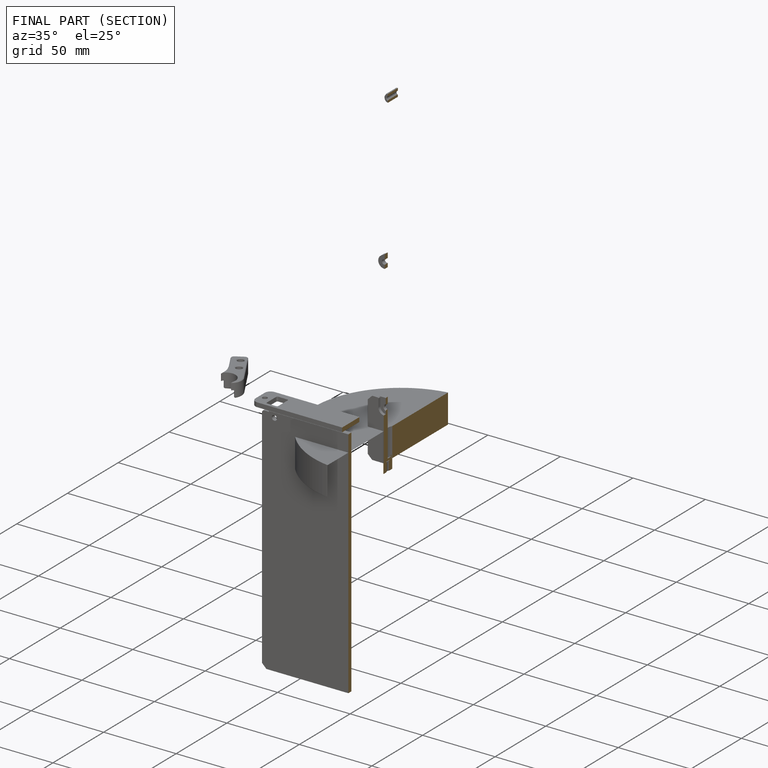
[diagram: finished part — half-section view (interior)]
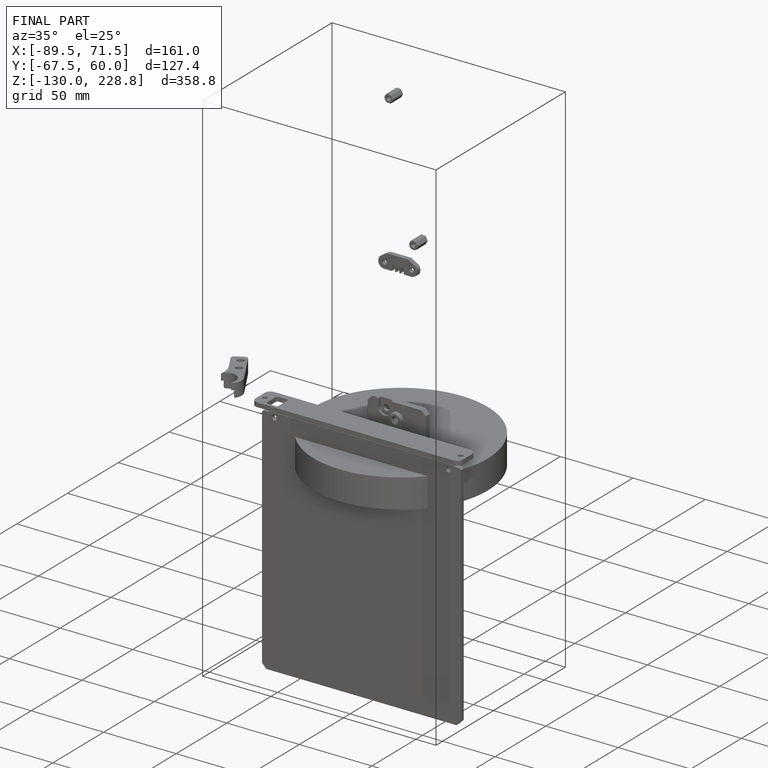
[diagram: finished part — iso view with bounding-box wireframe]
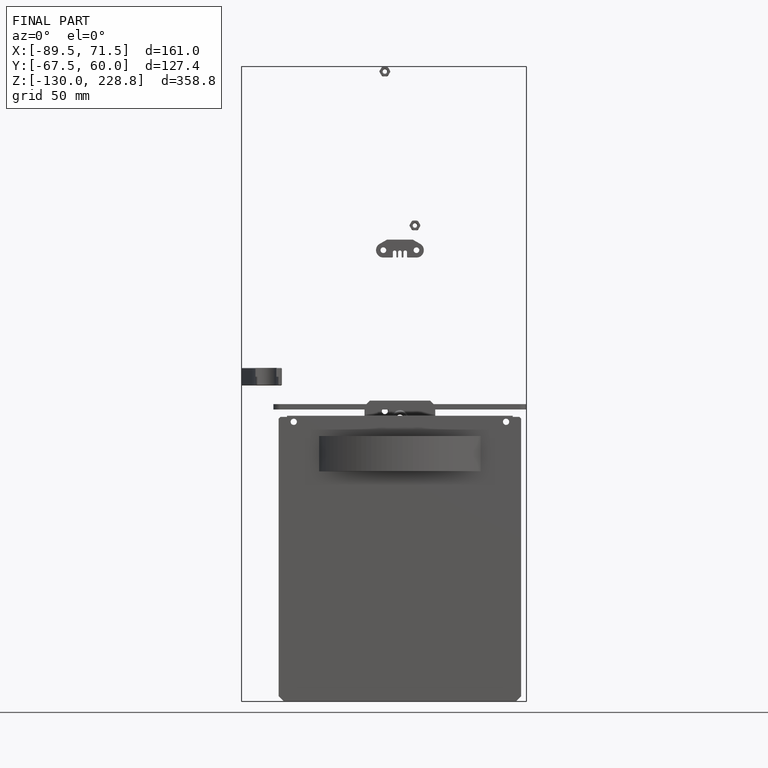
[diagram: finished part — front view with bounding-box wireframe]
